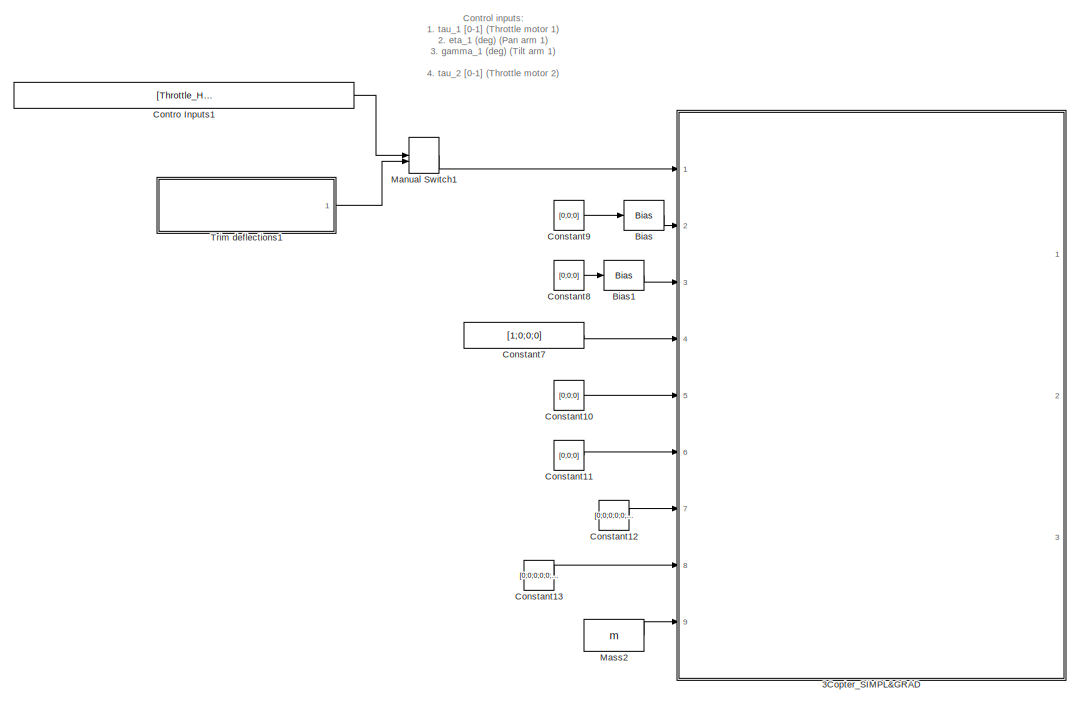
[diagram: root canvas - part 1/3, top left region]
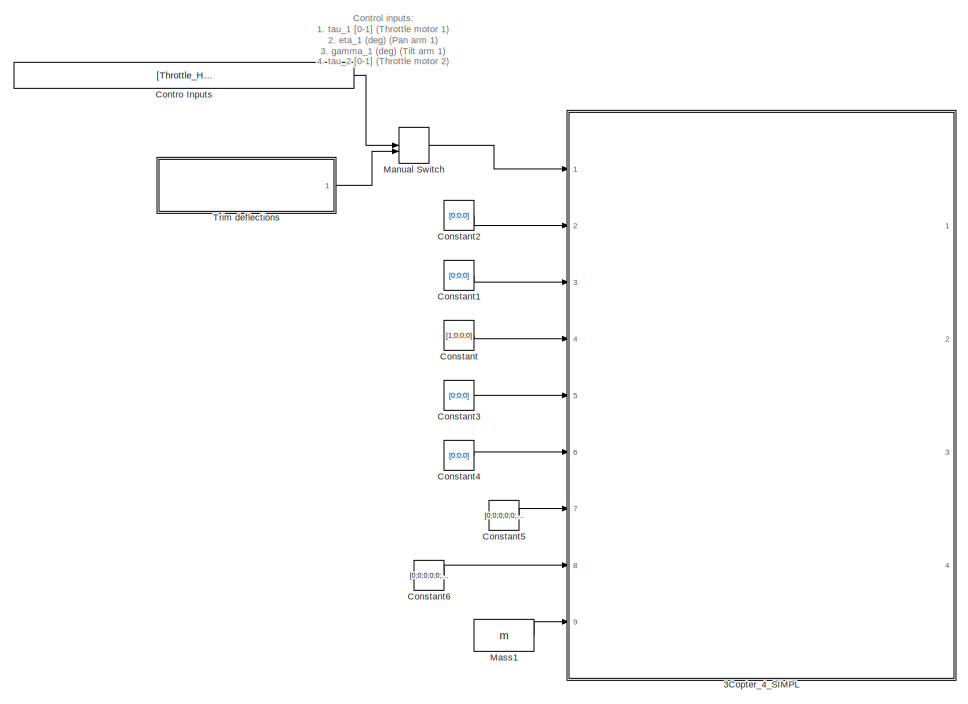
[diagram: root canvas - part 2/3, top right region]
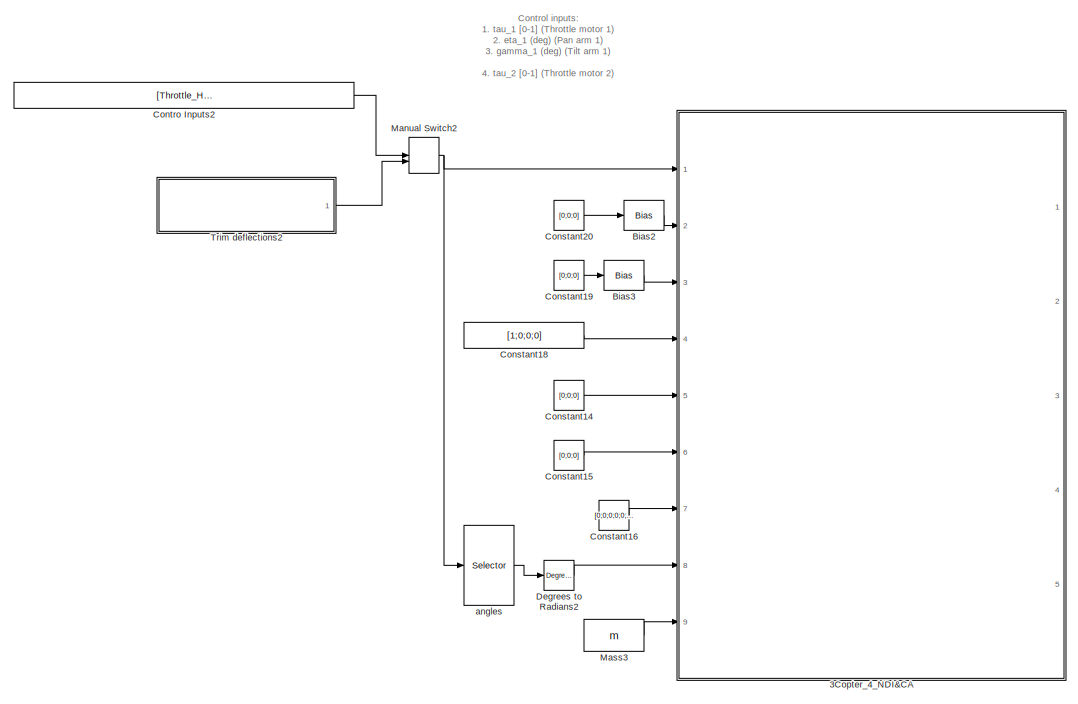
[diagram: root canvas - part 3/3, bottom right region]
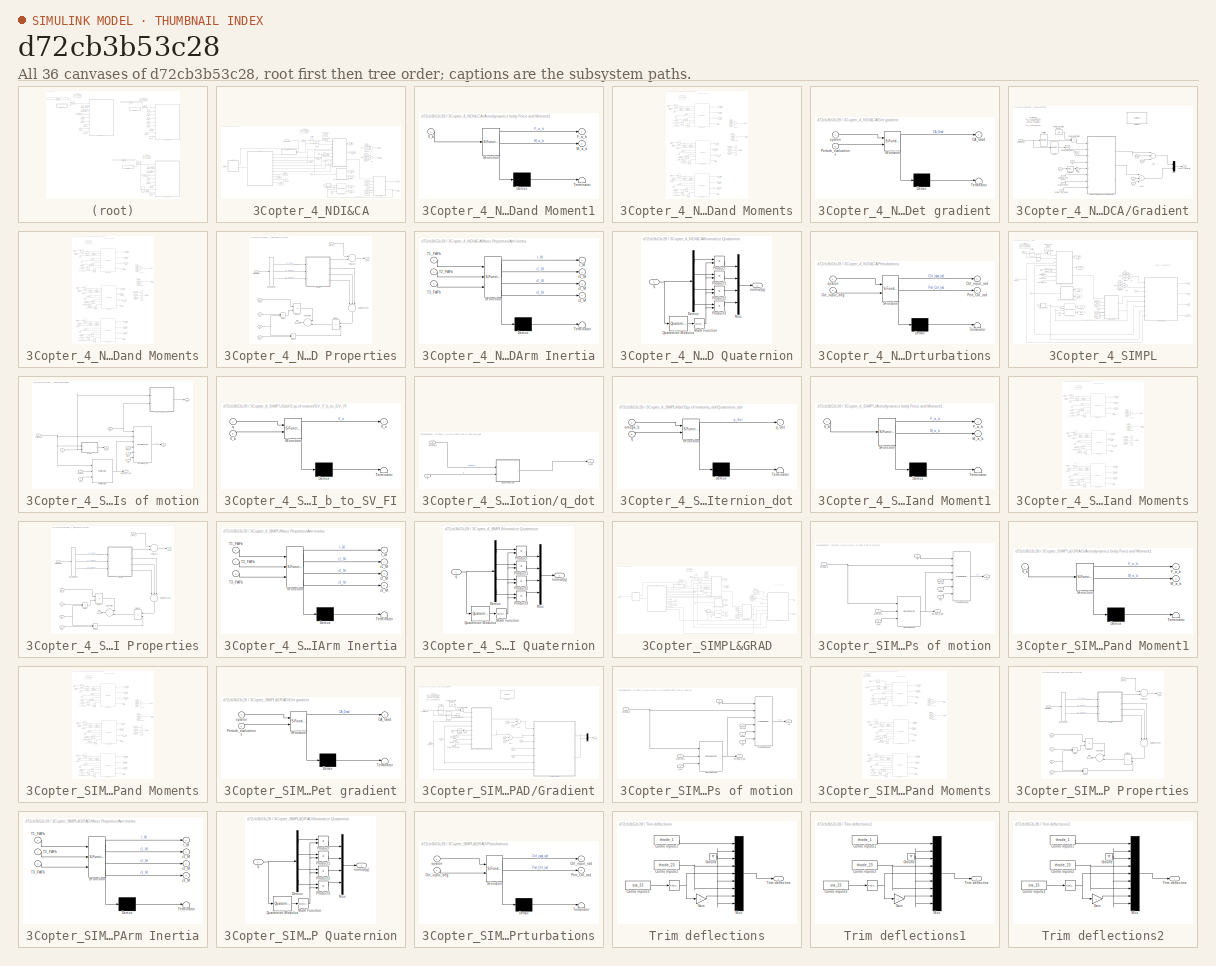
[diagram: thumbnail index - all 36 canvases of the model, root first then tree order]
MODEL slx_d72cb3b53c28
KIND model
BLOCK [SubSystem] 3Copter_4_NDI&CA
  FunctionWithSeparateData = off
  MaskHideContents = off
  MinAlgLoopOccurrences = off
  Opaque = off
  Ports = [9, 5]
  PropExecContextOutsideSubsystem = off
  RTWSystemCode = Auto
  RequestExecContextInheritance = off
  TreatAsAtomicUnit = on
BLOCK [Inport] 3Copter_4_NDI&CA/ m
  IconDisplay = Port number
  Port = 9
BLOCK [Sum] 3Copter_4_NDI&CA/Add
  InputSameDT = off
  Inputs = +++
  OutDataTypeStr = Inherit: Inherit via internal rule
  Ports = [3, 1]
  SaturateOnIntegerOverflow = off
BLOCK [Sum] 3Copter_4_NDI&CA/Add1
  InputSameDT = off
  Inputs = +++
  OutDataTypeStr = Inherit: Inherit via internal rule
  Ports = [3, 1]
  SaturateOnIntegerOverflow = off
BLOCK [SubSystem] 3Copter_4_NDI&CA/Aerodynamics body Force and Moment1
  ErrorFcn = Stateflow.Translate.translate
  FunctionWithSeparateData = off
  MaskHideContents = off
  MinAlgLoopOccurrences = off
  Opaque = off
  PermitHierarchicalResolution = ParametersOnly
  Ports = [1, 2]
  PropExecContextOutsideSubsystem = off
  RTWSystemCode = Auto
  RequestExecContextInheritance = off
  SFBlockType = MATLAB Function
  TreatAsAtomicUnit = on
BLOCK [Demux] 3Copter_4_NDI&CA/Aerodynamics body Force and Moment1/ Demux 
  Outputs = 1
  Ports = [1, 1]
BLOCK [S-Function] 3Copter_4_NDI&CA/Aerodynamics body Force and Moment1/ SFunction 
  EnableBusSupport = off
  FunctionName = sf_sfun
  Parameters = A_x,A_y,A_z,C_x,C_y,C_z,rho
  PortCounts = [1 3]
  Ports = [1, 3]
  Tag = Stateflow S-Function NDI_and_CA_Model 4
BLOCK [Terminator] 3Copter_4_NDI&CA/Aerodynamics body Force and Moment1/ Terminator 
BLOCK [Outport] 3Copter_4_NDI&CA/Aerodynamics body Force and Moment1/F_a_b
  IconDisplay = Port number
BLOCK [Outport] 3Copter_4_NDI&CA/Aerodynamics body Force and Moment1/M_a_b
  IconDisplay = Port number
  Port = 2
BLOCK [Inport] 3Copter_4_NDI&CA/Aerodynamics body Force and Moment1/V_b
  IconDisplay = Port number
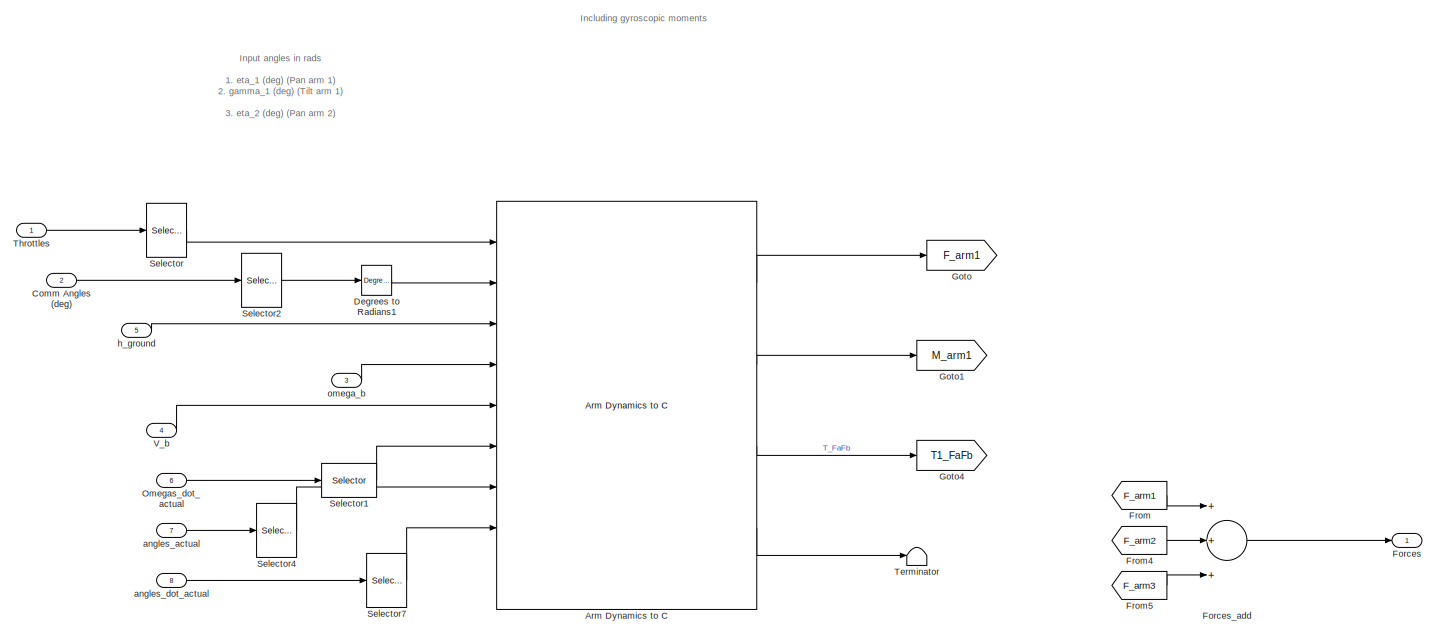
[diagram: 3Copter_4_NDI&CA/Arms Dynamics: Forces and Moments - part 1/3, full width, top band]
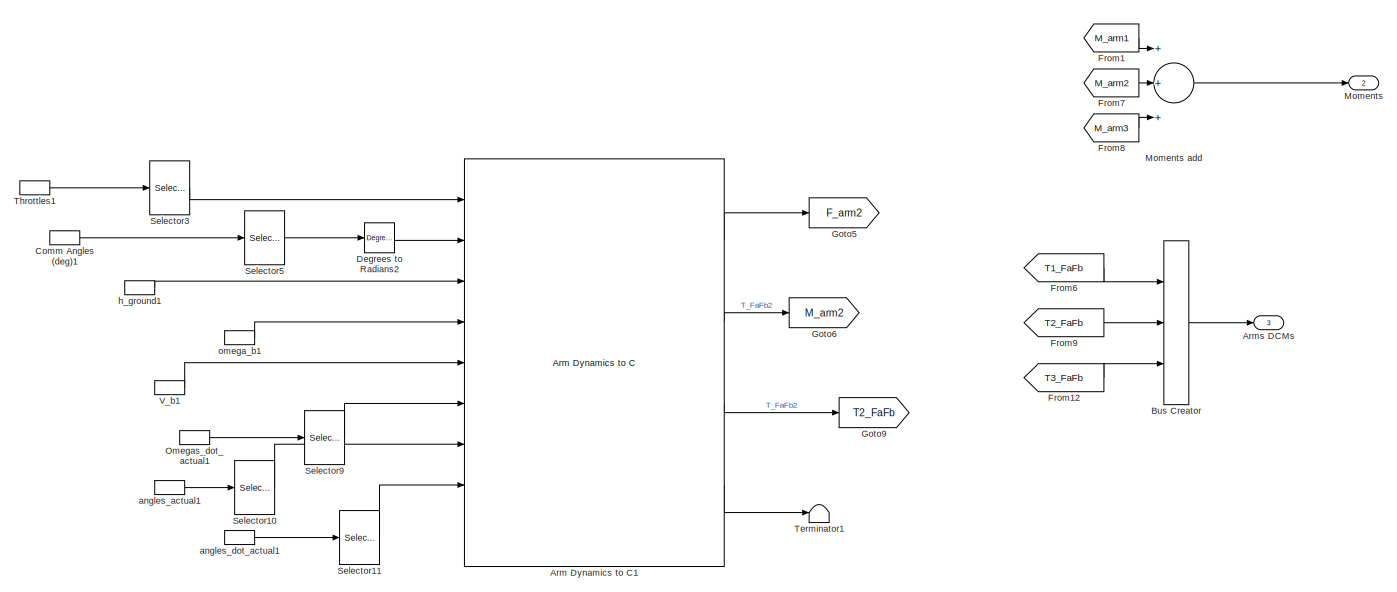
[diagram: 3Copter_4_NDI&CA/Arms Dynamics: Forces and Moments - part 2/3, full width, middle band]
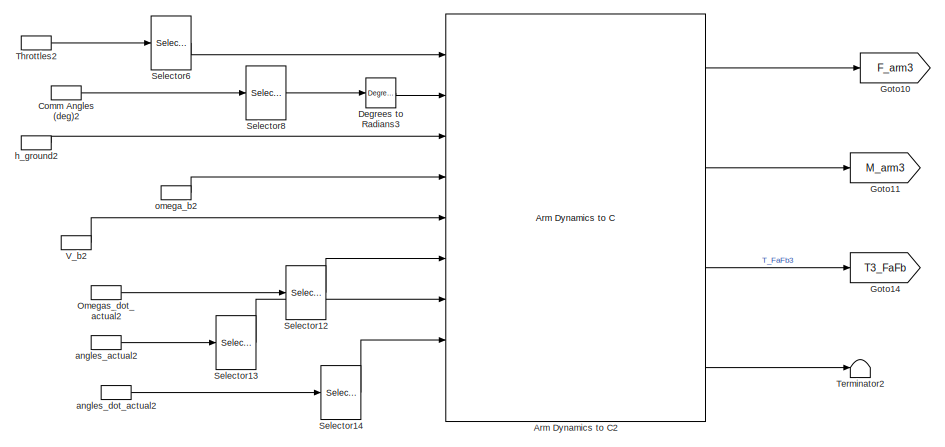
[diagram: 3Copter_4_NDI&CA/Arms Dynamics: Forces and Moments - part 3/3, bottom center region]
BLOCK [SubSystem] 3Copter_4_NDI&CA/Arms Dynamics: Forces and Moments
  FunctionWithSeparateData = off
  MaskHideContents = off
  MinAlgLoopOccurrences = off
  Opaque = off
  Ports = [8, 3]
  PropExecContextOutsideSubsystem = off
  RTWSystemCode = Auto
  RequestExecContextInheritance = off
  TreatAsAtomicUnit = on
BLOCK [Reference] 3Copter_4_NDI&CA/Arms Dynamics: Forces and Moments/Arm Dynamics  to C  REF=XXCopter_C/Arm Dynamics  to C
  Arm_axis = [l_arm;0;0]
  J_FA = J_FA
  J_T = J_T
  Ports = [9, 4]
  Rot_sign = Rotation_sign(1)
  SourceBlock = XXCopter_C/Arm Dynamics  to C
  SourceType = Arm dynamics, kinematics, forces and moments
  arm_hub_pos = l*[1;0;0]
  arm_num = 1
  eta_dir = [1;0;0]
  eta_inf_lim = deg2rad(-180)
  eta_sup_lim = deg2rad(180)
  gamma_dir = [0;1;0]
  gamma_inf_lim = deg2rad(-90)
  gamma_sup_lim = deg2rad(30)
  h = h
  omega_n = 35
  switch_val = direct_feedforward
  xi = 1.45
BLOCK [Reference] 3Copter_4_NDI&CA/Arms Dynamics: Forces and Moments/Arm Dynamics  to C1  REF=XXCopter_C/Arm Dynamics  to C
  Arm_axis = [0;l_arm;0]
  J_FA = J_FA
  J_T = J_T
  Ports = [9, 4]
  Rot_sign = Rotation_sign(2)
  SourceBlock = XXCopter_C/Arm Dynamics  to C
  SourceType = Arm dynamics, kinematics, forces and moments
  arm_hub_pos = l*[-1/2;sqrt(3)/2;0]
  arm_num = 2
  eta_dir = [0;1;0]
  eta_inf_lim = deg2rad(-180)
  eta_sup_lim = deg2rad(180)
  gamma_dir = [1;0;0]
  gamma_inf_lim = deg2rad(-30)
  gamma_sup_lim = deg2rad(90)
  h = h
  omega_n = 35
  switch_val = direct_feedforward
  xi = 1.45
BLOCK [Reference] 3Copter_4_NDI&CA/Arms Dynamics: Forces and Moments/Arm Dynamics  to C2  REF=XXCopter_C/Arm Dynamics  to C
  Arm_axis = [0;-l_arm;0]
  J_FA = J_FA
  J_T = J_T
  Ports = [9, 4]
  Rot_sign = Rotation_sign(3)
  SourceBlock = XXCopter_C/Arm Dynamics  to C
  SourceType = Arm dynamics, kinematics, forces and moments
  arm_hub_pos = l*[-1/2;-sqrt(3)/2;0]
  arm_num = 3
  eta_dir = [0;1;0]
  eta_inf_lim = deg2rad(-180)
  eta_sup_lim = deg2rad(180)
  gamma_dir = [1;0;0]
  gamma_inf_lim = deg2rad(-90)
  gamma_sup_lim = deg2rad(30)
  h = h
  omega_n = 35
  switch_val = direct_feedforward
  xi = 1.45
BLOCK [Outport] 3Copter_4_NDI&CA/Arms Dynamics: Forces and Moments/Arms DCMs
  IconDisplay = Port number
  Port = 3
BLOCK [BusCreator] 3Copter_4_NDI&CA/Arms Dynamics: Forces and Moments/Bus Creator
  DisplayOption = bar
  Inputs = 3
  Ports = [3, 1]
BLOCK [Inport] 3Copter_4_NDI&CA/Arms Dynamics: Forces and Moments/Comm Angles (deg)
  IconDisplay = Port number
  Port = 2
BLOCK [InportShadow] 3Copter_4_NDI&CA/Arms Dynamics: Forces and Moments/Comm Angles (deg)1
  IconDisplay = Port number
  Port = 2
BLOCK [InportShadow] 3Copter_4_NDI&CA/Arms Dynamics: Forces and Moments/Comm Angles (deg)2
  IconDisplay = Port number
  Port = 2
BLOCK [Reference] 3Copter_4_NDI&CA/Arms Dynamics: Forces and Moments/Degrees to Radians1  REF=simulink_extras/Transformations/Degrees to
Radians
  Ports = [1, 1]
  SourceBlock = simulink_extras/Transformations/Degrees to\nRadians
  SourceType = DegreesToRadians
BLOCK [Reference] 3Copter_4_NDI&CA/Arms Dynamics: Forces and Moments/Degrees to Radians2  REF=simulink_extras/Transformations/Degrees to
Radians
  Ports = [1, 1]
  SourceBlock = simulink_extras/Transformations/Degrees to\nRadians
  SourceType = DegreesToRadians
BLOCK [Reference] 3Copter_4_NDI&CA/Arms Dynamics: Forces and Moments/Degrees to Radians3  REF=simulink_extras/Transformations/Degrees to
Radians
  Ports = [1, 1]
  SourceBlock = simulink_extras/Transformations/Degrees to\nRadians
  SourceType = DegreesToRadians
BLOCK [Outport] 3Copter_4_NDI&CA/Arms Dynamics: Forces and Moments/Forces
  IconDisplay = Port number
BLOCK [Sum] 3Copter_4_NDI&CA/Arms Dynamics: Forces and Moments/Forces_add
  InputSameDT = off
  Inputs = +++
  OutDataTypeStr = Inherit: Inherit via internal rule
  Ports = [3, 1]
  SaturateOnIntegerOverflow = off
BLOCK [From] 3Copter_4_NDI&CA/Arms Dynamics: Forces and Moments/From
  GotoTag = F_arm1
BLOCK [From] 3Copter_4_NDI&CA/Arms Dynamics: Forces and Moments/From1
  GotoTag = M_arm1
BLOCK [From] 3Copter_4_NDI&CA/Arms Dynamics: Forces and Moments/From12
  GotoTag = T3_FaFb
BLOCK [From] 3Copter_4_NDI&CA/Arms Dynamics: Forces and Moments/From4
  GotoTag = F_arm2
BLOCK [From] 3Copter_4_NDI&CA/Arms Dynamics: Forces and Moments/From5
  GotoTag = F_arm3
BLOCK [From] 3Copter_4_NDI&CA/Arms Dynamics: Forces and Moments/From6
  GotoTag = T1_FaFb
BLOCK [From] 3Copter_4_NDI&CA/Arms Dynamics: Forces and Moments/From7
  GotoTag = M_arm2
BLOCK [From] 3Copter_4_NDI&CA/Arms Dynamics: Forces and Moments/From8
  GotoTag = M_arm3
BLOCK [From] 3Copter_4_NDI&CA/Arms Dynamics: Forces and Moments/From9
  GotoTag = T2_FaFb
BLOCK [Goto] 3Copter_4_NDI&CA/Arms Dynamics: Forces and Moments/Goto
  GotoTag = F_arm1
BLOCK [Goto] 3Copter_4_NDI&CA/Arms Dynamics: Forces and Moments/Goto1
  GotoTag = M_arm1
BLOCK [Goto] 3Copter_4_NDI&CA/Arms Dynamics: Forces and Moments/Goto10
  GotoTag = F_arm3
BLOCK [Goto] 3Copter_4_NDI&CA/Arms Dynamics: Forces and Moments/Goto11
  GotoTag = M_arm3
BLOCK [Goto] 3Copter_4_NDI&CA/Arms Dynamics: Forces and Moments/Goto14
  GotoTag = T3_FaFb
BLOCK [Goto] 3Copter_4_NDI&CA/Arms Dynamics: Forces and Moments/Goto4
  GotoTag = T1_FaFb
BLOCK [Goto] 3Copter_4_NDI&CA/Arms Dynamics: Forces and Moments/Goto5
  GotoTag = F_arm2
BLOCK [Goto] 3Copter_4_NDI&CA/Arms Dynamics: Forces and Moments/Goto6
  GotoTag = M_arm2
BLOCK [Goto] 3Copter_4_NDI&CA/Arms Dynamics: Forces and Moments/Goto9
  GotoTag = T2_FaFb
BLOCK [Outport] 3Copter_4_NDI&CA/Arms Dynamics: Forces and Moments/Moments
  IconDisplay = Port number
  Port = 2
BLOCK [Sum] 3Copter_4_NDI&CA/Arms Dynamics: Forces and Moments/Moments add
  InputSameDT = off
  Inputs = +++
  OutDataTypeStr = Inherit: Inherit via internal rule
  Ports = [3, 1]
  SaturateOnIntegerOverflow = off
BLOCK [Inport] 3Copter_4_NDI&CA/Arms Dynamics: Forces and Moments/Omegas_dot_actual
  IconDisplay = Port number
  Port = 6
BLOCK [InportShadow] 3Copter_4_NDI&CA/Arms Dynamics: Forces and Moments/Omegas_dot_actual1
  IconDisplay = Port number
  Port = 6
BLOCK [InportShadow] 3Copter_4_NDI&CA/Arms Dynamics: Forces and Moments/Omegas_dot_actual2
  IconDisplay = Port number
  Port = 6
BLOCK [Selector] 3Copter_4_NDI&CA/Arms Dynamics: Forces and Moments/Selector
  IndexMode = Zero-based
  Indices = 0
  InputPortWidth = 3
  Ports = [1, 1]
BLOCK [Selector] 3Copter_4_NDI&CA/Arms Dynamics: Forces and Moments/Selector1
  IndexMode = Zero-based
  Indices = 0
  InputPortWidth = 3
  Ports = [1, 1]
BLOCK [Selector] 3Copter_4_NDI&CA/Arms Dynamics: Forces and Moments/Selector10
  IndexMode = Zero-based
  Indices = [2,3]
  InputPortWidth = 6
  Ports = [1, 1]
BLOCK [Selector] 3Copter_4_NDI&CA/Arms Dynamics: Forces and Moments/Selector11
  IndexMode = Zero-based
  Indices = [2,3]
  InputPortWidth = 6
  Ports = [1, 1]
BLOCK [Selector] 3Copter_4_NDI&CA/Arms Dynamics: Forces and Moments/Selector12
  IndexMode = Zero-based
  Indices = 2
  InputPortWidth = 3
  Ports = [1, 1]
BLOCK [Selector] 3Copter_4_NDI&CA/Arms Dynamics: Forces and Moments/Selector13
  IndexMode = Zero-based
  Indices = [4,5]
  InputPortWidth = 6
  Ports = [1, 1]
BLOCK [Selector] 3Copter_4_NDI&CA/Arms Dynamics: Forces and Moments/Selector14
  IndexMode = Zero-based
  Indices = [4,5]
  InputPortWidth = 6
  Ports = [1, 1]
BLOCK [Selector] 3Copter_4_NDI&CA/Arms Dynamics: Forces and Moments/Selector2
  IndexMode = Zero-based
  Indices = [0,1]
  InputPortWidth = 6
  Ports = [1, 1]
BLOCK [Selector] 3Copter_4_NDI&CA/Arms Dynamics: Forces and Moments/Selector3
  IndexMode = Zero-based
  InputPortWidth = 3
  Ports = [1, 1]
BLOCK [Selector] 3Copter_4_NDI&CA/Arms Dynamics: Forces and Moments/Selector4
  IndexMode = Zero-based
  Indices = [0,1]
  InputPortWidth = 6
  Ports = [1, 1]
BLOCK [Selector] 3Copter_4_NDI&CA/Arms Dynamics: Forces and Moments/Selector5
  IndexMode = Zero-based
  Indices = [2,3]
  InputPortWidth = 6
  Ports = [1, 1]
BLOCK [Selector] 3Copter_4_NDI&CA/Arms Dynamics: Forces and Moments/Selector6
  IndexMode = Zero-based
  Indices = 2
  InputPortWidth = 3
  Ports = [1, 1]
BLOCK [Selector] 3Copter_4_NDI&CA/Arms Dynamics: Forces and Moments/Selector7
  IndexMode = Zero-based
  Indices = [0,1]
  InputPortWidth = 6
  Ports = [1, 1]
BLOCK [Selector] 3Copter_4_NDI&CA/Arms Dynamics: Forces and Moments/Selector8
  IndexMode = Zero-based
  Indices = [4,5]
  InputPortWidth = 6
  Ports = [1, 1]
BLOCK [Selector] 3Copter_4_NDI&CA/Arms Dynamics: Forces and Moments/Selector9
  IndexMode = Zero-based
  InputPortWidth = 3
  Ports = [1, 1]
BLOCK [Terminator] 3Copter_4_NDI&CA/Arms Dynamics: Forces and Moments/Terminator
BLOCK [Terminator] 3Copter_4_NDI&CA/Arms Dynamics: Forces and Moments/Terminator1
BLOCK [Terminator] 3Copter_4_NDI&CA/Arms Dynamics: Forces and Moments/Terminator2
BLOCK [Inport] 3Copter_4_NDI&CA/Arms Dynamics: Forces and Moments/Throttles
  IconDisplay = Port number
BLOCK [InportShadow] 3Copter_4_NDI&CA/Arms Dynamics: Forces and Moments/Throttles1
  IconDisplay = Port number
BLOCK [InportShadow] 3Copter_4_NDI&CA/Arms Dynamics: Forces and Moments/Throttles2
  IconDisplay = Port number
BLOCK [Inport] 3Copter_4_NDI&CA/Arms Dynamics: Forces and Moments/V_b
  IconDisplay = Port number
  Port = 4
BLOCK [InportShadow] 3Copter_4_NDI&CA/Arms Dynamics: Forces and Moments/V_b1
  IconDisplay = Port number
  Port = 4
BLOCK [InportShadow] 3Copter_4_NDI&CA/Arms Dynamics: Forces and Moments/V_b2
  IconDisplay = Port number
  Port = 4
BLOCK [Inport] 3Copter_4_NDI&CA/Arms Dynamics: Forces and Moments/angles_actual
  IconDisplay = Port number
  Port = 7
BLOCK [InportShadow] 3Copter_4_NDI&CA/Arms Dynamics: Forces and Moments/angles_actual1
  IconDisplay = Port number
  Port = 7
BLOCK [InportShadow] 3Copter_4_NDI&CA/Arms Dynamics: Forces and Moments/angles_actual2
  IconDisplay = Port number
  Port = 7
BLOCK [Inport] 3Copter_4_NDI&CA/Arms Dynamics: Forces and Moments/angles_dot_actual
  IconDisplay = Port number
  Port = 8
BLOCK [InportShadow] 3Copter_4_NDI&CA/Arms Dynamics: Forces and Moments/angles_dot_actual1
  IconDisplay = Port number
  Port = 8
BLOCK [InportShadow] 3Copter_4_NDI&CA/Arms Dynamics: Forces and Moments/angles_dot_actual2
  IconDisplay = Port number
  Port = 8
BLOCK [Inport] 3Copter_4_NDI&CA/Arms Dynamics: Forces and Moments/h_ground
  IconDisplay = Port number
  Port = 5
BLOCK [InportShadow] 3Copter_4_NDI&CA/Arms Dynamics: Forces and Moments/h_ground1
  IconDisplay = Port number
  Port = 5
BLOCK [InportShadow] 3Copter_4_NDI&CA/Arms Dynamics: Forces and Moments/h_ground2
  IconDisplay = Port number
  Port = 5
BLOCK [Inport] 3Copter_4_NDI&CA/Arms Dynamics: Forces and Moments/omega_b
  IconDisplay = Port number
  Port = 3
BLOCK [InportShadow] 3Copter_4_NDI&CA/Arms Dynamics: Forces and Moments/omega_b1
  IconDisplay = Port number
  Port = 3
BLOCK [InportShadow] 3Copter_4_NDI&CA/Arms Dynamics: Forces and Moments/omega_b2
  IconDisplay = Port number
  Port = 3
BLOCK [Outport] 3Copter_4_NDI&CA/CA_grad
  IconDisplay = Port number
  Port = 3
BLOCK [Constant] 3Copter_4_NDI&CA/CG
  Value = CG_0
BLOCK [Outport] 3Copter_4_NDI&CA/CG 
  IconDisplay = Port number
  Port = 5
BLOCK [Inport] 3Copter_4_NDI&CA/Control Inputs
  IconDisplay = Port number
BLOCK [Product] 3Copter_4_NDI&CA/Equivalent Throttle
  InputSameDT = off
  Inputs = **
  OutDataTypeStr = Inherit: Inherit via internal rule
  Ports = [2, 1]
  RndMeth = Floor
  SaturateOnIntegerOverflow = off
BLOCK [Outport] 3Copter_4_NDI&CA/Forces
  IconDisplay = Port number
BLOCK [From] 3Copter_4_NDI&CA/From11
  Commented = on
  GotoTag = M_air
BLOCK [From] 3Copter_4_NDI&CA/From12
  Commented = on
  GotoTag = M_g
BLOCK [From] 3Copter_4_NDI&CA/From2
  GotoTag = F_arm
BLOCK [From] 3Copter_4_NDI&CA/From3
  GotoTag = F_air
BLOCK [From] 3Copter_4_NDI&CA/From4
  GotoTag = F_g
BLOCK [From] 3Copter_4_NDI&CA/From5
  GotoTag = M_arm
BLOCK [From] 3Copter_4_NDI&CA/From6
  GotoTag = M_air
BLOCK [From] 3Copter_4_NDI&CA/From7
  GotoTag = M_g
BLOCK [From] 3Copter_4_NDI&CA/From8
  Commented = on
  GotoTag = F_air
BLOCK [From] 3Copter_4_NDI&CA/From9
  Commented = on
  GotoTag = F_g
BLOCK [Gain] 3Copter_4_NDI&CA/Gain
  Gain = -1
  OutDataTypeStr = Inherit: Inherit via internal rule
  ParamDataTypeStr = Inherit: Inherit via internal rule
  SaturateOnIntegerOverflow = off
BLOCK [SubSystem] 3Copter_4_NDI&CA/Get gradient
  Commented = on
  ErrorFcn = Stateflow.Translate.translate
  FunctionWithSeparateData = off
  MaskHideContents = off
  MinAlgLoopOccurrences = off
  Opaque = off
  PermitHierarchicalResolution = ParametersOnly
  Ports = [2, 1]
  PropExecContextOutsideSubsystem = off
  RTWSystemCode = Auto
  RequestExecContextInheritance = off
  SFBlockType = MATLAB Function
  TreatAsAtomicUnit = on
BLOCK [Demux] 3Copter_4_NDI&CA/Get gradient/ Demux 
  Outputs = 1
  Ports = [1, 1]
BLOCK [S-Function] 3Copter_4_NDI&CA/Get gradient/ SFunction 
  EnableBusSupport = off
  FunctionName = sf_sfun
  PortCounts = [2 2]
  Ports = [2, 2]
  Tag = Stateflow S-Function NDI_and_CA_Model 6
BLOCK [Terminator] 3Copter_4_NDI&CA/Get gradient/ Terminator 
BLOCK [Outport] 3Copter_4_NDI&CA/Get gradient/CA_Grad
  IconDisplay = Port number
BLOCK [Inport] 3Copter_4_NDI&CA/Get gradient/Perturb_evaluations
  IconDisplay = Port number
  Port = 2
BLOCK [Inport] 3Copter_4_NDI&CA/Get gradient/epsilon
  IconDisplay = Port number
BLOCK [Goto] 3Copter_4_NDI&CA/Goto2
  GotoTag = F_arm
BLOCK [Goto] 3Copter_4_NDI&CA/Goto3
  GotoTag = M_arm
BLOCK [Goto] 3Copter_4_NDI&CA/Goto4
  GotoTag = F_air
BLOCK [Goto] 3Copter_4_NDI&CA/Goto5
  GotoTag = M_air
BLOCK [Goto] 3Copter_4_NDI&CA/Goto6
  GotoTag = F_g
BLOCK [Goto] 3Copter_4_NDI&CA/Goto7
  GotoTag = M_g
BLOCK [SubSystem] 3Copter_4_NDI&CA/Gradient
  Commented = on
  FunctionWithSeparateData = off
  MaskHideContents = off
  MinAlgLoopOccurrences = off
  Opaque = off
  Ports = [11, 1]
  PropExecContextOutsideSubsystem = off
  RTWSystemCode = Auto
  RequestExecContextInheritance = off
  TreatAsAtomicUnit = on
BLOCK [Sum] 3Copter_4_NDI&CA/Gradient/Add
  InputSameDT = off
  Inputs = +++
  OutDataTypeStr = Inherit: Inherit via internal rule
  Ports = [3, 1]
  SaturateOnIntegerOverflow = off
BLOCK [Sum] 3Copter_4_NDI&CA/Gradient/Add1
  InputSameDT = off
  Inputs = +++
  OutDataTypeStr = Inherit: Inherit via internal rule
  Ports = [3, 1]
  SaturateOnIntegerOverflow = off
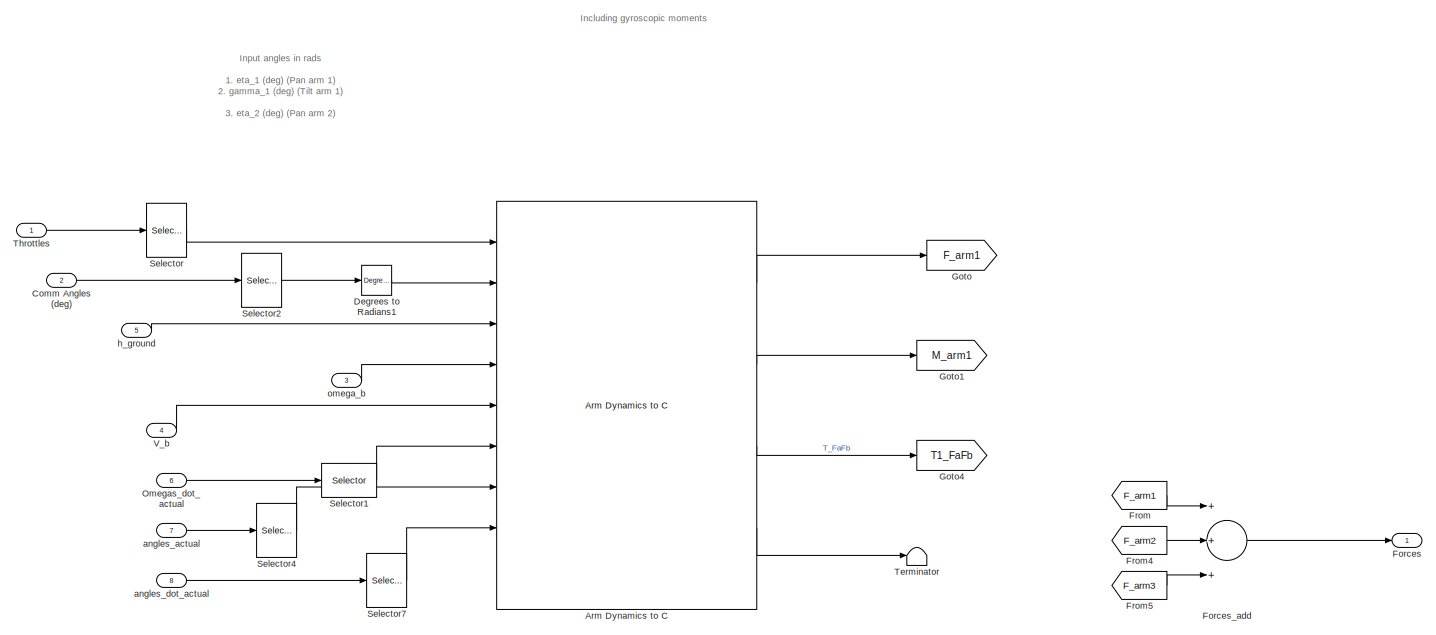
[diagram: 3Copter_4_NDI&CA/Gradient/Arms Dynamics: Forces and Moments - part 1/3, full width, top band]
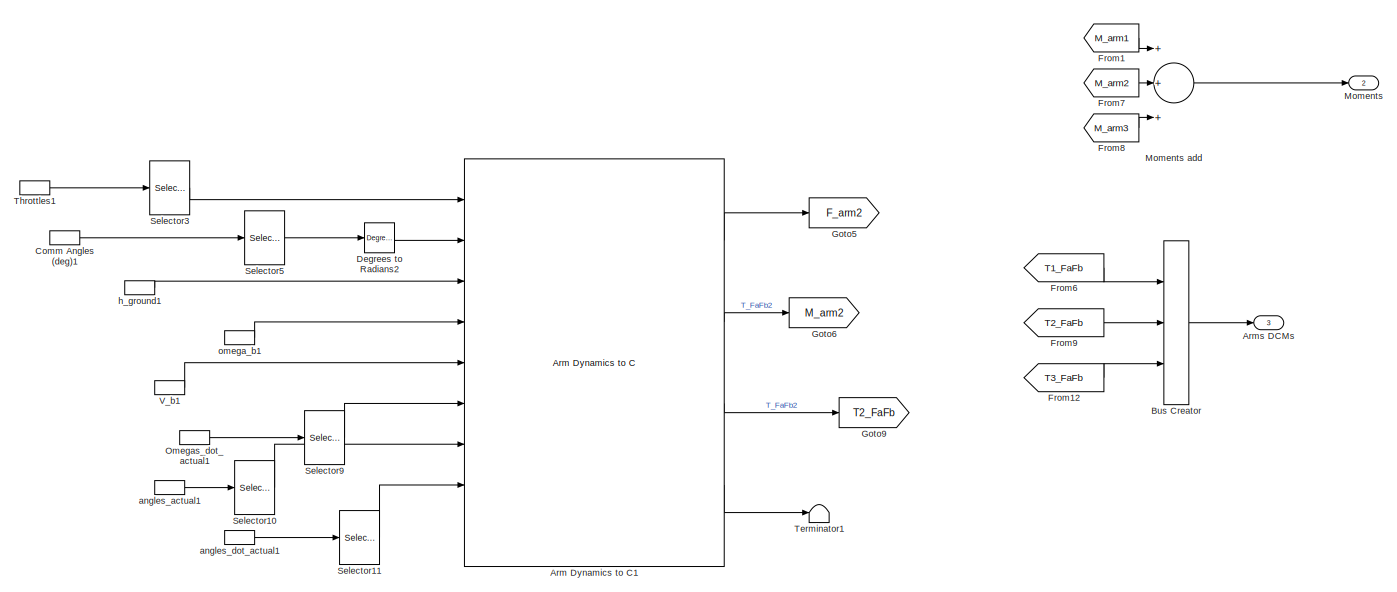
[diagram: 3Copter_4_NDI&CA/Gradient/Arms Dynamics: Forces and Moments - part 2/3, full width, middle band]
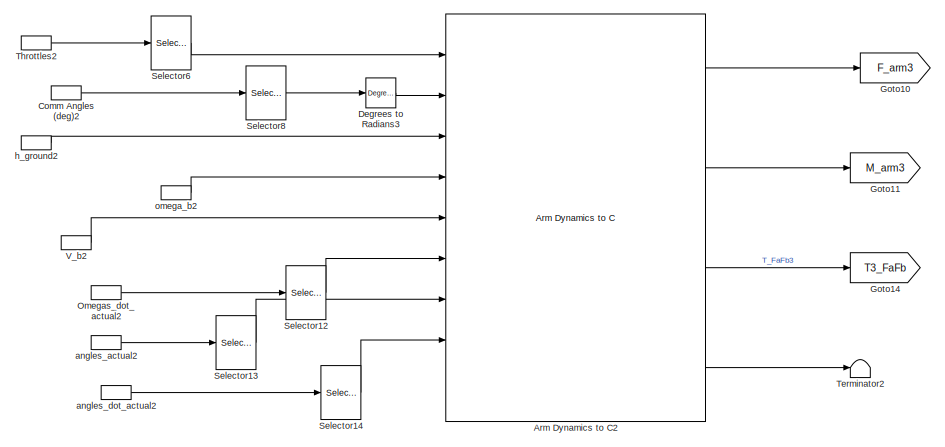
[diagram: 3Copter_4_NDI&CA/Gradient/Arms Dynamics: Forces and Moments - part 3/3, bottom center region]
BLOCK [SubSystem] 3Copter_4_NDI&CA/Gradient/Arms Dynamics: Forces and Moments
  FunctionWithSeparateData = off
  MaskHideContents = off
  MinAlgLoopOccurrences = off
  Opaque = off
  Ports = [8, 3]
  PropExecContextOutsideSubsystem = off
  RTWSystemCode = Auto
  RequestExecContextInheritance = off
  TreatAsAtomicUnit = on
BLOCK [Reference] 3Copter_4_NDI&CA/Gradient/Arms Dynamics: Forces and Moments/Arm Dynamics  to C  REF=XXCopter_C/Arm Dynamics  to C
  Arm_axis = [l_arm;0;0]
  J_FA = J_FA
  J_T = J_T
  Ports = [9, 4]
  Rot_sign = Rotation_sign(1)
  SourceBlock = XXCopter_C/Arm Dynamics  to C
  SourceType = Arm dynamics, kinematics, forces and moments
  arm_hub_pos = l*[1;0;0]
  arm_num = 1
  eta_dir = [1;0;0]
  eta_inf_lim = deg2rad(-180)
  eta_sup_lim = deg2rad(180)
  gamma_dir = [0;1;0]
  gamma_inf_lim = deg2rad(-90)
  gamma_sup_lim = deg2rad(30)
  h = h
  omega_n = 35
  switch_val = direct_feedforward
  xi = 1.45
BLOCK [Reference] 3Copter_4_NDI&CA/Gradient/Arms Dynamics: Forces and Moments/Arm Dynamics  to C1  REF=XXCopter_C/Arm Dynamics  to C
  Arm_axis = [0;l_arm;0]
  J_FA = J_FA
  J_T = J_T
  Ports = [9, 4]
  Rot_sign = Rotation_sign(2)
  SourceBlock = XXCopter_C/Arm Dynamics  to C
  SourceType = Arm dynamics, kinematics, forces and moments
  arm_hub_pos = l*[-1/2;sqrt(3)/2;0]
  arm_num = 2
  eta_dir = [0;1;0]
  eta_inf_lim = deg2rad(-180)
  eta_sup_lim = deg2rad(180)
  gamma_dir = [1;0;0]
  gamma_inf_lim = deg2rad(-30)
  gamma_sup_lim = deg2rad(90)
  h = h
  omega_n = 35
  switch_val = direct_feedforward
  xi = 1.45
BLOCK [Reference] 3Copter_4_NDI&CA/Gradient/Arms Dynamics: Forces and Moments/Arm Dynamics  to C2  REF=XXCopter_C/Arm Dynamics  to C
  Arm_axis = [0;-l_arm;0]
  J_FA = J_FA
  J_T = J_T
  Ports = [9, 4]
  Rot_sign = Rotation_sign(3)
  SourceBlock = XXCopter_C/Arm Dynamics  to C
  SourceType = Arm dynamics, kinematics, forces and moments
  arm_hub_pos = l*[-1/2;-sqrt(3)/2;0]
  arm_num = 3
  eta_dir = [0;1;0]
  eta_inf_lim = deg2rad(-180)
  eta_sup_lim = deg2rad(180)
  gamma_dir = [1;0;0]
  gamma_inf_lim = deg2rad(-90)
  gamma_sup_lim = deg2rad(30)
  h = h
  omega_n = 35
  switch_val = direct_feedforward
  xi = 1.45
BLOCK [Outport] 3Copter_4_NDI&CA/Gradient/Arms Dynamics: Forces and Moments/Arms DCMs
  IconDisplay = Port number
  Port = 3
BLOCK [BusCreator] 3Copter_4_NDI&CA/Gradient/Arms Dynamics: Forces and Moments/Bus Creator
  DisplayOption = bar
  Inputs = 3
  Ports = [3, 1]
BLOCK [Inport] 3Copter_4_NDI&CA/Gradient/Arms Dynamics: Forces and Moments/Comm Angles (deg)
  IconDisplay = Port number
  Port = 2
BLOCK [InportShadow] 3Copter_4_NDI&CA/Gradient/Arms Dynamics: Forces and Moments/Comm Angles (deg)1
  IconDisplay = Port number
  Port = 2
BLOCK [InportShadow] 3Copter_4_NDI&CA/Gradient/Arms Dynamics: Forces and Moments/Comm Angles (deg)2
  IconDisplay = Port number
  Port = 2
BLOCK [Reference] 3Copter_4_NDI&CA/Gradient/Arms Dynamics: Forces and Moments/Degrees to Radians1  REF=simulink_extras/Transformations/Degrees to
Radians
  Ports = [1, 1]
  SourceBlock = simulink_extras/Transformations/Degrees to\nRadians
  SourceType = DegreesToRadians
BLOCK [Reference] 3Copter_4_NDI&CA/Gradient/Arms Dynamics: Forces and Moments/Degrees to Radians2  REF=simulink_extras/Transformations/Degrees to
Radians
  Ports = [1, 1]
  SourceBlock = simulink_extras/Transformations/Degrees to\nRadians
  SourceType = DegreesToRadians
BLOCK [Reference] 3Copter_4_NDI&CA/Gradient/Arms Dynamics: Forces and Moments/Degrees to Radians3  REF=simulink_extras/Transformations/Degrees to
Radians
  Ports = [1, 1]
  SourceBlock = simulink_extras/Transformations/Degrees to\nRadians
  SourceType = DegreesToRadians
BLOCK [Outport] 3Copter_4_NDI&CA/Gradient/Arms Dynamics: Forces and Moments/Forces
  IconDisplay = Port number
BLOCK [Sum] 3Copter_4_NDI&CA/Gradient/Arms Dynamics: Forces and Moments/Forces_add
  InputSameDT = off
  Inputs = +++
  OutDataTypeStr = Inherit: Inherit via internal rule
  Ports = [3, 1]
  SaturateOnIntegerOverflow = off
BLOCK [From] 3Copter_4_NDI&CA/Gradient/Arms Dynamics: Forces and Moments/From
  GotoTag = F_arm1
BLOCK [From] 3Copter_4_NDI&CA/Gradient/Arms Dynamics: Forces and Moments/From1
  GotoTag = M_arm1
BLOCK [From] 3Copter_4_NDI&CA/Gradient/Arms Dynamics: Forces and Moments/From12
  GotoTag = T3_FaFb
BLOCK [From] 3Copter_4_NDI&CA/Gradient/Arms Dynamics: Forces and Moments/From4
  GotoTag = F_arm2
BLOCK [From] 3Copter_4_NDI&CA/Gradient/Arms Dynamics: Forces and Moments/From5
  GotoTag = F_arm3
BLOCK [From] 3Copter_4_NDI&CA/Gradient/Arms Dynamics: Forces and Moments/From6
  GotoTag = T1_FaFb
BLOCK [From] 3Copter_4_NDI&CA/Gradient/Arms Dynamics: Forces and Moments/From7
  GotoTag = M_arm2
BLOCK [From] 3Copter_4_NDI&CA/Gradient/Arms Dynamics: Forces and Moments/From8
  GotoTag = M_arm3
BLOCK [From] 3Copter_4_NDI&CA/Gradient/Arms Dynamics: Forces and Moments/From9
  GotoTag = T2_FaFb
BLOCK [Goto] 3Copter_4_NDI&CA/Gradient/Arms Dynamics: Forces and Moments/Goto
  GotoTag = F_arm1
BLOCK [Goto] 3Copter_4_NDI&CA/Gradient/Arms Dynamics: Forces and Moments/Goto1
  GotoTag = M_arm1
BLOCK [Goto] 3Copter_4_NDI&CA/Gradient/Arms Dynamics: Forces and Moments/Goto10
  GotoTag = F_arm3
BLOCK [Goto] 3Copter_4_NDI&CA/Gradient/Arms Dynamics: Forces and Moments/Goto11
  GotoTag = M_arm3
BLOCK [Goto] 3Copter_4_NDI&CA/Gradient/Arms Dynamics: Forces and Moments/Goto14
  GotoTag = T3_FaFb
BLOCK [Goto] 3Copter_4_NDI&CA/Gradient/Arms Dynamics: Forces and Moments/Goto4
  GotoTag = T1_FaFb
BLOCK [Goto] 3Copter_4_NDI&CA/Gradient/Arms Dynamics: Forces and Moments/Goto5
  GotoTag = F_arm2
BLOCK [Goto] 3Copter_4_NDI&CA/Gradient/Arms Dynamics: Forces and Moments/Goto6
  GotoTag = M_arm2
BLOCK [Goto] 3Copter_4_NDI&CA/Gradient/Arms Dynamics: Forces and Moments/Goto9
  GotoTag = T2_FaFb
BLOCK [Outport] 3Copter_4_NDI&CA/Gradient/Arms Dynamics: Forces and Moments/Moments
  IconDisplay = Port number
  Port = 2
BLOCK [Sum] 3Copter_4_NDI&CA/Gradient/Arms Dynamics: Forces and Moments/Moments add
  InputSameDT = off
  Inputs = +++
  OutDataTypeStr = Inherit: Inherit via internal rule
  Ports = [3, 1]
  SaturateOnIntegerOverflow = off
BLOCK [Inport] 3Copter_4_NDI&CA/Gradient/Arms Dynamics: Forces and Moments/Omegas_dot_actual
  IconDisplay = Port number
  Port = 6
BLOCK [InportShadow] 3Copter_4_NDI&CA/Gradient/Arms Dynamics: Forces and Moments/Omegas_dot_actual1
  IconDisplay = Port number
  Port = 6
BLOCK [InportShadow] 3Copter_4_NDI&CA/Gradient/Arms Dynamics: Forces and Moments/Omegas_dot_actual2
  IconDisplay = Port number
  Port = 6
BLOCK [Selector] 3Copter_4_NDI&CA/Gradient/Arms Dynamics: Forces and Moments/Selector
  IndexMode = Zero-based
  Indices = 0
  InputPortWidth = 3
  Ports = [1, 1]
BLOCK [Selector] 3Copter_4_NDI&CA/Gradient/Arms Dynamics: Forces and Moments/Selector1
  IndexMode = Zero-based
  Indices = 0
  InputPortWidth = 3
  Ports = [1, 1]
BLOCK [Selector] 3Copter_4_NDI&CA/Gradient/Arms Dynamics: Forces and Moments/Selector10
  IndexMode = Zero-based
  Indices = [2,3]
  InputPortWidth = 6
  Ports = [1, 1]
BLOCK [Selector] 3Copter_4_NDI&CA/Gradient/Arms Dynamics: Forces and Moments/Selector11
  IndexMode = Zero-based
  Indices = [2,3]
  InputPortWidth = 6
  Ports = [1, 1]
BLOCK [Selector] 3Copter_4_NDI&CA/Gradient/Arms Dynamics: Forces and Moments/Selector12
  IndexMode = Zero-based
  Indices = 2
  InputPortWidth = 3
  Ports = [1, 1]
BLOCK [Selector] 3Copter_4_NDI&CA/Gradient/Arms Dynamics: Forces and Moments/Selector13
  IndexMode = Zero-based
  Indices = [4,5]
  InputPortWidth = 6
  Ports = [1, 1]
BLOCK [Selector] 3Copter_4_NDI&CA/Gradient/Arms Dynamics: Forces and Moments/Selector14
  IndexMode = Zero-based
  Indices = [4,5]
  InputPortWidth = 6
  Ports = [1, 1]
BLOCK [Selector] 3Copter_4_NDI&CA/Gradient/Arms Dynamics: Forces and Moments/Selector2
  IndexMode = Zero-based
  Indices = [0,1]
  InputPortWidth = 6
  Ports = [1, 1]
BLOCK [Selector] 3Copter_4_NDI&CA/Gradient/Arms Dynamics: Forces and Moments/Selector3
  IndexMode = Zero-based
  InputPortWidth = 3
  Ports = [1, 1]
BLOCK [Selector] 3Copter_4_NDI&CA/Gradient/Arms Dynamics: Forces and Moments/Selector4
  IndexMode = Zero-based
  Indices = [0,1]
  InputPortWidth = 6
  Ports = [1, 1]
BLOCK [Selector] 3Copter_4_NDI&CA/Gradient/Arms Dynamics: Forces and Moments/Selector5
  IndexMode = Zero-based
  Indices = [2,3]
  InputPortWidth = 6
  Ports = [1, 1]
BLOCK [Selector] 3Copter_4_NDI&CA/Gradient/Arms Dynamics: Forces and Moments/Selector6
  IndexMode = Zero-based
  Indices = 2
  InputPortWidth = 3
  Ports = [1, 1]
BLOCK [Selector] 3Copter_4_NDI&CA/Gradient/Arms Dynamics: Forces and Moments/Selector7
  IndexMode = Zero-based
  Indices = [0,1]
  InputPortWidth = 6
  Ports = [1, 1]
BLOCK [Selector] 3Copter_4_NDI&CA/Gradient/Arms Dynamics: Forces and Moments/Selector8
  IndexMode = Zero-based
  Indices = [4,5]
  InputPortWidth = 6
  Ports = [1, 1]
BLOCK [Selector] 3Copter_4_NDI&CA/Gradient/Arms Dynamics: Forces and Moments/Selector9
  IndexMode = Zero-based
  InputPortWidth = 3
  Ports = [1, 1]
BLOCK [Terminator] 3Copter_4_NDI&CA/Gradient/Arms Dynamics: Forces and Moments/Terminator
BLOCK [Terminator] 3Copter_4_NDI&CA/Gradient/Arms Dynamics: Forces and Moments/Terminator1
BLOCK [Terminator] 3Copter_4_NDI&CA/Gradient/Arms Dynamics: Forces and Moments/Terminator2
BLOCK [Inport] 3Copter_4_NDI&CA/Gradient/Arms Dynamics: Forces and Moments/Throttles
  IconDisplay = Port number
BLOCK [InportShadow] 3Copter_4_NDI&CA/Gradient/Arms Dynamics: Forces and Moments/Throttles1
  IconDisplay = Port number
BLOCK [InportShadow] 3Copter_4_NDI&CA/Gradient/Arms Dynamics: Forces and Moments/Throttles2
  IconDisplay = Port number
BLOCK [Inport] 3Copter_4_NDI&CA/Gradient/Arms Dynamics: Forces and Moments/V_b
  IconDisplay = Port number
  Port = 4
BLOCK [InportShadow] 3Copter_4_NDI&CA/Gradient/Arms Dynamics: Forces and Moments/V_b1
  IconDisplay = Port number
  Port = 4
BLOCK [InportShadow] 3Copter_4_NDI&CA/Gradient/Arms Dynamics: Forces and Moments/V_b2
  IconDisplay = Port number
  Port = 4
BLOCK [Inport] 3Copter_4_NDI&CA/Gradient/Arms Dynamics: Forces and Moments/angles_actual
  IconDisplay = Port number
  Port = 7
BLOCK [InportShadow] 3Copter_4_NDI&CA/Gradient/Arms Dynamics: Forces and Moments/angles_actual1
  IconDisplay = Port number
  Port = 7
BLOCK [InportShadow] 3Copter_4_NDI&CA/Gradient/Arms Dynamics: Forces and Moments/angles_actual2
  IconDisplay = Port number
  Port = 7
BLOCK [Inport] 3Copter_4_NDI&CA/Gradient/Arms Dynamics: Forces and Moments/angles_dot_actual
  IconDisplay = Port number
  Port = 8
BLOCK [InportShadow] 3Copter_4_NDI&CA/Gradient/Arms Dynamics: Forces and Moments/angles_dot_actual1
  IconDisplay = Port number
  Port = 8
BLOCK [InportShadow] 3Copter_4_NDI&CA/Gradient/Arms Dynamics: Forces and Moments/angles_dot_actual2
  IconDisplay = Port number
  Port = 8
BLOCK [Inport] 3Copter_4_NDI&CA/Gradient/Arms Dynamics: Forces and Moments/h_ground
  IconDisplay = Port number
  Port = 5
BLOCK [InportShadow] 3Copter_4_NDI&CA/Gradient/Arms Dynamics: Forces and Moments/h_ground1
  IconDisplay = Port number
  Port = 5
BLOCK [InportShadow] 3Copter_4_NDI&CA/Gradient/Arms Dynamics: Forces and Moments/h_ground2
  IconDisplay = Port number
  Port = 5
BLOCK [Inport] 3Copter_4_NDI&CA/Gradient/Arms Dynamics: Forces and Moments/omega_b
  IconDisplay = Port number
  Port = 3
BLOCK [InportShadow] 3Copter_4_NDI&CA/Gradient/Arms Dynamics: Forces and Moments/omega_b1
  IconDisplay = Port number
  Port = 3
BLOCK [InportShadow] 3Copter_4_NDI&CA/Gradient/Arms Dynamics: Forces and Moments/omega_b2
  IconDisplay = Port number
  Port = 3
BLOCK [Inport] 3Copter_4_NDI&CA/Gradient/Control Inputs 
  IconDisplay = Port number
  Partition = on
  PartitionDimension = 1
  PartitionWidth = 9
BLOCK [Product] 3Copter_4_NDI&CA/Gradient/Equivalent Throttle
  InputSameDT = off
  Inputs = **
  OutDataTypeStr = Inherit: Inherit via internal rule
  Ports = [2, 1]
  RndMeth = Floor
  SaturateOnIntegerOverflow = off
BLOCK [Inport] 3Copter_4_NDI&CA/Gradient/F_air
  IconDisplay = Port number
  Partition = off
  Port = 8
BLOCK [Inport] 3Copter_4_NDI&CA/Gradient/F_g
  IconDisplay = Port number
  Partition = off
  Port = 10
BLOCK [ForEach] 3Copter_4_NDI&CA/Gradient/For Each
  DisableCoverage = on
  IndexMode = One-based
  Ports = []
BLOCK [Outport] 3Copter_4_NDI&CA/Gradient/Forces_Moments
  ConcatenationDimension = 2
  IconDisplay = Port number
BLOCK [Gain] 3Copter_4_NDI&CA/Gradient/Gain
  Gain = -1
  OutDataTypeStr = Inherit: Inherit via internal rule
  ParamDataTypeStr = Inherit: Inherit via internal rule
  SaturateOnIntegerOverflow = off
BLOCK [Inport] 3Copter_4_NDI&CA/Gradient/M_air
  IconDisplay = Port number
  Partition = off
  Port = 9
BLOCK [Inport] 3Copter_4_NDI&CA/Gradient/M_g
  IconDisplay = Port number
  Partition = off
  Port = 11
BLOCK [Mux] 3Copter_4_NDI&CA/Gradient/Mux
  DisplayOption = bar
  Inputs = [3,3]
  Ports = [2, 1]
BLOCK [Inport] 3Copter_4_NDI&CA/Gradient/Omegas_dot_actual
  IconDisplay = Port number
  Partition = off
  Port = 5
BLOCK [Reference] 3Copter_4_NDI&CA/Gradient/Radians to Degrees  REF=simulink_extras/Transformations/Radians
to Degrees
  Ports = [1, 1]
  SourceBlock = simulink_extras/Transformations/Radians\nto Degrees
  SourceType = RadiansToDegrees
BLOCK [Constant] 3Copter_4_NDI&CA/Gradient/Reference batrery level (V)
  Value = 16
BLOCK [Selector] 3Copter_4_NDI&CA/Gradient/Selector
  IndexMode = Zero-based
  Indices = 2
  InputPortWidth = 3
  Ports = [1, 1]
BLOCK [Selector] 3Copter_4_NDI&CA/Gradient/Throttles
  IndexMode = Zero-based
  Indices = [0,3,6]
  InputPortWidth = 9
  Ports = [1, 1]
BLOCK [Inport] 3Copter_4_NDI&CA/Gradient/Vb
  IconDisplay = Port number
  Partition = off
  Port = 3
BLOCK [Inport] 3Copter_4_NDI&CA/Gradient/X_e
  IconDisplay = Port number
  Partition = off
  Port = 2
BLOCK [Selector] 3Copter_4_NDI&CA/Gradient/angles 
  IndexMode = Zero-based
  Indices = [1,2,4,5,7,8]
  InputPortWidth = 9
  Ports = [1, 1]
BLOCK [Inport] 3Copter_4_NDI&CA/Gradient/angles_actual
  IconDisplay = Port number
  Partition = off
  Port = 6
BLOCK [Inport] 3Copter_4_NDI&CA/Gradient/angles_dot_actual
  IconDisplay = Port number
  Partition = off
  Port = 7
BLOCK [Inport] 3Copter_4_NDI&CA/Gradient/omega_b
  IconDisplay = Port number
  Partition = off
  Port = 4
BLOCK [Reference] 3Copter_4_NDI&CA/Grav_force&Mom  REF=XXCopter_C/Grav_force&Mom
  Ports = [4, 2]
  SourceBlock = XXCopter_C/Grav_force&Mom
  SourceType = SubSystem
BLOCK [Outport] 3Copter_4_NDI&CA/I_BAC
  IconDisplay = Port number
  Port = 4
BLOCK [Constant] 3Copter_4_NDI&CA/I_BAC_0
  Value = I_BAC_0
BLOCK [SubSystem] 3Copter_4_NDI&CA/Mass Properties
  FunctionWithSeparateData = off
  MaskHideContents = off
  MinAlgLoopOccurrences = off
  Opaque = off
  Ports = [6, 2]
  PropExecContextOutsideSubsystem = off
  RTWSystemCode = Auto
  RequestExecContextInheritance = off
  TreatAsAtomicUnit = on
BLOCK [SubSystem] 3Copter_4_NDI&CA/Mass Properties/Arm Inertia
  ErrorFcn = Stateflow.Translate.translate
  FunctionWithSeparateData = off
  MaskHideContents = off
  MinAlgLoopOccurrences = off
  Opaque = off
  PermitHierarchicalResolution = ParametersOnly
  Ports = [3, 4]
  PropExecContextOutsideSubsystem = off
  RTWSystemCode = Auto
  RequestExecContextInheritance = off
  SFBlockType = MATLAB Function
  TreatAsAtomicUnit = on
BLOCK [Demux] 3Copter_4_NDI&CA/Mass Properties/Arm Inertia/ Demux 
  Outputs = 1
  Ports = [1, 1]
BLOCK [S-Function] 3Copter_4_NDI&CA/Mass Properties/Arm Inertia/ SFunction 
  EnableBusSupport = off
  FunctionName = sf_sfun
  Parameters = h_M,l,m_M
  PortCounts = [3 5]
  Ports = [3, 5]
  Tag = Stateflow S-Function NDI_and_CA_Model 7
BLOCK [Terminator] 3Copter_4_NDI&CA/Mass Properties/Arm Inertia/ Terminator 
BLOCK [Outport] 3Copter_4_NDI&CA/Mass Properties/Arm Inertia/I_M
  IconDisplay = Port number
BLOCK [Inport] 3Copter_4_NDI&CA/Mass Properties/Arm Inertia/T1_FAFb
  IconDisplay = Port number
BLOCK [Inport] 3Copter_4_NDI&CA/Mass Properties/Arm Inertia/T2_FAFb
  IconDisplay = Port number
  Port = 2
BLOCK [Inport] 3Copter_4_NDI&CA/Mass Properties/Arm Inertia/T3_FAFb
  IconDisplay = Port number
  Port = 3
BLOCK [Outport] 3Copter_4_NDI&CA/Mass Properties/Arm Inertia/r1_M
  IconDisplay = Port number
  Port = 2
BLOCK [Outport] 3Copter_4_NDI&CA/Mass Properties/Arm Inertia/r2_M
  IconDisplay = Port number
  Port = 3
BLOCK [Outport] 3Copter_4_NDI&CA/Mass Properties/Arm Inertia/r3_M
  IconDisplay = Port number
  Port = 4
BLOCK [Inport] 3Copter_4_NDI&CA/Mass Properties/Arms DCMs
  IconDisplay = Port number
BLOCK [BusSelector] 3Copter_4_NDI&CA/Mass Properties/Bus Selector
  OutputSignals = T_FaFb,T_FaFb2,T_FaFb3
  Ports = [1, 3]
BLOCK [Outport] 3Copter_4_NDI&CA/Mass Properties/CG
  IconDisplay = Port number
  Port = 2
BLOCK [Sum] 3Copter_4_NDI&CA/Mass Properties/CG position
  InputSameDT = off
  OutDataTypeStr = Inherit: Inherit via internal rule
  Ports = [2, 1]
  SaturateOnIntegerOverflow = off
BLOCK [Inport] 3Copter_4_NDI&CA/Mass Properties/CG_0
  IconDisplay = Port number
  Port = 2
BLOCK [Product] 3Copter_4_NDI&CA/Mass Properties/Divide
  InputSameDT = off
  Inputs = */
  OutDataTypeStr = Inherit: Inherit via internal rule
  Ports = [2, 1]
  RndMeth = Floor
  SaturateOnIntegerOverflow = off
BLOCK [Product] 3Copter_4_NDI&CA/Mass Properties/Divide1
  InputSameDT = off
  Inputs = **
  OutDataTypeStr = Inherit: Inherit via internal rule
  Ports = [2, 1]
  RndMeth = Floor
  SaturateOnIntegerOverflow = off
BLOCK [Product] 3Copter_4_NDI&CA/Mass Properties/Divide2
  InputSameDT = off
  Inputs = /*
  OutDataTypeStr = Inherit: Inherit via internal rule
  Ports = [2, 1]
  RndMeth = Floor
  SaturateOnIntegerOverflow = off
BLOCK [Product] 3Copter_4_NDI&CA/Mass Properties/Divide3
  InputSameDT = off
  Inputs = **
  OutDataTypeStr = Inherit: Inherit via internal rule
  Ports = [2, 1]
  RndMeth = Floor
  SaturateOnIntegerOverflow = off
BLOCK [Outport] 3Copter_4_NDI&CA/Mass Properties/I_BAC
  IconDisplay = Port number
BLOCK [Inport] 3Copter_4_NDI&CA/Mass Properties/I_BAC_0
  IconDisplay = Port number
  Port = 6
BLOCK [Sum] 3Copter_4_NDI&CA/Mass Properties/Motors Pos sum
  InputSameDT = off
  Inputs = +++
  OutDataTypeStr = Inherit: Inherit via internal rule
  Ports = [3, 1]
  SaturateOnIntegerOverflow = off
BLOCK [Sum] 3Copter_4_NDI&CA/Mass Properties/Total I_BAC
  InputSameDT = off
  OutDataTypeStr = Inherit: Inherit via internal rule
  Ports = [2, 1]
  SaturateOnIntegerOverflow = off
BLOCK [Inport] 3Copter_4_NDI&CA/Mass Properties/m
  IconDisplay = Port number
  Port = 4
BLOCK [Inport] 3Copter_4_NDI&CA/Mass Properties/m_0
  IconDisplay = Port number
  Port = 3
BLOCK [Inport] 3Copter_4_NDI&CA/Mass Properties/m_M
  IconDisplay = Port number
  Port = 5
BLOCK [Outport] 3Copter_4_NDI&CA/Moments
  IconDisplay = Port number
  Port = 2
BLOCK [Constant] 3Copter_4_NDI&CA/Motor Mass
  Value = m_M
BLOCK [SubSystem] 3Copter_4_NDI&CA/Normalize Quaternion
  FunctionWithSeparateData = off
  MaskHideContents = off
  MinAlgLoopOccurrences = off
  Opaque = off
  Ports = [1, 1]
  PropExecContextOutsideSubsystem = off
  RTWSystemCode = Auto
  RequestExecContextInheritance = off
  TreatAsAtomicUnit = on
BLOCK [Demux] 3Copter_4_NDI&CA/Normalize Quaternion/Demux
  DisplayOption = bar
  Ports = [1, 4]
BLOCK [Math] 3Copter_4_NDI&CA/Normalize Quaternion/Math Function
  Operator = reciprocal
  Ports = [1, 1]
BLOCK [Mux] 3Copter_4_NDI&CA/Normalize Quaternion/Mux
  DisplayOption = bar
  Ports = [4, 1]
BLOCK [Product] 3Copter_4_NDI&CA/Normalize Quaternion/Product
  InputSameDT = off
  Inputs = **
  OutDataTypeStr = Inherit: Inherit via internal rule
  Ports = [2, 1]
  RndMeth = Floor
  SaturateOnIntegerOverflow = off
BLOCK [Product] 3Copter_4_NDI&CA/Normalize Quaternion/Product1
  InputSameDT = off
  Inputs = **
  OutDataTypeStr = Inherit: Inherit via internal rule
  Ports = [2, 1]
  RndMeth = Floor
  SaturateOnIntegerOverflow = off
BLOCK [Product] 3Copter_4_NDI&CA/Normalize Quaternion/Product2
  InputSameDT = off
  Inputs = **
  OutDataTypeStr = Inherit: Inherit via internal rule
  Ports = [2, 1]
  RndMeth = Floor
  SaturateOnIntegerOverflow = off
BLOCK [Product] 3Copter_4_NDI&CA/Normalize Quaternion/Product3
  InputSameDT = off
  Inputs = **
  OutDataTypeStr = Inherit: Inherit via internal rule
  Ports = [2, 1]
  RndMeth = Floor
  SaturateOnIntegerOverflow = off
BLOCK [Reference] 3Copter_4_NDI&CA/Normalize Quaternion/Quaternion Modulus  REF=aerolibutil/Quaternion
Modulus
  Ports = [1, 1]
  SourceBlock = aerolibutil/Quaternion\nModulus
  SourceType = Quaternion Modulus
BLOCK [Outport] 3Copter_4_NDI&CA/Normalize Quaternion/normal(q)
  IconDisplay = Port number
BLOCK [Inport] 3Copter_4_NDI&CA/Normalize Quaternion/q
  IconDisplay = Port number
BLOCK [Inport] 3Copter_4_NDI&CA/Omegas_dot_actual
  IconDisplay = Port number
  Port = 6
BLOCK [SubSystem] 3Copter_4_NDI&CA/Perturbations
  Commented = on
  ErrorFcn = Stateflow.Translate.translate
  FunctionWithSeparateData = off
  MaskHideContents = off
  MinAlgLoopOccurrences = off
  Opaque = off
  PermitHierarchicalResolution = ParametersOnly
  Ports = [2, 2]
  PropExecContextOutsideSubsystem = off
  RTWSystemCode = Auto
  RequestExecContextInheritance = off
  SFBlockType = MATLAB Function
  TreatAsAtomicUnit = on
BLOCK [Demux] 3Copter_4_NDI&CA/Perturbations/ Demux 
  Outputs = 1
  Ports = [1, 1]
BLOCK [S-Function] 3Copter_4_NDI&CA/Perturbations/ SFunction 
  EnableBusSupport = off
  FunctionName = sf_sfun
  PortCounts = [2 3]
  Ports = [2, 3]
  Tag = Stateflow S-Function NDI_and_CA_Model 8
BLOCK [Terminator] 3Copter_4_NDI&CA/Perturbations/ Terminator 
BLOCK [Inport] 3Copter_4_NDI&CA/Perturbations/Ctrl_input_deg
  IconDisplay = Port number
  Port = 2
BLOCK [Outport] 3Copter_4_NDI&CA/Perturbations/Ctrl_input_rad
  IconDisplay = Port number
BLOCK [Outport] 3Copter_4_NDI&CA/Perturbations/Pert_Ctrl_rad
  IconDisplay = Port number
  Port = 2
BLOCK [Inport] 3Copter_4_NDI&CA/Perturbations/epsilon
  IconDisplay = Port number
BLOCK [Constant] 3Copter_4_NDI&CA/Reference batrery level (V)
  Value = 16
BLOCK [Selector] 3Copter_4_NDI&CA/Selector
  IndexMode = Zero-based
  Indices = 2
  InputPortWidth = 3
  Ports = [1, 1]
BLOCK [Selector] 3Copter_4_NDI&CA/Throttles
  IndexMode = Zero-based
  Indices = [0,3,6]
  InputPortWidth = 9
  Ports = [1, 1]
BLOCK [Inport] 3Copter_4_NDI&CA/Vb
  IconDisplay = Port number
  Port = 3
BLOCK [Inport] 3Copter_4_NDI&CA/X_e
  IconDisplay = Port number
  Port = 2
BLOCK [Selector] 3Copter_4_NDI&CA/angles 
  IndexMode = Zero-based
  Indices = [1,2,4,5,7,8]
  InputPortWidth = 9
  Ports = [1, 1]
BLOCK [Inport] 3Copter_4_NDI&CA/angles_actual
  IconDisplay = Port number
  Port = 7
BLOCK [Inport] 3Copter_4_NDI&CA/angles_dot_actual
  IconDisplay = Port number
  Port = 8
BLOCK [Constant] 3Copter_4_NDI&CA/epsilon (rad or unitary)
  Commented = on
  Value = 0.1
BLOCK [Constant] 3Copter_4_NDI&CA/g
  Value = g
BLOCK [InportShadow] 3Copter_4_NDI&CA/m2
  IconDisplay = Port number
  Port = 9
BLOCK [Constant] 3Copter_4_NDI&CA/m_0
  Value = m_0
BLOCK [Inport] 3Copter_4_NDI&CA/omega_b
  IconDisplay = Port number
  Port = 5
BLOCK [Inport] 3Copter_4_NDI&CA/q
  IconDisplay = Port number
  Port = 4
BLOCK [SubSystem] 3Copter_4_SIMPL
  Commented = on
  FunctionWithSeparateData = off
  MaskHideContents = off
  MinAlgLoopOccurrences = off
  Opaque = off
  Ports = [9, 4]
  PropExecContextOutsideSubsystem = off
  RTWSystemCode = Auto
  RequestExecContextInheritance = off
  TreatAsAtomicUnit = on
BLOCK [Inport] 3Copter_4_SIMPL/ m
  IconDisplay = Port number
  Port = 9
BLOCK [SubSystem] 3Copter_4_SIMPL/6dof Eqs of motion
  FunctionWithSeparateData = off
  MaskHideContents = off
  MinAlgLoopOccurrences = off
  Opaque = off
  Ports = [8, 4]
  PropExecContextOutsideSubsystem = off
  RTWSystemCode = Auto
  RequestExecContextInheritance = off
  TreatAsAtomicUnit = on
BLOCK [Outport] 3Copter_4_SIMPL/6dof Eqs of motion/Ab
  IconDisplay = Port number
  Port = 2
BLOCK [Inport] 3Copter_4_SIMPL/6dof Eqs of motion/CG
  IconDisplay = Port number
  Port = 5
BLOCK [Inport] 3Copter_4_SIMPL/6dof Eqs of motion/Forces
  IconDisplay = Port number
BLOCK [Inport] 3Copter_4_SIMPL/6dof Eqs of motion/I_BAC
  IconDisplay = Port number
  Port = 4
BLOCK [Inport] 3Copter_4_SIMPL/6dof Eqs of motion/Moments
  IconDisplay = Port number
  Port = 2
BLOCK [Reference] 3Copter_4_SIMPL/6dof Eqs of motion/Rotational Eq  REF=XXCopter_C/Rotational Eq
  Ports = [3, 1]
  SourceBlock = XXCopter_C/Rotational Eq
  SourceType = SubSystem
BLOCK [SubSystem] 3Copter_4_SIMPL/6dof Eqs of motion/SV_F_b_to_SV_FI
  ErrorFcn = Stateflow.Translate.translate
  FunctionWithSeparateData = off
  MaskHideContents = off
  MinAlgLoopOccurrences = off
  Opaque = off
  PermitHierarchicalResolution = ParametersOnly
  Ports = [2, 1]
  PropExecContextOutsideSubsystem = off
  RTWSystemCode = Auto
  RequestExecContextInheritance = off
  SFBlockType = MATLAB Function
  TreatAsAtomicUnit = on
BLOCK [Demux] 3Copter_4_SIMPL/6dof Eqs of motion/SV_F_b_to_SV_FI/ Demux 
  Outputs = 1
  Ports = [1, 1]
BLOCK [S-Function] 3Copter_4_SIMPL/6dof Eqs of motion/SV_F_b_to_SV_FI/ SFunction 
  EnableBusSupport = off
  FunctionName = sf_sfun
  PortCounts = [2 2]
  Ports = [2, 2]
  Tag = Stateflow S-Function NDI_and_CA_Model 12
BLOCK [Terminator] 3Copter_4_SIMPL/6dof Eqs of motion/SV_F_b_to_SV_FI/ Terminator 
BLOCK [Inport] 3Copter_4_SIMPL/6dof Eqs of motion/SV_F_b_to_SV_FI/V_b
  IconDisplay = Port number
  Port = 2
BLOCK [Outport] 3Copter_4_SIMPL/6dof Eqs of motion/SV_F_b_to_SV_FI/V_e
  IconDisplay = Port number
BLOCK [Inport] 3Copter_4_SIMPL/6dof Eqs of motion/SV_F_b_to_SV_FI/q
  IconDisplay = Port number
BLOCK [Reference] 3Copter_4_SIMPL/6dof Eqs of motion/Translational_Eq  REF=XXCopter_C/Translational_Eq
  Ports = [6, 1]
  SourceBlock = XXCopter_C/Translational_Eq
  SourceType = SubSystem
BLOCK [Inport] 3Copter_4_SIMPL/6dof Eqs of motion/Vb
  IconDisplay = Port number
  Port = 6
BLOCK [Outport] 3Copter_4_SIMPL/6dof Eqs of motion/Ve
  IconDisplay = Port number
BLOCK [Inport] 3Copter_4_SIMPL/6dof Eqs of motion/mass
  IconDisplay = Port number
  Port = 3
BLOCK [Inport] 3Copter_4_SIMPL/6dof Eqs of motion/omega_b
  IconDisplay = Port number
  Port = 8
BLOCK [Outport] 3Copter_4_SIMPL/6dof Eqs of motion/omega_b_dot
  IconDisplay = Port number
  Port = 4
BLOCK [Inport] 3Copter_4_SIMPL/6dof Eqs of motion/q
  IconDisplay = Port number
  Port = 7
BLOCK [SubSystem] 3Copter_4_SIMPL/6dof Eqs of motion/q_dot
  FunctionWithSeparateData = off
  MaskHideContents = off
  MinAlgLoopOccurrences = off
  Opaque = off
  Ports = [2, 1]
  PropExecContextOutsideSubsystem = off
  RTWSystemCode = Auto
  RequestExecContextInheritance = off
  TreatAsAtomicUnit = on
BLOCK [Outport] 3Copter_4_SIMPL/6dof Eqs of motion/q_dot 
  IconDisplay = Port number
  Port = 3
BLOCK [SubSystem] 3Copter_4_SIMPL/6dof Eqs of motion/q_dot/Quaternion_dot
  ErrorFcn = Stateflow.Translate.translate
  FunctionWithSeparateData = off
  MaskHideContents = off
  MinAlgLoopOccurrences = off
  Opaque = off
  PermitHierarchicalResolution = ParametersOnly
  Ports = [2, 1]
  PropExecContextOutsideSubsystem = off
  RTWSystemCode = Auto
  RequestExecContextInheritance = off
  SFBlockType = MATLAB Function
  TreatAsAtomicUnit = on
  VariantObject = Variant
BLOCK [Demux] 3Copter_4_SIMPL/6dof Eqs of motion/q_dot/Quaternion_dot/ Demux 
  Outputs = 1
  Ports = [1, 1]
BLOCK [S-Function] 3Copter_4_SIMPL/6dof Eqs of motion/q_dot/Quaternion_dot/ SFunction 
  EnableBusSupport = off
  FunctionName = sf_sfun
  PortCounts = [2 2]
  Ports = [2, 2]
  Tag = Stateflow S-Function NDI_and_CA_Model 3
BLOCK [Terminator] 3Copter_4_SIMPL/6dof Eqs of motion/q_dot/Quaternion_dot/ Terminator 
BLOCK [Inport] 3Copter_4_SIMPL/6dof Eqs of motion/q_dot/Quaternion_dot/omega_b
  IconDisplay = Port number
BLOCK [Inport] 3Copter_4_SIMPL/6dof Eqs of motion/q_dot/Quaternion_dot/q
  IconDisplay = Port number
  Port = 2
BLOCK [Outport] 3Copter_4_SIMPL/6dof Eqs of motion/q_dot/Quaternion_dot/q_dot
  IconDisplay = Port number
BLOCK [Inport] 3Copter_4_SIMPL/6dof Eqs of motion/q_dot/omega_b
  IconDisplay = Port number
BLOCK [Inport] 3Copter_4_SIMPL/6dof Eqs of motion/q_dot/q
  IconDisplay = Port number
  Port = 2
BLOCK [Outport] 3Copter_4_SIMPL/6dof Eqs of motion/q_dot/q_dot
  IconDisplay = Port number
BLOCK [Outport] 3Copter_4_SIMPL/Ab
  IconDisplay = Port number
  Port = 2
BLOCK [Sum] 3Copter_4_SIMPL/Add
  InputSameDT = off
  Inputs = +++
  OutDataTypeStr = Inherit: Inherit via internal rule
  Ports = [3, 1]
  SaturateOnIntegerOverflow = off
BLOCK [Sum] 3Copter_4_SIMPL/Add1
  InputSameDT = off
  Inputs = +++
  OutDataTypeStr = Inherit: Inherit via internal rule
  Ports = [3, 1]
  SaturateOnIntegerOverflow = off
BLOCK [SubSystem] 3Copter_4_SIMPL/Aerodynamics body Force and Moment1
  ErrorFcn = Stateflow.Translate.translate
  FunctionWithSeparateData = off
  MaskHideContents = off
  MinAlgLoopOccurrences = off
  Opaque = off
  PermitHierarchicalResolution = ParametersOnly
  Ports = [1, 2]
  PropExecContextOutsideSubsystem = off
  RTWSystemCode = Auto
  RequestExecContextInheritance = off
  SFBlockType = MATLAB Function
  TreatAsAtomicUnit = on
BLOCK [Demux] 3Copter_4_SIMPL/Aerodynamics body Force and Moment1/ Demux 
  Outputs = 1
  Ports = [1, 1]
BLOCK [S-Function] 3Copter_4_SIMPL/Aerodynamics body Force and Moment1/ SFunction 
  EnableBusSupport = off
  FunctionName = sf_sfun
  Parameters = A_x,A_y,A_z,C_x,C_y,C_z,rho
  PortCounts = [1 3]
  Ports = [1, 3]
  Tag = Stateflow S-Function NDI_and_CA_Model 5
BLOCK [Terminator] 3Copter_4_SIMPL/Aerodynamics body Force and Moment1/ Terminator 
BLOCK [Outport] 3Copter_4_SIMPL/Aerodynamics body Force and Moment1/F_a_b
  IconDisplay = Port number
BLOCK [Outport] 3Copter_4_SIMPL/Aerodynamics body Force and Moment1/M_a_b
  IconDisplay = Port number
  Port = 2
BLOCK [Inport] 3Copter_4_SIMPL/Aerodynamics body Force and Moment1/V_b
  IconDisplay = Port number
BLOCK [SubSystem] 3Copter_4_SIMPL/Arms Dynamics: Forces and Moments
  FunctionWithSeparateData = off
  MaskHideContents = off
  MinAlgLoopOccurrences = off
  Opaque = off
  Ports = [8, 3]
  PropExecContextOutsideSubsystem = off
  RTWSystemCode = Auto
  RequestExecContextInheritance = off
  TreatAsAtomicUnit = on
BLOCK [Reference] 3Copter_4_SIMPL/Arms Dynamics: Forces and Moments/Arm Dynamics  to C  REF=XXCopter_C/Arm Dynamics  to C
  Arm_axis = [l_arm;0;0]
  J_FA = J_FA
  J_T = J_T
  Ports = [9, 4]
  Rot_sign = Rotation_sign(1)
  SourceBlock = XXCopter_C/Arm Dynamics  to C
  SourceType = Arm dynamics, kinematics, forces and moments
  arm_hub_pos = l*[1;0;0]
  arm_num = 1
  eta_dir = [1;0;0]
  eta_inf_lim = deg2rad(-180)
  eta_sup_lim = deg2rad(180)
  gamma_dir = [0;1;0]
  gamma_inf_lim = deg2rad(-90)
  gamma_sup_lim = deg2rad(30)
  h = h
  omega_n = 35
  switch_val = direct_feedforward
  xi = 1.45
BLOCK [Reference] 3Copter_4_SIMPL/Arms Dynamics: Forces and Moments/Arm Dynamics  to C1  REF=XXCopter_C/Arm Dynamics  to C
  Arm_axis = [0;l_arm;0]
  J_FA = J_FA
  J_T = J_T
  Ports = [9, 4]
  Rot_sign = Rotation_sign(2)
  SourceBlock = XXCopter_C/Arm Dynamics  to C
  SourceType = Arm dynamics, kinematics, forces and moments
  arm_hub_pos = l*[-1/2;sqrt(3)/2;0]
  arm_num = 2
  eta_dir = [0;1;0]
  eta_inf_lim = deg2rad(-180)
  eta_sup_lim = deg2rad(180)
  gamma_dir = [1;0;0]
  gamma_inf_lim = deg2rad(-30)
  gamma_sup_lim = deg2rad(90)
  h = h
  omega_n = 35
  switch_val = direct_feedforward
  xi = 1.45
BLOCK [Reference] 3Copter_4_SIMPL/Arms Dynamics: Forces and Moments/Arm Dynamics  to C2  REF=XXCopter_C/Arm Dynamics  to C
  Arm_axis = [0;-l_arm;0]
  J_FA = J_FA
  J_T = J_T
  Ports = [9, 4]
  Rot_sign = Rotation_sign(3)
  SourceBlock = XXCopter_C/Arm Dynamics  to C
  SourceType = Arm dynamics, kinematics, forces and moments
  arm_hub_pos = l*[-1/2;-sqrt(3)/2;0]
  arm_num = 3
  eta_dir = [0;1;0]
  eta_inf_lim = deg2rad(-180)
  eta_sup_lim = deg2rad(180)
  gamma_dir = [1;0;0]
  gamma_inf_lim = deg2rad(-90)
  gamma_sup_lim = deg2rad(30)
  h = h
  omega_n = 35
  switch_val = direct_feedforward
  xi = 1.45
BLOCK [Outport] 3Copter_4_SIMPL/Arms Dynamics: Forces and Moments/Arms DCMs
  IconDisplay = Port number
  Port = 3
BLOCK [BusCreator] 3Copter_4_SIMPL/Arms Dynamics: Forces and Moments/Bus Creator
  DisplayOption = bar
  Inputs = 3
  Ports = [3, 1]
BLOCK [Inport] 3Copter_4_SIMPL/Arms Dynamics: Forces and Moments/Comm Angles (deg)
  IconDisplay = Port number
  Port = 2
BLOCK [InportShadow] 3Copter_4_SIMPL/Arms Dynamics: Forces and Moments/Comm Angles (deg)1
  IconDisplay = Port number
  Port = 2
BLOCK [InportShadow] 3Copter_4_SIMPL/Arms Dynamics: Forces and Moments/Comm Angles (deg)2
  IconDisplay = Port number
  Port = 2
BLOCK [Reference] 3Copter_4_SIMPL/Arms Dynamics: Forces and Moments/Degrees to Radians1  REF=simulink_extras/Transformations/Degrees to
Radians
  Ports = [1, 1]
  SourceBlock = simulink_extras/Transformations/Degrees to\nRadians
  SourceType = DegreesToRadians
BLOCK [Reference] 3Copter_4_SIMPL/Arms Dynamics: Forces and Moments/Degrees to Radians2  REF=simulink_extras/Transformations/Degrees to
Radians
  Ports = [1, 1]
  SourceBlock = simulink_extras/Transformations/Degrees to\nRadians
  SourceType = DegreesToRadians
BLOCK [Reference] 3Copter_4_SIMPL/Arms Dynamics: Forces and Moments/Degrees to Radians3  REF=simulink_extras/Transformations/Degrees to
Radians
  Ports = [1, 1]
  SourceBlock = simulink_extras/Transformations/Degrees to\nRadians
  SourceType = DegreesToRadians
BLOCK [Outport] 3Copter_4_SIMPL/Arms Dynamics: Forces and Moments/Forces
  IconDisplay = Port number
BLOCK [Sum] 3Copter_4_SIMPL/Arms Dynamics: Forces and Moments/Forces_add
  InputSameDT = off
  Inputs = +++
  OutDataTypeStr = Inherit: Inherit via internal rule
  Ports = [3, 1]
  SaturateOnIntegerOverflow = off
BLOCK [From] 3Copter_4_SIMPL/Arms Dynamics: Forces and Moments/From
  GotoTag = F_arm1
BLOCK [From] 3Copter_4_SIMPL/Arms Dynamics: Forces and Moments/From1
  GotoTag = M_arm1
BLOCK [From] 3Copter_4_SIMPL/Arms Dynamics: Forces and Moments/From12
  GotoTag = T3_FaFb
BLOCK [From] 3Copter_4_SIMPL/Arms Dynamics: Forces and Moments/From4
  GotoTag = F_arm2
BLOCK [From] 3Copter_4_SIMPL/Arms Dynamics: Forces and Moments/From5
  GotoTag = F_arm3
BLOCK [From] 3Copter_4_SIMPL/Arms Dynamics: Forces and Moments/From6
  GotoTag = T1_FaFb
BLOCK [From] 3Copter_4_SIMPL/Arms Dynamics: Forces and Moments/From7
  GotoTag = M_arm2
BLOCK [From] 3Copter_4_SIMPL/Arms Dynamics: Forces and Moments/From8
  GotoTag = M_arm3
BLOCK [From] 3Copter_4_SIMPL/Arms Dynamics: Forces and Moments/From9
  GotoTag = T2_FaFb
BLOCK [Goto] 3Copter_4_SIMPL/Arms Dynamics: Forces and Moments/Goto
  GotoTag = F_arm1
BLOCK [Goto] 3Copter_4_SIMPL/Arms Dynamics: Forces and Moments/Goto1
  GotoTag = M_arm1
BLOCK [Goto] 3Copter_4_SIMPL/Arms Dynamics: Forces and Moments/Goto10
  GotoTag = F_arm3
BLOCK [Goto] 3Copter_4_SIMPL/Arms Dynamics: Forces and Moments/Goto11
  GotoTag = M_arm3
BLOCK [Goto] 3Copter_4_SIMPL/Arms Dynamics: Forces and Moments/Goto14
  GotoTag = T3_FaFb
BLOCK [Goto] 3Copter_4_SIMPL/Arms Dynamics: Forces and Moments/Goto4
  GotoTag = T1_FaFb
BLOCK [Goto] 3Copter_4_SIMPL/Arms Dynamics: Forces and Moments/Goto5
  GotoTag = F_arm2
BLOCK [Goto] 3Copter_4_SIMPL/Arms Dynamics: Forces and Moments/Goto6
  GotoTag = M_arm2
BLOCK [Goto] 3Copter_4_SIMPL/Arms Dynamics: Forces and Moments/Goto9
  GotoTag = T2_FaFb
BLOCK [Outport] 3Copter_4_SIMPL/Arms Dynamics: Forces and Moments/Moments
  IconDisplay = Port number
  Port = 2
BLOCK [Sum] 3Copter_4_SIMPL/Arms Dynamics: Forces and Moments/Moments add
  InputSameDT = off
  Inputs = +++
  OutDataTypeStr = Inherit: Inherit via internal rule
  Ports = [3, 1]
  SaturateOnIntegerOverflow = off
BLOCK [Inport] 3Copter_4_SIMPL/Arms Dynamics: Forces and Moments/Omegas_dot_actual
  IconDisplay = Port number
  Port = 6
BLOCK [InportShadow] 3Copter_4_SIMPL/Arms Dynamics: Forces and Moments/Omegas_dot_actual1
  IconDisplay = Port number
  Port = 6
BLOCK [InportShadow] 3Copter_4_SIMPL/Arms Dynamics: Forces and Moments/Omegas_dot_actual2
  IconDisplay = Port number
  Port = 6
BLOCK [Selector] 3Copter_4_SIMPL/Arms Dynamics: Forces and Moments/Selector
  IndexMode = Zero-based
  Indices = 0
  InputPortWidth = 3
  Ports = [1, 1]
BLOCK [Selector] 3Copter_4_SIMPL/Arms Dynamics: Forces and Moments/Selector1
  IndexMode = Zero-based
  Indices = 0
  InputPortWidth = 3
  Ports = [1, 1]
BLOCK [Selector] 3Copter_4_SIMPL/Arms Dynamics: Forces and Moments/Selector10
  IndexMode = Zero-based
  Indices = [2,3]
  InputPortWidth = 6
  Ports = [1, 1]
BLOCK [Selector] 3Copter_4_SIMPL/Arms Dynamics: Forces and Moments/Selector11
  IndexMode = Zero-based
  Indices = [2,3]
  InputPortWidth = 6
  Ports = [1, 1]
BLOCK [Selector] 3Copter_4_SIMPL/Arms Dynamics: Forces and Moments/Selector12
  IndexMode = Zero-based
  Indices = 2
  InputPortWidth = 3
  Ports = [1, 1]
BLOCK [Selector] 3Copter_4_SIMPL/Arms Dynamics: Forces and Moments/Selector13
  IndexMode = Zero-based
  Indices = [4,5]
  InputPortWidth = 6
  Ports = [1, 1]
BLOCK [Selector] 3Copter_4_SIMPL/Arms Dynamics: Forces and Moments/Selector14
  IndexMode = Zero-based
  Indices = [4,5]
  InputPortWidth = 6
  Ports = [1, 1]
BLOCK [Selector] 3Copter_4_SIMPL/Arms Dynamics: Forces and Moments/Selector2
  IndexMode = Zero-based
  Indices = [0,1]
  InputPortWidth = 6
  Ports = [1, 1]
BLOCK [Selector] 3Copter_4_SIMPL/Arms Dynamics: Forces and Moments/Selector3
  IndexMode = Zero-based
  InputPortWidth = 3
  Ports = [1, 1]
BLOCK [Selector] 3Copter_4_SIMPL/Arms Dynamics: Forces and Moments/Selector4
  IndexMode = Zero-based
  Indices = [0,1]
  InputPortWidth = 6
  Ports = [1, 1]
BLOCK [Selector] 3Copter_4_SIMPL/Arms Dynamics: Forces and Moments/Selector5
  IndexMode = Zero-based
  Indices = [2,3]
  InputPortWidth = 6
  Ports = [1, 1]
BLOCK [Selector] 3Copter_4_SIMPL/Arms Dynamics: Forces and Moments/Selector6
  IndexMode = Zero-based
  Indices = 2
  InputPortWidth = 3
  Ports = [1, 1]
BLOCK [Selector] 3Copter_4_SIMPL/Arms Dynamics: Forces and Moments/Selector7
  IndexMode = Zero-based
  Indices = [0,1]
  InputPortWidth = 6
  Ports = [1, 1]
BLOCK [Selector] 3Copter_4_SIMPL/Arms Dynamics: Forces and Moments/Selector8
  IndexMode = Zero-based
  Indices = [4,5]
  InputPortWidth = 6
  Ports = [1, 1]
BLOCK [Selector] 3Copter_4_SIMPL/Arms Dynamics: Forces and Moments/Selector9
  IndexMode = Zero-based
  InputPortWidth = 3
  Ports = [1, 1]
BLOCK [Terminator] 3Copter_4_SIMPL/Arms Dynamics: Forces and Moments/Terminator
BLOCK [Terminator] 3Copter_4_SIMPL/Arms Dynamics: Forces and Moments/Terminator1
BLOCK [Terminator] 3Copter_4_SIMPL/Arms Dynamics: Forces and Moments/Terminator2
BLOCK [Inport] 3Copter_4_SIMPL/Arms Dynamics: Forces and Moments/Throttles
  IconDisplay = Port number
BLOCK [InportShadow] 3Copter_4_SIMPL/Arms Dynamics: Forces and Moments/Throttles1
  IconDisplay = Port number
BLOCK [InportShadow] 3Copter_4_SIMPL/Arms Dynamics: Forces and Moments/Throttles2
  IconDisplay = Port number
BLOCK [Inport] 3Copter_4_SIMPL/Arms Dynamics: Forces and Moments/V_b
  IconDisplay = Port number
  Port = 4
BLOCK [InportShadow] 3Copter_4_SIMPL/Arms Dynamics: Forces and Moments/V_b1
  IconDisplay = Port number
  Port = 4
BLOCK [InportShadow] 3Copter_4_SIMPL/Arms Dynamics: Forces and Moments/V_b2
  IconDisplay = Port number
  Port = 4
BLOCK [Inport] 3Copter_4_SIMPL/Arms Dynamics: Forces and Moments/angles_actual
  IconDisplay = Port number
  Port = 7
BLOCK [InportShadow] 3Copter_4_SIMPL/Arms Dynamics: Forces and Moments/angles_actual1
  IconDisplay = Port number
  Port = 7
BLOCK [InportShadow] 3Copter_4_SIMPL/Arms Dynamics: Forces and Moments/angles_actual2
  IconDisplay = Port number
  Port = 7
BLOCK [Inport] 3Copter_4_SIMPL/Arms Dynamics: Forces and Moments/angles_dot_actual
  IconDisplay = Port number
  Port = 8
BLOCK [InportShadow] 3Copter_4_SIMPL/Arms Dynamics: Forces and Moments/angles_dot_actual1
  IconDisplay = Port number
  Port = 8
BLOCK [InportShadow] 3Copter_4_SIMPL/Arms Dynamics: Forces and Moments/angles_dot_actual2
  IconDisplay = Port number
  Port = 8
BLOCK [Inport] 3Copter_4_SIMPL/Arms Dynamics: Forces and Moments/h_ground
  IconDisplay = Port number
  Port = 5
BLOCK [InportShadow] 3Copter_4_SIMPL/Arms Dynamics: Forces and Moments/h_ground1
  IconDisplay = Port number
  Port = 5
BLOCK [InportShadow] 3Copter_4_SIMPL/Arms Dynamics: Forces and Moments/h_ground2
  IconDisplay = Port number
  Port = 5
BLOCK [Inport] 3Copter_4_SIMPL/Arms Dynamics: Forces and Moments/omega_b
  IconDisplay = Port number
  Port = 3
BLOCK [InportShadow] 3Copter_4_SIMPL/Arms Dynamics: Forces and Moments/omega_b1
  IconDisplay = Port number
  Port = 3
BLOCK [InportShadow] 3Copter_4_SIMPL/Arms Dynamics: Forces and Moments/omega_b2
  IconDisplay = Port number
  Port = 3
BLOCK [Constant] 3Copter_4_SIMPL/CG
  Value = CG_0
BLOCK [Inport] 3Copter_4_SIMPL/Control Inputs
  IconDisplay = Port number
BLOCK [Product] 3Copter_4_SIMPL/Equivalent Throttle
  InputSameDT = off
  Inputs = **
  OutDataTypeStr = Inherit: Inherit via internal rule
  Ports = [2, 1]
  RndMeth = Floor
  SaturateOnIntegerOverflow = off
BLOCK [From] 3Copter_4_SIMPL/From2
  GotoTag = F_arm
BLOCK [From] 3Copter_4_SIMPL/From3
  GotoTag = F_air
BLOCK [From] 3Copter_4_SIMPL/From4
  GotoTag = F_g
BLOCK [From] 3Copter_4_SIMPL/From5
  GotoTag = M_arm
BLOCK [From] 3Copter_4_SIMPL/From6
  GotoTag = M_air
BLOCK [From] 3Copter_4_SIMPL/From7
  GotoTag = M_g
BLOCK [Gain] 3Copter_4_SIMPL/Gain
  Gain = -1
  OutDataTypeStr = Inherit: Inherit via internal rule
  ParamDataTypeStr = Inherit: Inherit via internal rule
  SaturateOnIntegerOverflow = off
BLOCK [Goto] 3Copter_4_SIMPL/Goto2
  GotoTag = F_arm
BLOCK [Goto] 3Copter_4_SIMPL/Goto3
  GotoTag = M_arm
BLOCK [Goto] 3Copter_4_SIMPL/Goto4
  GotoTag = F_air
BLOCK [Goto] 3Copter_4_SIMPL/Goto5
  GotoTag = M_air
BLOCK [Goto] 3Copter_4_SIMPL/Goto6
  GotoTag = F_g
BLOCK [Goto] 3Copter_4_SIMPL/Goto7
  GotoTag = M_g
BLOCK [Reference] 3Copter_4_SIMPL/Grav_force&Mom  REF=XXCopter_C/Grav_force&Mom
  Ports = [4, 2]
  SourceBlock = XXCopter_C/Grav_force&Mom
  SourceType = SubSystem
BLOCK [Constant] 3Copter_4_SIMPL/I_BAC_0
  Value = I_BAC_0
BLOCK [SubSystem] 3Copter_4_SIMPL/Mass Properties
  FunctionWithSeparateData = off
  MaskHideContents = off
  MinAlgLoopOccurrences = off
  Opaque = off
  Ports = [6, 2]
  PropExecContextOutsideSubsystem = off
  RTWSystemCode = Auto
  RequestExecContextInheritance = off
  TreatAsAtomicUnit = on
BLOCK [SubSystem] 3Copter_4_SIMPL/Mass Properties/Arm Inertia
  ErrorFcn = Stateflow.Translate.translate
  FunctionWithSeparateData = off
  MaskHideContents = off
  MinAlgLoopOccurrences = off
  Opaque = off
  PermitHierarchicalResolution = ParametersOnly
  Ports = [3, 4]
  PropExecContextOutsideSubsystem = off
  RTWSystemCode = Auto
  RequestExecContextInheritance = off
  SFBlockType = MATLAB Function
  TreatAsAtomicUnit = on
BLOCK [Demux] 3Copter_4_SIMPL/Mass Properties/Arm Inertia/ Demux 
  Outputs = 1
  Ports = [1, 1]
BLOCK [S-Function] 3Copter_4_SIMPL/Mass Properties/Arm Inertia/ SFunction 
  EnableBusSupport = off
  FunctionName = sf_sfun
  Parameters = h_M,l,m_M
  PortCounts = [3 5]
  Ports = [3, 5]
  Tag = Stateflow S-Function NDI_and_CA_Model 13
BLOCK [Terminator] 3Copter_4_SIMPL/Mass Properties/Arm Inertia/ Terminator 
BLOCK [Outport] 3Copter_4_SIMPL/Mass Properties/Arm Inertia/I_M
  IconDisplay = Port number
BLOCK [Inport] 3Copter_4_SIMPL/Mass Properties/Arm Inertia/T1_FAFb
  IconDisplay = Port number
BLOCK [Inport] 3Copter_4_SIMPL/Mass Properties/Arm Inertia/T2_FAFb
  IconDisplay = Port number
  Port = 2
BLOCK [Inport] 3Copter_4_SIMPL/Mass Properties/Arm Inertia/T3_FAFb
  IconDisplay = Port number
  Port = 3
BLOCK [Outport] 3Copter_4_SIMPL/Mass Properties/Arm Inertia/r1_M
  IconDisplay = Port number
  Port = 2
BLOCK [Outport] 3Copter_4_SIMPL/Mass Properties/Arm Inertia/r2_M
  IconDisplay = Port number
  Port = 3
BLOCK [Outport] 3Copter_4_SIMPL/Mass Properties/Arm Inertia/r3_M
  IconDisplay = Port number
  Port = 4
BLOCK [Inport] 3Copter_4_SIMPL/Mass Properties/Arms DCMs
  IconDisplay = Port number
BLOCK [BusSelector] 3Copter_4_SIMPL/Mass Properties/Bus Selector
  OutputSignals = T_FaFb,T_FaFb2,T_FaFb3
  Ports = [1, 3]
BLOCK [Outport] 3Copter_4_SIMPL/Mass Properties/CG
  IconDisplay = Port number
  Port = 2
BLOCK [Sum] 3Copter_4_SIMPL/Mass Properties/CG position
  InputSameDT = off
  OutDataTypeStr = Inherit: Inherit via internal rule
  Ports = [2, 1]
  SaturateOnIntegerOverflow = off
BLOCK [Inport] 3Copter_4_SIMPL/Mass Properties/CG_0
  IconDisplay = Port number
  Port = 2
BLOCK [Product] 3Copter_4_SIMPL/Mass Properties/Divide
  InputSameDT = off
  Inputs = */
  OutDataTypeStr = Inherit: Inherit via internal rule
  Ports = [2, 1]
  RndMeth = Floor
  SaturateOnIntegerOverflow = off
BLOCK [Product] 3Copter_4_SIMPL/Mass Properties/Divide1
  InputSameDT = off
  Inputs = **
  OutDataTypeStr = Inherit: Inherit via internal rule
  Ports = [2, 1]
  RndMeth = Floor
  SaturateOnIntegerOverflow = off
BLOCK [Product] 3Copter_4_SIMPL/Mass Properties/Divide2
  InputSameDT = off
  Inputs = /*
  OutDataTypeStr = Inherit: Inherit via internal rule
  Ports = [2, 1]
  RndMeth = Floor
  SaturateOnIntegerOverflow = off
BLOCK [Product] 3Copter_4_SIMPL/Mass Properties/Divide3
  InputSameDT = off
  Inputs = **
  OutDataTypeStr = Inherit: Inherit via internal rule
  Ports = [2, 1]
  RndMeth = Floor
  SaturateOnIntegerOverflow = off
BLOCK [Outport] 3Copter_4_SIMPL/Mass Properties/I_BAC
  IconDisplay = Port number
BLOCK [Inport] 3Copter_4_SIMPL/Mass Properties/I_BAC_0
  IconDisplay = Port number
  Port = 6
BLOCK [Sum] 3Copter_4_SIMPL/Mass Properties/Motors Pos sum
  InputSameDT = off
  Inputs = +++
  OutDataTypeStr = Inherit: Inherit via internal rule
  Ports = [3, 1]
  SaturateOnIntegerOverflow = off
BLOCK [Sum] 3Copter_4_SIMPL/Mass Properties/Total I_BAC
  InputSameDT = off
  OutDataTypeStr = Inherit: Inherit via internal rule
  Ports = [2, 1]
  SaturateOnIntegerOverflow = off
BLOCK [Inport] 3Copter_4_SIMPL/Mass Properties/m
  IconDisplay = Port number
  Port = 4
BLOCK [Inport] 3Copter_4_SIMPL/Mass Properties/m_0
  IconDisplay = Port number
  Port = 3
BLOCK [Inport] 3Copter_4_SIMPL/Mass Properties/m_M
  IconDisplay = Port number
  Port = 5
BLOCK [Constant] 3Copter_4_SIMPL/Motor Mass
  Value = m_M
BLOCK [SubSystem] 3Copter_4_SIMPL/Normalize Quaternion
  FunctionWithSeparateData = off
  MaskHideContents = off
  MinAlgLoopOccurrences = off
  Opaque = off
  Ports = [1, 1]
  PropExecContextOutsideSubsystem = off
  RTWSystemCode = Auto
  RequestExecContextInheritance = off
  TreatAsAtomicUnit = on
BLOCK [Demux] 3Copter_4_SIMPL/Normalize Quaternion/Demux
  DisplayOption = bar
  Ports = [1, 4]
BLOCK [Math] 3Copter_4_SIMPL/Normalize Quaternion/Math Function
  Operator = reciprocal
  Ports = [1, 1]
BLOCK [Mux] 3Copter_4_SIMPL/Normalize Quaternion/Mux
  DisplayOption = bar
  Ports = [4, 1]
BLOCK [Product] 3Copter_4_SIMPL/Normalize Quaternion/Product
  InputSameDT = off
  Inputs = **
  OutDataTypeStr = Inherit: Inherit via internal rule
  Ports = [2, 1]
  RndMeth = Floor
  SaturateOnIntegerOverflow = off
BLOCK [Product] 3Copter_4_SIMPL/Normalize Quaternion/Product1
  InputSameDT = off
  Inputs = **
  OutDataTypeStr = Inherit: Inherit via internal rule
  Ports = [2, 1]
  RndMeth = Floor
  SaturateOnIntegerOverflow = off
BLOCK [Product] 3Copter_4_SIMPL/Normalize Quaternion/Product2
  InputSameDT = off
  Inputs = **
  OutDataTypeStr = Inherit: Inherit via internal rule
  Ports = [2, 1]
  RndMeth = Floor
  SaturateOnIntegerOverflow = off
BLOCK [Product] 3Copter_4_SIMPL/Normalize Quaternion/Product3
  InputSameDT = off
  Inputs = **
  OutDataTypeStr = Inherit: Inherit via internal rule
  Ports = [2, 1]
  RndMeth = Floor
  SaturateOnIntegerOverflow = off
BLOCK [Reference] 3Copter_4_SIMPL/Normalize Quaternion/Quaternion Modulus  REF=aerolibutil/Quaternion
Modulus
  Ports = [1, 1]
  SourceBlock = aerolibutil/Quaternion\nModulus
  SourceType = Quaternion Modulus
BLOCK [Outport] 3Copter_4_SIMPL/Normalize Quaternion/normal(q)
  IconDisplay = Port number
BLOCK [Inport] 3Copter_4_SIMPL/Normalize Quaternion/q
  IconDisplay = Port number
BLOCK [Inport] 3Copter_4_SIMPL/Omegas_dot_actual
  IconDisplay = Port number
  Port = 6
BLOCK [Constant] 3Copter_4_SIMPL/Reference batrery level (V)
  Value = 16
BLOCK [Selector] 3Copter_4_SIMPL/Selector
  IndexMode = Zero-based
  Indices = 2
  InputPortWidth = 3
  Ports = [1, 1]
BLOCK [Selector] 3Copter_4_SIMPL/Throttles
  IndexMode = Zero-based
  Indices = [0,3,6]
  InputPortWidth = 9
  Ports = [1, 1]
BLOCK [Inport] 3Copter_4_SIMPL/Vb
  IconDisplay = Port number
  Port = 3
BLOCK [Outport] 3Copter_4_SIMPL/Ve
  IconDisplay = Port number
BLOCK [Inport] 3Copter_4_SIMPL/X_e
  IconDisplay = Port number
  Port = 2
BLOCK [Selector] 3Copter_4_SIMPL/angles 
  IndexMode = Zero-based
  Indices = [1,2,4,5,7,8]
  InputPortWidth = 9
  Ports = [1, 1]
BLOCK [Inport] 3Copter_4_SIMPL/angles_actual
  IconDisplay = Port number
  Port = 7
BLOCK [Inport] 3Copter_4_SIMPL/angles_dot_actual
  IconDisplay = Port number
  Port = 8
BLOCK [Constant] 3Copter_4_SIMPL/g
  Value = g
BLOCK [InportShadow] 3Copter_4_SIMPL/m1
  IconDisplay = Port number
  Port = 9
BLOCK [InportShadow] 3Copter_4_SIMPL/m2
  IconDisplay = Port number
  Port = 9
BLOCK [Constant] 3Copter_4_SIMPL/m_0
  Value = m_0
BLOCK [Inport] 3Copter_4_SIMPL/omega_b
  IconDisplay = Port number
  Port = 5
BLOCK [Outport] 3Copter_4_SIMPL/omega_b_dot
  IconDisplay = Port number
  Port = 4
BLOCK [Inport] 3Copter_4_SIMPL/q
  IconDisplay = Port number
  Port = 4
BLOCK [Outport] 3Copter_4_SIMPL/q_dot
  IconDisplay = Port number
  Port = 3
BLOCK [SubSystem] 3Copter_SIMPL&GRAD
  Commented = on
  FunctionWithSeparateData = off
  MaskHideContents = off
  MinAlgLoopOccurrences = off
  Opaque = off
  Ports = [9, 3]
  PropExecContextOutsideSubsystem = off
  RTWSystemCode = Auto
  RequestExecContextInheritance = off
  TreatAsAtomicUnit = on
BLOCK [Inport] 3Copter_SIMPL&GRAD/ m
  IconDisplay = Port number
  Port = 9
BLOCK [InportShadow] 3Copter_SIMPL&GRAD/ m1
  IconDisplay = Port number
  Port = 9
BLOCK [SubSystem] 3Copter_SIMPL&GRAD/6dof Eqs of motion
  FunctionWithSeparateData = off
  MaskHideContents = off
  MinAlgLoopOccurrences = off
  Opaque = off
  Ports = [7, 2]
  PropExecContextOutsideSubsystem = off
  RTWSystemCode = Auto
  RequestExecContextInheritance = off
  TreatAsAtomicUnit = on
BLOCK [Outport] 3Copter_SIMPL&GRAD/6dof Eqs of motion/Ab
  IconDisplay = Port number
BLOCK [Inport] 3Copter_SIMPL&GRAD/6dof Eqs of motion/CG
  IconDisplay = Port number
  Port = 5
BLOCK [Inport] 3Copter_SIMPL&GRAD/6dof Eqs of motion/Forces
  IconDisplay = Port number
BLOCK [Inport] 3Copter_SIMPL&GRAD/6dof Eqs of motion/I_BAC
  IconDisplay = Port number
  Port = 4
BLOCK [Inport] 3Copter_SIMPL&GRAD/6dof Eqs of motion/Moments
  IconDisplay = Port number
  Port = 2
BLOCK [Reference] 3Copter_SIMPL&GRAD/6dof Eqs of motion/Rotational Eq  REF=XXCopter_C/Rotational Eq
  Ports = [3, 1]
  SourceBlock = XXCopter_C/Rotational Eq
  SourceType = SubSystem
BLOCK [Reference] 3Copter_SIMPL&GRAD/6dof Eqs of motion/Translational_Eq  REF=XXCopter_C/Translational_Eq
  Ports = [6, 1]
  SourceBlock = XXCopter_C/Translational_Eq
  SourceType = SubSystem
BLOCK [Inport] 3Copter_SIMPL&GRAD/6dof Eqs of motion/Vb
  IconDisplay = Port number
  Port = 6
BLOCK [Inport] 3Copter_SIMPL&GRAD/6dof Eqs of motion/mass
  IconDisplay = Port number
  Port = 3
BLOCK [Inport] 3Copter_SIMPL&GRAD/6dof Eqs of motion/omega_b
  IconDisplay = Port number
  Port = 7
BLOCK [Outport] 3Copter_SIMPL&GRAD/6dof Eqs of motion/omega_b_dot
  IconDisplay = Port number
  Port = 2
BLOCK [Outport] 3Copter_SIMPL&GRAD/Ab
  IconDisplay = Port number
BLOCK [Sum] 3Copter_SIMPL&GRAD/Add
  InputSameDT = off
  Inputs = +++
  OutDataTypeStr = Inherit: Inherit via internal rule
  Ports = [3, 1]
  SaturateOnIntegerOverflow = off
BLOCK [Sum] 3Copter_SIMPL&GRAD/Add1
  InputSameDT = off
  Inputs = +++
  OutDataTypeStr = Inherit: Inherit via internal rule
  Ports = [3, 1]
  SaturateOnIntegerOverflow = off
BLOCK [SubSystem] 3Copter_SIMPL&GRAD/Aerodynamics body Force and Moment1
  ErrorFcn = Stateflow.Translate.translate
  FunctionWithSeparateData = off
  MaskHideContents = off
  MinAlgLoopOccurrences = off
  Opaque = off
  PermitHierarchicalResolution = ParametersOnly
  Ports = [1, 2]
  PropExecContextOutsideSubsystem = off
  RTWSystemCode = Auto
  RequestExecContextInheritance = off
  SFBlockType = MATLAB Function
  TreatAsAtomicUnit = on
BLOCK [Demux] 3Copter_SIMPL&GRAD/Aerodynamics body Force and Moment1/ Demux 
  Outputs = 1
  Ports = [1, 1]
BLOCK [S-Function] 3Copter_SIMPL&GRAD/Aerodynamics body Force and Moment1/ SFunction 
  EnableBusSupport = off
  FunctionName = sf_sfun
  Parameters = A_x,A_y,A_z,C_x,C_y,C_z,rho
  PortCounts = [1 3]
  Ports = [1, 3]
  Tag = Stateflow S-Function NDI_and_CA_Model 9
BLOCK [Terminator] 3Copter_SIMPL&GRAD/Aerodynamics body Force and Moment1/ Terminator 
BLOCK [Outport] 3Copter_SIMPL&GRAD/Aerodynamics body Force and Moment1/F_a_b
  IconDisplay = Port number
BLOCK [Outport] 3Copter_SIMPL&GRAD/Aerodynamics body Force and Moment1/M_a_b
  IconDisplay = Port number
  Port = 2
BLOCK [Inport] 3Copter_SIMPL&GRAD/Aerodynamics body Force and Moment1/V_b
  IconDisplay = Port number
BLOCK [SubSystem] 3Copter_SIMPL&GRAD/Arms Dynamics: Forces and Moments
  FunctionWithSeparateData = off
  MaskHideContents = off
  MinAlgLoopOccurrences = off
  Opaque = off
  Ports = [8, 3]
  PropExecContextOutsideSubsystem = off
  RTWSystemCode = Auto
  RequestExecContextInheritance = off
  TreatAsAtomicUnit = on
BLOCK [Reference] 3Copter_SIMPL&GRAD/Arms Dynamics: Forces and Moments/Arm Dynamics  to C  REF=XXCopter_C/Arm Dynamics  to C
  Arm_axis = [l_arm;0;0]
  J_FA = J_FA
  J_T = J_T
  Ports = [9, 4]
  Rot_sign = Rotation_sign(1)
  SourceBlock = XXCopter_C/Arm Dynamics  to C
  SourceType = Arm dynamics, kinematics, forces and moments
  arm_hub_pos = l*[1;0;0]
  arm_num = 1
  eta_dir = [1;0;0]
  eta_inf_lim = deg2rad(-180)
  eta_sup_lim = deg2rad(180)
  gamma_dir = [0;1;0]
  gamma_inf_lim = deg2rad(-90)
  gamma_sup_lim = deg2rad(30)
  h = h
  omega_n = 35
  switch_val = direct_feedforward
  xi = 1.45
BLOCK [Reference] 3Copter_SIMPL&GRAD/Arms Dynamics: Forces and Moments/Arm Dynamics  to C1  REF=XXCopter_C/Arm Dynamics  to C
  Arm_axis = [0;l_arm;0]
  J_FA = J_FA
  J_T = J_T
  Ports = [9, 4]
  Rot_sign = Rotation_sign(2)
  SourceBlock = XXCopter_C/Arm Dynamics  to C
  SourceType = Arm dynamics, kinematics, forces and moments
  arm_hub_pos = l*[-1/2;sqrt(3)/2;0]
  arm_num = 2
  eta_dir = [0;1;0]
  eta_inf_lim = deg2rad(-180)
  eta_sup_lim = deg2rad(180)
  gamma_dir = [1;0;0]
  gamma_inf_lim = deg2rad(-30)
  gamma_sup_lim = deg2rad(90)
  h = h
  omega_n = 35
  switch_val = direct_feedforward
  xi = 1.45
BLOCK [Reference] 3Copter_SIMPL&GRAD/Arms Dynamics: Forces and Moments/Arm Dynamics  to C2  REF=XXCopter_C/Arm Dynamics  to C
  Arm_axis = [0;-l_arm;0]
  J_FA = J_FA
  J_T = J_T
  Ports = [9, 4]
  Rot_sign = Rotation_sign(3)
  SourceBlock = XXCopter_C/Arm Dynamics  to C
  SourceType = Arm dynamics, kinematics, forces and moments
  arm_hub_pos = l*[-1/2;-sqrt(3)/2;0]
  arm_num = 3
  eta_dir = [0;1;0]
  eta_inf_lim = deg2rad(-180)
  eta_sup_lim = deg2rad(180)
  gamma_dir = [1;0;0]
  gamma_inf_lim = deg2rad(-90)
  gamma_sup_lim = deg2rad(30)
  h = h
  omega_n = 35
  switch_val = direct_feedforward
  xi = 1.45
BLOCK [Outport] 3Copter_SIMPL&GRAD/Arms Dynamics: Forces and Moments/Arms DCMs
  IconDisplay = Port number
  Port = 3
BLOCK [BusCreator] 3Copter_SIMPL&GRAD/Arms Dynamics: Forces and Moments/Bus Creator
  DisplayOption = bar
  Inputs = 3
  Ports = [3, 1]
BLOCK [Inport] 3Copter_SIMPL&GRAD/Arms Dynamics: Forces and Moments/Comm Angles (deg)
  IconDisplay = Port number
  Port = 2
BLOCK [InportShadow] 3Copter_SIMPL&GRAD/Arms Dynamics: Forces and Moments/Comm Angles (deg)1
  IconDisplay = Port number
  Port = 2
BLOCK [InportShadow] 3Copter_SIMPL&GRAD/Arms Dynamics: Forces and Moments/Comm Angles (deg)2
  IconDisplay = Port number
  Port = 2
BLOCK [Reference] 3Copter_SIMPL&GRAD/Arms Dynamics: Forces and Moments/Degrees to Radians1  REF=simulink_extras/Transformations/Degrees to
Radians
  Ports = [1, 1]
  SourceBlock = simulink_extras/Transformations/Degrees to\nRadians
  SourceType = DegreesToRadians
BLOCK [Reference] 3Copter_SIMPL&GRAD/Arms Dynamics: Forces and Moments/Degrees to Radians2  REF=simulink_extras/Transformations/Degrees to
Radians
  Ports = [1, 1]
  SourceBlock = simulink_extras/Transformations/Degrees to\nRadians
  SourceType = DegreesToRadians
BLOCK [Reference] 3Copter_SIMPL&GRAD/Arms Dynamics: Forces and Moments/Degrees to Radians3  REF=simulink_extras/Transformations/Degrees to
Radians
  Ports = [1, 1]
  SourceBlock = simulink_extras/Transformations/Degrees to\nRadians
  SourceType = DegreesToRadians
BLOCK [Outport] 3Copter_SIMPL&GRAD/Arms Dynamics: Forces and Moments/Forces
  IconDisplay = Port number
BLOCK [Sum] 3Copter_SIMPL&GRAD/Arms Dynamics: Forces and Moments/Forces_add
  InputSameDT = off
  Inputs = +++
  OutDataTypeStr = Inherit: Inherit via internal rule
  Ports = [3, 1]
  SaturateOnIntegerOverflow = off
BLOCK [From] 3Copter_SIMPL&GRAD/Arms Dynamics: Forces and Moments/From
  GotoTag = F_arm1
BLOCK [From] 3Copter_SIMPL&GRAD/Arms Dynamics: Forces and Moments/From1
  GotoTag = M_arm1
BLOCK [From] 3Copter_SIMPL&GRAD/Arms Dynamics: Forces and Moments/From12
  GotoTag = T3_FaFb
BLOCK [From] 3Copter_SIMPL&GRAD/Arms Dynamics: Forces and Moments/From4
  GotoTag = F_arm2
BLOCK [From] 3Copter_SIMPL&GRAD/Arms Dynamics: Forces and Moments/From5
  GotoTag = F_arm3
BLOCK [From] 3Copter_SIMPL&GRAD/Arms Dynamics: Forces and Moments/From6
  GotoTag = T1_FaFb
BLOCK [From] 3Copter_SIMPL&GRAD/Arms Dynamics: Forces and Moments/From7
  GotoTag = M_arm2
BLOCK [From] 3Copter_SIMPL&GRAD/Arms Dynamics: Forces and Moments/From8
  GotoTag = M_arm3
BLOCK [From] 3Copter_SIMPL&GRAD/Arms Dynamics: Forces and Moments/From9
  GotoTag = T2_FaFb
BLOCK [Goto] 3Copter_SIMPL&GRAD/Arms Dynamics: Forces and Moments/Goto
  GotoTag = F_arm1
BLOCK [Goto] 3Copter_SIMPL&GRAD/Arms Dynamics: Forces and Moments/Goto1
  GotoTag = M_arm1
BLOCK [Goto] 3Copter_SIMPL&GRAD/Arms Dynamics: Forces and Moments/Goto10
  GotoTag = F_arm3
BLOCK [Goto] 3Copter_SIMPL&GRAD/Arms Dynamics: Forces and Moments/Goto11
  GotoTag = M_arm3
BLOCK [Goto] 3Copter_SIMPL&GRAD/Arms Dynamics: Forces and Moments/Goto14
  GotoTag = T3_FaFb
BLOCK [Goto] 3Copter_SIMPL&GRAD/Arms Dynamics: Forces and Moments/Goto4
  GotoTag = T1_FaFb
BLOCK [Goto] 3Copter_SIMPL&GRAD/Arms Dynamics: Forces and Moments/Goto5
  GotoTag = F_arm2
BLOCK [Goto] 3Copter_SIMPL&GRAD/Arms Dynamics: Forces and Moments/Goto6
  GotoTag = M_arm2
BLOCK [Goto] 3Copter_SIMPL&GRAD/Arms Dynamics: Forces and Moments/Goto9
  GotoTag = T2_FaFb
BLOCK [Outport] 3Copter_SIMPL&GRAD/Arms Dynamics: Forces and Moments/Moments
  IconDisplay = Port number
  Port = 2
BLOCK [Sum] 3Copter_SIMPL&GRAD/Arms Dynamics: Forces and Moments/Moments add
  InputSameDT = off
  Inputs = +++
  OutDataTypeStr = Inherit: Inherit via internal rule
  Ports = [3, 1]
  SaturateOnIntegerOverflow = off
BLOCK [Inport] 3Copter_SIMPL&GRAD/Arms Dynamics: Forces and Moments/Omegas_dot_actual
  IconDisplay = Port number
  Port = 6
BLOCK [InportShadow] 3Copter_SIMPL&GRAD/Arms Dynamics: Forces and Moments/Omegas_dot_actual1
  IconDisplay = Port number
  Port = 6
BLOCK [InportShadow] 3Copter_SIMPL&GRAD/Arms Dynamics: Forces and Moments/Omegas_dot_actual2
  IconDisplay = Port number
  Port = 6
BLOCK [Selector] 3Copter_SIMPL&GRAD/Arms Dynamics: Forces and Moments/Selector
  IndexMode = Zero-based
  Indices = 0
  InputPortWidth = 3
  Ports = [1, 1]
BLOCK [Selector] 3Copter_SIMPL&GRAD/Arms Dynamics: Forces and Moments/Selector1
  IndexMode = Zero-based
  Indices = 0
  InputPortWidth = 3
  Ports = [1, 1]
BLOCK [Selector] 3Copter_SIMPL&GRAD/Arms Dynamics: Forces and Moments/Selector10
  IndexMode = Zero-based
  Indices = [2,3]
  InputPortWidth = 6
  Ports = [1, 1]
BLOCK [Selector] 3Copter_SIMPL&GRAD/Arms Dynamics: Forces and Moments/Selector11
  IndexMode = Zero-based
  Indices = [2,3]
  InputPortWidth = 6
  Ports = [1, 1]
BLOCK [Selector] 3Copter_SIMPL&GRAD/Arms Dynamics: Forces and Moments/Selector12
  IndexMode = Zero-based
  Indices = 2
  InputPortWidth = 3
  Ports = [1, 1]
BLOCK [Selector] 3Copter_SIMPL&GRAD/Arms Dynamics: Forces and Moments/Selector13
  IndexMode = Zero-based
  Indices = [4,5]
  InputPortWidth = 6
  Ports = [1, 1]
BLOCK [Selector] 3Copter_SIMPL&GRAD/Arms Dynamics: Forces and Moments/Selector14
  IndexMode = Zero-based
  Indices = [4,5]
  InputPortWidth = 6
  Ports = [1, 1]
BLOCK [Selector] 3Copter_SIMPL&GRAD/Arms Dynamics: Forces and Moments/Selector2
  IndexMode = Zero-based
  Indices = [0,1]
  InputPortWidth = 6
  Ports = [1, 1]
BLOCK [Selector] 3Copter_SIMPL&GRAD/Arms Dynamics: Forces and Moments/Selector3
  IndexMode = Zero-based
  InputPortWidth = 3
  Ports = [1, 1]
BLOCK [Selector] 3Copter_SIMPL&GRAD/Arms Dynamics: Forces and Moments/Selector4
  IndexMode = Zero-based
  Indices = [0,1]
  InputPortWidth = 6
  Ports = [1, 1]
BLOCK [Selector] 3Copter_SIMPL&GRAD/Arms Dynamics: Forces and Moments/Selector5
  IndexMode = Zero-based
  Indices = [2,3]
  InputPortWidth = 6
  Ports = [1, 1]
BLOCK [Selector] 3Copter_SIMPL&GRAD/Arms Dynamics: Forces and Moments/Selector6
  IndexMode = Zero-based
  Indices = 2
  InputPortWidth = 3
  Ports = [1, 1]
BLOCK [Selector] 3Copter_SIMPL&GRAD/Arms Dynamics: Forces and Moments/Selector7
  IndexMode = Zero-based
  Indices = [0,1]
  InputPortWidth = 6
  Ports = [1, 1]
BLOCK [Selector] 3Copter_SIMPL&GRAD/Arms Dynamics: Forces and Moments/Selector8
  IndexMode = Zero-based
  Indices = [4,5]
  InputPortWidth = 6
  Ports = [1, 1]
BLOCK [Selector] 3Copter_SIMPL&GRAD/Arms Dynamics: Forces and Moments/Selector9
  IndexMode = Zero-based
  InputPortWidth = 3
  Ports = [1, 1]
BLOCK [Terminator] 3Copter_SIMPL&GRAD/Arms Dynamics: Forces and Moments/Terminator
BLOCK [Terminator] 3Copter_SIMPL&GRAD/Arms Dynamics: Forces and Moments/Terminator1
BLOCK [Terminator] 3Copter_SIMPL&GRAD/Arms Dynamics: Forces and Moments/Terminator2
BLOCK [Inport] 3Copter_SIMPL&GRAD/Arms Dynamics: Forces and Moments/Throttles
  IconDisplay = Port number
BLOCK [InportShadow] 3Copter_SIMPL&GRAD/Arms Dynamics: Forces and Moments/Throttles1
  IconDisplay = Port number
BLOCK [InportShadow] 3Copter_SIMPL&GRAD/Arms Dynamics: Forces and Moments/Throttles2
  IconDisplay = Port number
BLOCK [Inport] 3Copter_SIMPL&GRAD/Arms Dynamics: Forces and Moments/V_b
  IconDisplay = Port number
  Port = 4
BLOCK [InportShadow] 3Copter_SIMPL&GRAD/Arms Dynamics: Forces and Moments/V_b1
  IconDisplay = Port number
  Port = 4
BLOCK [InportShadow] 3Copter_SIMPL&GRAD/Arms Dynamics: Forces and Moments/V_b2
  IconDisplay = Port number
  Port = 4
BLOCK [Inport] 3Copter_SIMPL&GRAD/Arms Dynamics: Forces and Moments/angles_actual
  IconDisplay = Port number
  Port = 7
BLOCK [InportShadow] 3Copter_SIMPL&GRAD/Arms Dynamics: Forces and Moments/angles_actual1
  IconDisplay = Port number
  Port = 7
BLOCK [InportShadow] 3Copter_SIMPL&GRAD/Arms Dynamics: Forces and Moments/angles_actual2
  IconDisplay = Port number
  Port = 7
BLOCK [Inport] 3Copter_SIMPL&GRAD/Arms Dynamics: Forces and Moments/angles_dot_actual
  IconDisplay = Port number
  Port = 8
BLOCK [InportShadow] 3Copter_SIMPL&GRAD/Arms Dynamics: Forces and Moments/angles_dot_actual1
  IconDisplay = Port number
  Port = 8
BLOCK [InportShadow] 3Copter_SIMPL&GRAD/Arms Dynamics: Forces and Moments/angles_dot_actual2
  IconDisplay = Port number
  Port = 8
BLOCK [Inport] 3Copter_SIMPL&GRAD/Arms Dynamics: Forces and Moments/h_ground
  IconDisplay = Port number
  Port = 5
BLOCK [InportShadow] 3Copter_SIMPL&GRAD/Arms Dynamics: Forces and Moments/h_ground1
  IconDisplay = Port number
  Port = 5
BLOCK [InportShadow] 3Copter_SIMPL&GRAD/Arms Dynamics: Forces and Moments/h_ground2
  IconDisplay = Port number
  Port = 5
BLOCK [Inport] 3Copter_SIMPL&GRAD/Arms Dynamics: Forces and Moments/omega_b
  IconDisplay = Port number
  Port = 3
BLOCK [InportShadow] 3Copter_SIMPL&GRAD/Arms Dynamics: Forces and Moments/omega_b1
  IconDisplay = Port number
  Port = 3
BLOCK [InportShadow] 3Copter_SIMPL&GRAD/Arms Dynamics: Forces and Moments/omega_b2
  IconDisplay = Port number
  Port = 3
BLOCK [Outport] 3Copter_SIMPL&GRAD/CA_grad
  IconDisplay = Port number
  Port = 3
BLOCK [Constant] 3Copter_SIMPL&GRAD/CG
  Value = CG_0
BLOCK [Inport] 3Copter_SIMPL&GRAD/Control Inputs
  IconDisplay = Port number
BLOCK [Product] 3Copter_SIMPL&GRAD/Equivalent Throttle
  InputSameDT = off
  Inputs = **
  OutDataTypeStr = Inherit: Inherit via internal rule
  Ports = [2, 1]
  RndMeth = Floor
  SaturateOnIntegerOverflow = off
BLOCK [From] 3Copter_SIMPL&GRAD/From11
  GotoTag = M_air
BLOCK [From] 3Copter_SIMPL&GRAD/From12
  GotoTag = M_g
BLOCK [From] 3Copter_SIMPL&GRAD/From2
  GotoTag = F_arm
BLOCK [From] 3Copter_SIMPL&GRAD/From3
  GotoTag = F_air
BLOCK [From] 3Copter_SIMPL&GRAD/From4
  GotoTag = F_g
BLOCK [From] 3Copter_SIMPL&GRAD/From5
  GotoTag = M_arm
BLOCK [From] 3Copter_SIMPL&GRAD/From6
  GotoTag = M_air
BLOCK [From] 3Copter_SIMPL&GRAD/From7
  GotoTag = M_g
BLOCK [From] 3Copter_SIMPL&GRAD/From8
  GotoTag = F_air
BLOCK [From] 3Copter_SIMPL&GRAD/From9
  GotoTag = F_g
BLOCK [Gain] 3Copter_SIMPL&GRAD/Gain
  Gain = -1
  OutDataTypeStr = Inherit: Inherit via internal rule
  ParamDataTypeStr = Inherit: Inherit via internal rule
  SaturateOnIntegerOverflow = off
BLOCK [SubSystem] 3Copter_SIMPL&GRAD/Get gradient
  ErrorFcn = Stateflow.Translate.translate
  FunctionWithSeparateData = off
  MaskHideContents = off
  MinAlgLoopOccurrences = off
  Opaque = off
  PermitHierarchicalResolution = ParametersOnly
  Ports = [2, 1]
  PropExecContextOutsideSubsystem = off
  RTWSystemCode = Auto
  RequestExecContextInheritance = off
  SFBlockType = MATLAB Function
  TreatAsAtomicUnit = on
BLOCK [Demux] 3Copter_SIMPL&GRAD/Get gradient/ Demux 
  Outputs = 1
  Ports = [1, 1]
BLOCK [S-Function] 3Copter_SIMPL&GRAD/Get gradient/ SFunction 
  EnableBusSupport = off
  FunctionName = sf_sfun
  PortCounts = [2 2]
  Ports = [2, 2]
  Tag = Stateflow S-Function NDI_and_CA_Model 1
BLOCK [Terminator] 3Copter_SIMPL&GRAD/Get gradient/ Terminator 
BLOCK [Outport] 3Copter_SIMPL&GRAD/Get gradient/CA_Grad
  IconDisplay = Port number
BLOCK [Inport] 3Copter_SIMPL&GRAD/Get gradient/Perturb_evaluations
  IconDisplay = Port number
  Port = 2
BLOCK [Inport] 3Copter_SIMPL&GRAD/Get gradient/epsilon
  IconDisplay = Port number
BLOCK [Goto] 3Copter_SIMPL&GRAD/Goto2
  GotoTag = F_arm
BLOCK [Goto] 3Copter_SIMPL&GRAD/Goto3
  GotoTag = M_arm
BLOCK [Goto] 3Copter_SIMPL&GRAD/Goto4
  GotoTag = F_air
BLOCK [Goto] 3Copter_SIMPL&GRAD/Goto5
  GotoTag = M_air
BLOCK [Goto] 3Copter_SIMPL&GRAD/Goto6
  GotoTag = F_g
BLOCK [Goto] 3Copter_SIMPL&GRAD/Goto7
  GotoTag = M_g
BLOCK [SubSystem] 3Copter_SIMPL&GRAD/Gradient
  FunctionWithSeparateData = off
  MaskHideContents = off
  MinAlgLoopOccurrences = off
  Opaque = off
  Ports = [14, 1]
  PropExecContextOutsideSubsystem = off
  RTWSystemCode = Auto
  RequestExecContextInheritance = off
  TreatAsAtomicUnit = on
BLOCK [Inport] 3Copter_SIMPL&GRAD/Gradient/ m
  IconDisplay = Port number
  Partition = off
  Port = 8
BLOCK [SubSystem] 3Copter_SIMPL&GRAD/Gradient/6dof Eqs of motion
  FunctionWithSeparateData = off
  MaskHideContents = off
  MinAlgLoopOccurrences = off
  Opaque = off
  Ports = [7, 2]
  PropExecContextOutsideSubsystem = off
  RTWSystemCode = Auto
  RequestExecContextInheritance = off
  TreatAsAtomicUnit = on
BLOCK [Outport] 3Copter_SIMPL&GRAD/Gradient/6dof Eqs of motion/Ab
  IconDisplay = Port number
  PortDimensions = [3,1]
BLOCK [Inport] 3Copter_SIMPL&GRAD/Gradient/6dof Eqs of motion/CG
  IconDisplay = Port number
  Port = 5
BLOCK [Inport] 3Copter_SIMPL&GRAD/Gradient/6dof Eqs of motion/Forces
  IconDisplay = Port number
BLOCK [Inport] 3Copter_SIMPL&GRAD/Gradient/6dof Eqs of motion/I_BAC
  IconDisplay = Port number
  Port = 4
BLOCK [Inport] 3Copter_SIMPL&GRAD/Gradient/6dof Eqs of motion/Moments
  IconDisplay = Port number
  Port = 2
BLOCK [Reference] 3Copter_SIMPL&GRAD/Gradient/6dof Eqs of motion/Rotational Eq  REF=XXCopter_C/Rotational Eq
  Ports = [3, 1]
  SourceBlock = XXCopter_C/Rotational Eq
  SourceType = SubSystem
BLOCK [Reference] 3Copter_SIMPL&GRAD/Gradient/6dof Eqs of motion/Translational_Eq  REF=XXCopter_C/Translational_Eq
  Ports = [6, 1]
  SourceBlock = XXCopter_C/Translational_Eq
  SourceType = SubSystem
BLOCK [Inport] 3Copter_SIMPL&GRAD/Gradient/6dof Eqs of motion/Vb
  IconDisplay = Port number
  Port = 6
BLOCK [Inport] 3Copter_SIMPL&GRAD/Gradient/6dof Eqs of motion/mass
  IconDisplay = Port number
  Port = 3
BLOCK [Inport] 3Copter_SIMPL&GRAD/Gradient/6dof Eqs of motion/omega_b
  IconDisplay = Port number
  Port = 7
BLOCK [Outport] 3Copter_SIMPL&GRAD/Gradient/6dof Eqs of motion/omega_b_dot
  IconDisplay = Port number
  Port = 2
BLOCK [Outport] 3Copter_SIMPL&GRAD/Gradient/Accels
  ConcatenationDimension = 2
  IconDisplay = Port number
BLOCK [Sum] 3Copter_SIMPL&GRAD/Gradient/Add
  InputSameDT = off
  Inputs = +++
  OutDataTypeStr = Inherit: Inherit via internal rule
  Ports = [3, 1]
  SaturateOnIntegerOverflow = off
BLOCK [Sum] 3Copter_SIMPL&GRAD/Gradient/Add1
  InputSameDT = off
  Inputs = +++
  OutDataTypeStr = Inherit: Inherit via internal rule
  Ports = [3, 1]
  SaturateOnIntegerOverflow = off
BLOCK [SubSystem] 3Copter_SIMPL&GRAD/Gradient/Arms Dynamics: Forces and Moments
  FunctionWithSeparateData = off
  MaskHideContents = off
  MinAlgLoopOccurrences = off
  Opaque = off
  Ports = [8, 2]
  PropExecContextOutsideSubsystem = off
  RTWSystemCode = Auto
  RequestExecContextInheritance = off
  TreatAsAtomicUnit = on
BLOCK [Reference] 3Copter_SIMPL&GRAD/Gradient/Arms Dynamics: Forces and Moments/Arm Dynamics  to C  REF=XXCopter_C/Arm Dynamics  to C
  Arm_axis = [l_arm;0;0]
  J_FA = J_FA
  J_T = J_T
  Ports = [9, 4]
  Rot_sign = Rotation_sign(1)
  SourceBlock = XXCopter_C/Arm Dynamics  to C
  SourceType = Arm dynamics, kinematics, forces and moments
  arm_hub_pos = l*[1;0;0]
  arm_num = 1
  eta_dir = [1;0;0]
  eta_inf_lim = deg2rad(-180)
  eta_sup_lim = deg2rad(180)
  gamma_dir = [0;1;0]
  gamma_inf_lim = deg2rad(-90)
  gamma_sup_lim = deg2rad(30)
  h = h
  omega_n = 35
  switch_val = direct_feedforward
  xi = 1.45
BLOCK [Reference] 3Copter_SIMPL&GRAD/Gradient/Arms Dynamics: Forces and Moments/Arm Dynamics  to C1  REF=XXCopter_C/Arm Dynamics  to C
  Arm_axis = [l_arm;0;0]
  J_FA = J_FA
  J_T = J_T
  Ports = [9, 4]
  Rot_sign = Rotation_sign(2)
  SourceBlock = XXCopter_C/Arm Dynamics  to C
  SourceType = Arm dynamics, kinematics, forces and moments
  arm_hub_pos = l*[-1/2;sqrt(3)/2;0]
  arm_num = 2
  eta_dir = [0;1;0]
  eta_inf_lim = deg2rad(-180)
  eta_sup_lim = deg2rad(180)
  gamma_dir = [1;0;0]
  gamma_inf_lim = deg2rad(-30)
  gamma_sup_lim = deg2rad(90)
  h = h
  omega_n = 35
  switch_val = direct_feedforward
  xi = 1.45
BLOCK [Reference] 3Copter_SIMPL&GRAD/Gradient/Arms Dynamics: Forces and Moments/Arm Dynamics  to C2  REF=XXCopter_C/Arm Dynamics  to C
  Arm_axis = [l_arm;0;0]
  J_FA = J_FA
  J_T = J_T
  Ports = [9, 4]
  Rot_sign = Rotation_sign(3)
  SourceBlock = XXCopter_C/Arm Dynamics  to C
  SourceType = Arm dynamics, kinematics, forces and moments
  arm_hub_pos = l*[-1/2;-sqrt(3)/2;0]
  arm_num = 3
  eta_dir = [0;1;0]
  eta_inf_lim = deg2rad(-180)
  eta_sup_lim = deg2rad(180)
  gamma_dir = [1;0;0]
  gamma_inf_lim = deg2rad(-90)
  gamma_sup_lim = deg2rad(30)
  h = h
  omega_n = 35
  switch_val = direct_feedforward
  xi = 1.45
BLOCK [Inport] 3Copter_SIMPL&GRAD/Gradient/Arms Dynamics: Forces and Moments/Comm Angles (deg)
  IconDisplay = Port number
  Port = 2
BLOCK [InportShadow] 3Copter_SIMPL&GRAD/Gradient/Arms Dynamics: Forces and Moments/Comm Angles (deg)1
  IconDisplay = Port number
  Port = 2
BLOCK [InportShadow] 3Copter_SIMPL&GRAD/Gradient/Arms Dynamics: Forces and Moments/Comm Angles (deg)2
  IconDisplay = Port number
  Port = 2
BLOCK [Reference] 3Copter_SIMPL&GRAD/Gradient/Arms Dynamics: Forces and Moments/Degrees to Radians1  REF=simulink_extras/Transformations/Degrees to
Radians
  Ports = [1, 1]
  SourceBlock = simulink_extras/Transformations/Degrees to\nRadians
  SourceType = DegreesToRadians
BLOCK [Reference] 3Copter_SIMPL&GRAD/Gradient/Arms Dynamics: Forces and Moments/Degrees to Radians2  REF=simulink_extras/Transformations/Degrees to
Radians
  Ports = [1, 1]
  SourceBlock = simulink_extras/Transformations/Degrees to\nRadians
  SourceType = DegreesToRadians
BLOCK [Reference] 3Copter_SIMPL&GRAD/Gradient/Arms Dynamics: Forces and Moments/Degrees to Radians3  REF=simulink_extras/Transformations/Degrees to
Radians
  Ports = [1, 1]
  SourceBlock = simulink_extras/Transformations/Degrees to\nRadians
  SourceType = DegreesToRadians
BLOCK [Outport] 3Copter_SIMPL&GRAD/Gradient/Arms Dynamics: Forces and Moments/Forces
  IconDisplay = Port number
BLOCK [Sum] 3Copter_SIMPL&GRAD/Gradient/Arms Dynamics: Forces and Moments/Forces_add
  InputSameDT = off
  Inputs = +++
  OutDataTypeStr = Inherit: Inherit via internal rule
  Ports = [3, 1]
  SaturateOnIntegerOverflow = off
BLOCK [From] 3Copter_SIMPL&GRAD/Gradient/Arms Dynamics: Forces and Moments/From
  GotoTag = F_arm1
BLOCK [From] 3Copter_SIMPL&GRAD/Gradient/Arms Dynamics: Forces and Moments/From1
  GotoTag = M_arm1
BLOCK [From] 3Copter_SIMPL&GRAD/Gradient/Arms Dynamics: Forces and Moments/From4
  GotoTag = F_arm2
BLOCK [From] 3Copter_SIMPL&GRAD/Gradient/Arms Dynamics: Forces and Moments/From5
  GotoTag = F_arm3
BLOCK [From] 3Copter_SIMPL&GRAD/Gradient/Arms Dynamics: Forces and Moments/From7
  GotoTag = M_arm2
BLOCK [From] 3Copter_SIMPL&GRAD/Gradient/Arms Dynamics: Forces and Moments/From8
  GotoTag = M_arm3
BLOCK [Goto] 3Copter_SIMPL&GRAD/Gradient/Arms Dynamics: Forces and Moments/Goto
  GotoTag = F_arm1
BLOCK [Goto] 3Copter_SIMPL&GRAD/Gradient/Arms Dynamics: Forces and Moments/Goto1
  GotoTag = M_arm1
BLOCK [Goto] 3Copter_SIMPL&GRAD/Gradient/Arms Dynamics: Forces and Moments/Goto10
  GotoTag = F_arm3
BLOCK [Goto] 3Copter_SIMPL&GRAD/Gradient/Arms Dynamics: Forces and Moments/Goto11
  GotoTag = M_arm3
BLOCK [Goto] 3Copter_SIMPL&GRAD/Gradient/Arms Dynamics: Forces and Moments/Goto5
  GotoTag = F_arm2
BLOCK [Goto] 3Copter_SIMPL&GRAD/Gradient/Arms Dynamics: Forces and Moments/Goto6
  GotoTag = M_arm2
BLOCK [Outport] 3Copter_SIMPL&GRAD/Gradient/Arms Dynamics: Forces and Moments/Moments
  IconDisplay = Port number
  Port = 2
BLOCK [Sum] 3Copter_SIMPL&GRAD/Gradient/Arms Dynamics: Forces and Moments/Moments add
  InputSameDT = off
  Inputs = +++
  OutDataTypeStr = Inherit: Inherit via internal rule
  Ports = [3, 1]
  SaturateOnIntegerOverflow = off
BLOCK [Inport] 3Copter_SIMPL&GRAD/Gradient/Arms Dynamics: Forces and Moments/Omegas_dot_actual
  IconDisplay = Port number
  Port = 6
BLOCK [InportShadow] 3Copter_SIMPL&GRAD/Gradient/Arms Dynamics: Forces and Moments/Omegas_dot_actual1
  IconDisplay = Port number
  Port = 6
BLOCK [InportShadow] 3Copter_SIMPL&GRAD/Gradient/Arms Dynamics: Forces and Moments/Omegas_dot_actual2
  IconDisplay = Port number
  Port = 6
BLOCK [Selector] 3Copter_SIMPL&GRAD/Gradient/Arms Dynamics: Forces and Moments/Selector
  IndexMode = Zero-based
  Indices = 0
  InputPortWidth = 3
  Ports = [1, 1]
BLOCK [Selector] 3Copter_SIMPL&GRAD/Gradient/Arms Dynamics: Forces and Moments/Selector1
  IndexMode = Zero-based
  Indices = 0
  InputPortWidth = 3
  Ports = [1, 1]
BLOCK [Selector] 3Copter_SIMPL&GRAD/Gradient/Arms Dynamics: Forces and Moments/Selector10
  IndexMode = Zero-based
  Indices = [2,3]
  InputPortWidth = 6
  Ports = [1, 1]
BLOCK [Selector] 3Copter_SIMPL&GRAD/Gradient/Arms Dynamics: Forces and Moments/Selector11
  IndexMode = Zero-based
  Indices = [2,3]
  InputPortWidth = 6
  Ports = [1, 1]
BLOCK [Selector] 3Copter_SIMPL&GRAD/Gradient/Arms Dynamics: Forces and Moments/Selector12
  IndexMode = Zero-based
  Indices = 2
  InputPortWidth = 3
  Ports = [1, 1]
BLOCK [Selector] 3Copter_SIMPL&GRAD/Gradient/Arms Dynamics: Forces and Moments/Selector13
  IndexMode = Zero-based
  Indices = [4,5]
  InputPortWidth = 6
  Ports = [1, 1]
BLOCK [Selector] 3Copter_SIMPL&GRAD/Gradient/Arms Dynamics: Forces and Moments/Selector14
  IndexMode = Zero-based
  Indices = [4,5]
  InputPortWidth = 6
  Ports = [1, 1]
BLOCK [Selector] 3Copter_SIMPL&GRAD/Gradient/Arms Dynamics: Forces and Moments/Selector2
  IndexMode = Zero-based
  Indices = [0,1]
  InputPortWidth = 6
  Ports = [1, 1]
BLOCK [Selector] 3Copter_SIMPL&GRAD/Gradient/Arms Dynamics: Forces and Moments/Selector3
  IndexMode = Zero-based
  InputPortWidth = 3
  Ports = [1, 1]
BLOCK [Selector] 3Copter_SIMPL&GRAD/Gradient/Arms Dynamics: Forces and Moments/Selector4
  IndexMode = Zero-based
  Indices = [0,1]
  InputPortWidth = 6
  Ports = [1, 1]
BLOCK [Selector] 3Copter_SIMPL&GRAD/Gradient/Arms Dynamics: Forces and Moments/Selector5
  IndexMode = Zero-based
  Indices = [2,3]
  InputPortWidth = 6
  Ports = [1, 1]
BLOCK [Selector] 3Copter_SIMPL&GRAD/Gradient/Arms Dynamics: Forces and Moments/Selector6
  IndexMode = Zero-based
  Indices = 2
  InputPortWidth = 3
  Ports = [1, 1]
BLOCK [Selector] 3Copter_SIMPL&GRAD/Gradient/Arms Dynamics: Forces and Moments/Selector7
  IndexMode = Zero-based
  Indices = [0,1]
  InputPortWidth = 6
  Ports = [1, 1]
BLOCK [Selector] 3Copter_SIMPL&GRAD/Gradient/Arms Dynamics: Forces and Moments/Selector8
  IndexMode = Zero-based
  Indices = [4,5]
  InputPortWidth = 6
  Ports = [1, 1]
BLOCK [Selector] 3Copter_SIMPL&GRAD/Gradient/Arms Dynamics: Forces and Moments/Selector9
  IndexMode = Zero-based
  InputPortWidth = 3
  Ports = [1, 1]
BLOCK [Terminator] 3Copter_SIMPL&GRAD/Gradient/Arms Dynamics: Forces and Moments/Terminator
BLOCK [Terminator] 3Copter_SIMPL&GRAD/Gradient/Arms Dynamics: Forces and Moments/Terminator1
BLOCK [Terminator] 3Copter_SIMPL&GRAD/Gradient/Arms Dynamics: Forces and Moments/Terminator2
BLOCK [Terminator] 3Copter_SIMPL&GRAD/Gradient/Arms Dynamics: Forces and Moments/Terminator3
BLOCK [Terminator] 3Copter_SIMPL&GRAD/Gradient/Arms Dynamics: Forces and Moments/Terminator4
BLOCK [Terminator] 3Copter_SIMPL&GRAD/Gradient/Arms Dynamics: Forces and Moments/Terminator5
BLOCK [Inport] 3Copter_SIMPL&GRAD/Gradient/Arms Dynamics: Forces and Moments/Throttles
  IconDisplay = Port number
BLOCK [InportShadow] 3Copter_SIMPL&GRAD/Gradient/Arms Dynamics: Forces and Moments/Throttles1
  IconDisplay = Port number
BLOCK [InportShadow] 3Copter_SIMPL&GRAD/Gradient/Arms Dynamics: Forces and Moments/Throttles2
  IconDisplay = Port number
BLOCK [Inport] 3Copter_SIMPL&GRAD/Gradient/Arms Dynamics: Forces and Moments/V_b
  IconDisplay = Port number
  Port = 4
BLOCK [InportShadow] 3Copter_SIMPL&GRAD/Gradient/Arms Dynamics: Forces and Moments/V_b1
  IconDisplay = Port number
  Port = 4
BLOCK [InportShadow] 3Copter_SIMPL&GRAD/Gradient/Arms Dynamics: Forces and Moments/V_b2
  IconDisplay = Port number
  Port = 4
BLOCK [Inport] 3Copter_SIMPL&GRAD/Gradient/Arms Dynamics: Forces and Moments/angles_actual
  IconDisplay = Port number
  Port = 7
BLOCK [InportShadow] 3Copter_SIMPL&GRAD/Gradient/Arms Dynamics: Forces and Moments/angles_actual1
  IconDisplay = Port number
  Port = 7
BLOCK [InportShadow] 3Copter_SIMPL&GRAD/Gradient/Arms Dynamics: Forces and Moments/angles_actual2
  IconDisplay = Port number
  Port = 7
BLOCK [Inport] 3Copter_SIMPL&GRAD/Gradient/Arms Dynamics: Forces and Moments/angles_dot_actual
  IconDisplay = Port number
  Port = 8
BLOCK [InportShadow] 3Copter_SIMPL&GRAD/Gradient/Arms Dynamics: Forces and Moments/angles_dot_actual1
  IconDisplay = Port number
  Port = 8
BLOCK [InportShadow] 3Copter_SIMPL&GRAD/Gradient/Arms Dynamics: Forces and Moments/angles_dot_actual2
  IconDisplay = Port number
  Port = 8
BLOCK [Inport] 3Copter_SIMPL&GRAD/Gradient/Arms Dynamics: Forces and Moments/h_ground
  IconDisplay = Port number
  Port = 5
BLOCK [InportShadow] 3Copter_SIMPL&GRAD/Gradient/Arms Dynamics: Forces and Moments/h_ground1
  IconDisplay = Port number
  Port = 5
BLOCK [InportShadow] 3Copter_SIMPL&GRAD/Gradient/Arms Dynamics: Forces and Moments/h_ground2
  IconDisplay = Port number
  Port = 5
BLOCK [Inport] 3Copter_SIMPL&GRAD/Gradient/Arms Dynamics: Forces and Moments/omega_b
  IconDisplay = Port number
  Port = 3
BLOCK [InportShadow] 3Copter_SIMPL&GRAD/Gradient/Arms Dynamics: Forces and Moments/omega_b1
  IconDisplay = Port number
  Port = 3
BLOCK [InportShadow] 3Copter_SIMPL&GRAD/Gradient/Arms Dynamics: Forces and Moments/omega_b2
  IconDisplay = Port number
  Port = 3
BLOCK [Inport] 3Copter_SIMPL&GRAD/Gradient/CG
  IconDisplay = Port number
  Partition = off
  Port = 14
BLOCK [Inport] 3Copter_SIMPL&GRAD/Gradient/Control Inputs 
  IconDisplay = Port number
  Partition = on
  PartitionDimension = 1
  PartitionWidth = 9
BLOCK [Product] 3Copter_SIMPL&GRAD/Gradient/Equivalent Throttle
  InputSameDT = off
  Inputs = **
  OutDataTypeStr = Inherit: Inherit via internal rule
  Ports = [2, 1]
  RndMeth = Floor
  SaturateOnIntegerOverflow = off
BLOCK [Inport] 3Copter_SIMPL&GRAD/Gradient/F_air
  IconDisplay = Port number
  Partition = off
  Port = 9
BLOCK [Inport] 3Copter_SIMPL&GRAD/Gradient/F_g
  IconDisplay = Port number
  Partition = off
  Port = 11
BLOCK [ForEach] 3Copter_SIMPL&GRAD/Gradient/For Each
  DisableCoverage = on
  IndexMode = One-based
  Ports = []
BLOCK [Gain] 3Copter_SIMPL&GRAD/Gradient/Gain
  Gain = -1
  OutDataTypeStr = Inherit: Inherit via internal rule
  ParamDataTypeStr = Inherit: Inherit via internal rule
  SaturateOnIntegerOverflow = off
BLOCK [Inport] 3Copter_SIMPL&GRAD/Gradient/I_BAC
  IconDisplay = Port number
  Partition = off
  Port = 13
BLOCK [Inport] 3Copter_SIMPL&GRAD/Gradient/M_air
  IconDisplay = Port number
  Partition = off
  Port = 10
BLOCK [Inport] 3Copter_SIMPL&GRAD/Gradient/M_g
  IconDisplay = Port number
  Partition = off
  Port = 12
BLOCK [Mux] 3Copter_SIMPL&GRAD/Gradient/Mux
  DisplayOption = bar
  Inputs = [3,3]
  Ports = [2, 1]
BLOCK [Inport] 3Copter_SIMPL&GRAD/Gradient/Omegas_dot_actual
  IconDisplay = Port number
  Partition = off
  Port = 5
BLOCK [Reference] 3Copter_SIMPL&GRAD/Gradient/Radians to Degrees  REF=simulink_extras/Transformations/Radians
to Degrees
  Ports = [1, 1]
  SourceBlock = simulink_extras/Transformations/Radians\nto Degrees
  SourceType = RadiansToDegrees
BLOCK [Constant] 3Copter_SIMPL&GRAD/Gradient/Reference batrery level (V)
  Value = 16
BLOCK [Selector] 3Copter_SIMPL&GRAD/Gradient/Selector
  IndexMode = Zero-based
  Indices = 2
  InputPortWidth = 3
  Ports = [1, 1]
BLOCK [Selector] 3Copter_SIMPL&GRAD/Gradient/Throttles
  IndexMode = Zero-based
  Indices = [0,3,6]
  InputPortWidth = 9
  Ports = [1, 1]
BLOCK [Inport] 3Copter_SIMPL&GRAD/Gradient/Vb
  IconDisplay = Port number
  Partition = off
  Port = 3
BLOCK [Inport] 3Copter_SIMPL&GRAD/Gradient/X_e
  IconDisplay = Port number
  Partition = off
  Port = 2
BLOCK [Selector] 3Copter_SIMPL&GRAD/Gradient/angles 
  IndexMode = Zero-based
  Indices = [1,2,4,5,7,8]
  InputPortWidth = 9
  Ports = [1, 1]
BLOCK [Inport] 3Copter_SIMPL&GRAD/Gradient/angles_actual
  IconDisplay = Port number
  Partition = off
  Port = 6
BLOCK [Inport] 3Copter_SIMPL&GRAD/Gradient/angles_dot_actual
  IconDisplay = Port number
  Partition = off
  Port = 7
BLOCK [Inport] 3Copter_SIMPL&GRAD/Gradient/omega_b
  IconDisplay = Port number
  Partition = off
  Port = 4
BLOCK [Reference] 3Copter_SIMPL&GRAD/Grav_force&Mom  REF=XXCopter_C/Grav_force&Mom
  Ports = [4, 2]
  SourceBlock = XXCopter_C/Grav_force&Mom
  SourceType = SubSystem
BLOCK [Constant] 3Copter_SIMPL&GRAD/I_BAC_0
  Value = I_BAC_0
BLOCK [SubSystem] 3Copter_SIMPL&GRAD/Mass Properties
  FunctionWithSeparateData = off
  MaskHideContents = off
  MinAlgLoopOccurrences = off
  Opaque = off
  Ports = [6, 2]
  PropExecContextOutsideSubsystem = off
  RTWSystemCode = Auto
  RequestExecContextInheritance = off
  TreatAsAtomicUnit = on
BLOCK [SubSystem] 3Copter_SIMPL&GRAD/Mass Properties/Arm Inertia
  ErrorFcn = Stateflow.Translate.translate
  FunctionWithSeparateData = off
  MaskHideContents = off
  MinAlgLoopOccurrences = off
  Opaque = off
  PermitHierarchicalResolution = ParametersOnly
  Ports = [3, 4]
  PropExecContextOutsideSubsystem = off
  RTWSystemCode = Auto
  RequestExecContextInheritance = off
  SFBlockType = MATLAB Function
  TreatAsAtomicUnit = on
BLOCK [Demux] 3Copter_SIMPL&GRAD/Mass Properties/Arm Inertia/ Demux 
  Outputs = 1
  Ports = [1, 1]
BLOCK [S-Function] 3Copter_SIMPL&GRAD/Mass Properties/Arm Inertia/ SFunction 
  EnableBusSupport = off
  FunctionName = sf_sfun
  Parameters = h_M,l,m_M
  PortCounts = [3 5]
  Ports = [3, 5]
  Tag = Stateflow S-Function NDI_and_CA_Model 10
BLOCK [Terminator] 3Copter_SIMPL&GRAD/Mass Properties/Arm Inertia/ Terminator 
BLOCK [Outport] 3Copter_SIMPL&GRAD/Mass Properties/Arm Inertia/I_M
  IconDisplay = Port number
BLOCK [Inport] 3Copter_SIMPL&GRAD/Mass Properties/Arm Inertia/T1_FAFb
  IconDisplay = Port number
BLOCK [Inport] 3Copter_SIMPL&GRAD/Mass Properties/Arm Inertia/T2_FAFb
  IconDisplay = Port number
  Port = 2
BLOCK [Inport] 3Copter_SIMPL&GRAD/Mass Properties/Arm Inertia/T3_FAFb
  IconDisplay = Port number
  Port = 3
BLOCK [Outport] 3Copter_SIMPL&GRAD/Mass Properties/Arm Inertia/r1_M
  IconDisplay = Port number
  Port = 2
BLOCK [Outport] 3Copter_SIMPL&GRAD/Mass Properties/Arm Inertia/r2_M
  IconDisplay = Port number
  Port = 3
BLOCK [Outport] 3Copter_SIMPL&GRAD/Mass Properties/Arm Inertia/r3_M
  IconDisplay = Port number
  Port = 4
BLOCK [Inport] 3Copter_SIMPL&GRAD/Mass Properties/Arms DCMs
  IconDisplay = Port number
BLOCK [BusSelector] 3Copter_SIMPL&GRAD/Mass Properties/Bus Selector
  OutputSignals = T_FaFb,T_FaFb2,T_FaFb3
  Ports = [1, 3]
BLOCK [Outport] 3Copter_SIMPL&GRAD/Mass Properties/CG
  IconDisplay = Port number
  Port = 2
BLOCK [Sum] 3Copter_SIMPL&GRAD/Mass Properties/CG position
  InputSameDT = off
  OutDataTypeStr = Inherit: Inherit via internal rule
  Ports = [2, 1]
  SaturateOnIntegerOverflow = off
BLOCK [Inport] 3Copter_SIMPL&GRAD/Mass Properties/CG_0
  IconDisplay = Port number
  Port = 2
BLOCK [Product] 3Copter_SIMPL&GRAD/Mass Properties/Divide
  InputSameDT = off
  Inputs = */
  OutDataTypeStr = Inherit: Inherit via internal rule
  Ports = [2, 1]
  RndMeth = Floor
  SaturateOnIntegerOverflow = off
BLOCK [Product] 3Copter_SIMPL&GRAD/Mass Properties/Divide1
  InputSameDT = off
  Inputs = **
  OutDataTypeStr = Inherit: Inherit via internal rule
  Ports = [2, 1]
  RndMeth = Floor
  SaturateOnIntegerOverflow = off
BLOCK [Product] 3Copter_SIMPL&GRAD/Mass Properties/Divide2
  InputSameDT = off
  Inputs = /*
  OutDataTypeStr = Inherit: Inherit via internal rule
  Ports = [2, 1]
  RndMeth = Floor
  SaturateOnIntegerOverflow = off
BLOCK [Product] 3Copter_SIMPL&GRAD/Mass Properties/Divide3
  InputSameDT = off
  Inputs = **
  OutDataTypeStr = Inherit: Inherit via internal rule
  Ports = [2, 1]
  RndMeth = Floor
  SaturateOnIntegerOverflow = off
BLOCK [Outport] 3Copter_SIMPL&GRAD/Mass Properties/I_BAC
  IconDisplay = Port number
BLOCK [Inport] 3Copter_SIMPL&GRAD/Mass Properties/I_BAC_0
  IconDisplay = Port number
  Port = 6
BLOCK [Sum] 3Copter_SIMPL&GRAD/Mass Properties/Motors Pos sum
  InputSameDT = off
  Inputs = +++
  OutDataTypeStr = Inherit: Inherit via internal rule
  Ports = [3, 1]
  SaturateOnIntegerOverflow = off
BLOCK [Sum] 3Copter_SIMPL&GRAD/Mass Properties/Total I_BAC
  InputSameDT = off
  OutDataTypeStr = Inherit: Inherit via internal rule
  Ports = [2, 1]
  SaturateOnIntegerOverflow = off
BLOCK [Inport] 3Copter_SIMPL&GRAD/Mass Properties/m
  IconDisplay = Port number
  Port = 4
BLOCK [Inport] 3Copter_SIMPL&GRAD/Mass Properties/m_0
  IconDisplay = Port number
  Port = 3
BLOCK [Inport] 3Copter_SIMPL&GRAD/Mass Properties/m_M
  IconDisplay = Port number
  Port = 5
BLOCK [Constant] 3Copter_SIMPL&GRAD/Motor Mass
  Value = m_M
BLOCK [SubSystem] 3Copter_SIMPL&GRAD/Normalize Quaternion
  FunctionWithSeparateData = off
  MaskHideContents = off
  MinAlgLoopOccurrences = off
  Opaque = off
  Ports = [1, 1]
  PropExecContextOutsideSubsystem = off
  RTWSystemCode = Auto
  RequestExecContextInheritance = off
  TreatAsAtomicUnit = on
BLOCK [Demux] 3Copter_SIMPL&GRAD/Normalize Quaternion/Demux
  DisplayOption = bar
  Ports = [1, 4]
BLOCK [Math] 3Copter_SIMPL&GRAD/Normalize Quaternion/Math Function
  Operator = reciprocal
  Ports = [1, 1]
BLOCK [Mux] 3Copter_SIMPL&GRAD/Normalize Quaternion/Mux
  DisplayOption = bar
  Ports = [4, 1]
BLOCK [Product] 3Copter_SIMPL&GRAD/Normalize Quaternion/Product
  InputSameDT = off
  Inputs = **
  OutDataTypeStr = Inherit: Inherit via internal rule
  Ports = [2, 1]
  RndMeth = Floor
  SaturateOnIntegerOverflow = off
BLOCK [Product] 3Copter_SIMPL&GRAD/Normalize Quaternion/Product1
  InputSameDT = off
  Inputs = **
  OutDataTypeStr = Inherit: Inherit via internal rule
  Ports = [2, 1]
  RndMeth = Floor
  SaturateOnIntegerOverflow = off
BLOCK [Product] 3Copter_SIMPL&GRAD/Normalize Quaternion/Product2
  InputSameDT = off
  Inputs = **
  OutDataTypeStr = Inherit: Inherit via internal rule
  Ports = [2, 1]
  RndMeth = Floor
  SaturateOnIntegerOverflow = off
BLOCK [Product] 3Copter_SIMPL&GRAD/Normalize Quaternion/Product3
  InputSameDT = off
  Inputs = **
  OutDataTypeStr = Inherit: Inherit via internal rule
  Ports = [2, 1]
  RndMeth = Floor
  SaturateOnIntegerOverflow = off
BLOCK [Reference] 3Copter_SIMPL&GRAD/Normalize Quaternion/Quaternion Modulus  REF=aerolibutil/Quaternion
Modulus
  Ports = [1, 1]
  SourceBlock = aerolibutil/Quaternion\nModulus
  SourceType = Quaternion Modulus
BLOCK [Outport] 3Copter_SIMPL&GRAD/Normalize Quaternion/normal(q)
  IconDisplay = Port number
BLOCK [Inport] 3Copter_SIMPL&GRAD/Normalize Quaternion/q
  IconDisplay = Port number
BLOCK [Inport] 3Copter_SIMPL&GRAD/Omegas_dot_actual
  IconDisplay = Port number
  Port = 6
BLOCK [SubSystem] 3Copter_SIMPL&GRAD/Perturbations
  ErrorFcn = Stateflow.Translate.translate
  FunctionWithSeparateData = off
  MaskHideContents = off
  MinAlgLoopOccurrences = off
  Opaque = off
  PermitHierarchicalResolution = ParametersOnly
  Ports = [2, 2]
  PropExecContextOutsideSubsystem = off
  RTWSystemCode = Auto
  RequestExecContextInheritance = off
  SFBlockType = MATLAB Function
  TreatAsAtomicUnit = on
BLOCK [Demux] 3Copter_SIMPL&GRAD/Perturbations/ Demux 
  Outputs = 1
  Ports = [1, 1]
BLOCK [S-Function] 3Copter_SIMPL&GRAD/Perturbations/ SFunction 
  EnableBusSupport = off
  FunctionName = sf_sfun
  PortCounts = [2 3]
  Ports = [2, 3]
  Tag = Stateflow S-Function NDI_and_CA_Model 2
BLOCK [Terminator] 3Copter_SIMPL&GRAD/Perturbations/ Terminator 
BLOCK [Inport] 3Copter_SIMPL&GRAD/Perturbations/Ctrl_input_deg
  IconDisplay = Port number
  Port = 2
BLOCK [Outport] 3Copter_SIMPL&GRAD/Perturbations/Ctrl_input_rad
  IconDisplay = Port number
BLOCK [Outport] 3Copter_SIMPL&GRAD/Perturbations/Pert_Ctrl_rad
  IconDisplay = Port number
  Port = 2
BLOCK [Inport] 3Copter_SIMPL&GRAD/Perturbations/epsilon
  IconDisplay = Port number
BLOCK [Constant] 3Copter_SIMPL&GRAD/Reference batrery level (V)
  Value = 16
BLOCK [Selector] 3Copter_SIMPL&GRAD/Selector
  IndexMode = Zero-based
  Indices = 2
  InputPortWidth = 3
  Ports = [1, 1]
BLOCK [Selector] 3Copter_SIMPL&GRAD/Throttles
  IndexMode = Zero-based
  Indices = [0,3,6]
  InputPortWidth = 9
  Ports = [1, 1]
BLOCK [Inport] 3Copter_SIMPL&GRAD/Vb
  IconDisplay = Port number
  Port = 3
BLOCK [Inport] 3Copter_SIMPL&GRAD/X_e
  IconDisplay = Port number
  Port = 2
BLOCK [Selector] 3Copter_SIMPL&GRAD/angles 
  IndexMode = Zero-based
  Indices = [1,2,4,5,7,8]
  InputPortWidth = 9
  Ports = [1, 1]
BLOCK [Inport] 3Copter_SIMPL&GRAD/angles_actual
  IconDisplay = Port number
  Port = 7
BLOCK [Inport] 3Copter_SIMPL&GRAD/angles_dot_actual
  IconDisplay = Port number
  Port = 8
BLOCK [Constant] 3Copter_SIMPL&GRAD/epsilon (rad or unitary)
  Value = 0.1
BLOCK [Constant] 3Copter_SIMPL&GRAD/g
  Value = g
BLOCK [InportShadow] 3Copter_SIMPL&GRAD/m1
  IconDisplay = Port number
  Port = 9
BLOCK [InportShadow] 3Copter_SIMPL&GRAD/m2
  IconDisplay = Port number
  Port = 9
BLOCK [Constant] 3Copter_SIMPL&GRAD/m_0
  Value = m_0
BLOCK [Inport] 3Copter_SIMPL&GRAD/omega_b
  IconDisplay = Port number
  Port = 5
BLOCK [Outport] 3Copter_SIMPL&GRAD/omega_b_dot
  IconDisplay = Port number
  Port = 2
BLOCK [Inport] 3Copter_SIMPL&GRAD/q
  IconDisplay = Port number
  Port = 4
BLOCK [Bias] Bias
  Bias = eps
  Commented = on
  SaturateOnIntegerOverflow = off
BLOCK [Bias] Bias1
  Bias = eps
  Commented = on
  SaturateOnIntegerOverflow = off
BLOCK [Bias] Bias2
  Bias = eps
  SaturateOnIntegerOverflow = off
BLOCK [Bias] Bias3
  Bias = eps
  SaturateOnIntegerOverflow = off
BLOCK [Constant] Constant
  Commented = on
  Value = [1;0;0;0]
BLOCK [Constant] Constant1
  Commented = on
  Value = [0;0;0]
BLOCK [Constant] Constant10
  Commented = on
  Value = [0;0;0]
BLOCK [Constant] Constant11
  Commented = on
  Value = [0;0;0]
BLOCK [Constant] Constant12
  Commented = on
  Value = [0;0;0;0;0;0]
BLOCK [Constant] Constant13
  Commented = on
  Value = [0;0;0;0;0;0]
BLOCK [Constant] Constant14
  Value = [0;0;0]
BLOCK [Constant] Constant15
  Value = [0;0;0]
BLOCK [Constant] Constant16
  Value = [0;0;0;0;0;0]
BLOCK [Constant] Constant18
  Value = [1;0;0;0]
BLOCK [Constant] Constant19
  Value = [0;0;0]
BLOCK [Constant] Constant2
  Commented = on
  Value = [0;0;0]
BLOCK [Constant] Constant20
  Value = [0;0;0]
BLOCK [Constant] Constant3
  Commented = on
  Value = [0;0;0]
BLOCK [Constant] Constant4
  Commented = on
  Value = [0;0;0]
BLOCK [Constant] Constant5
  Commented = on
  Value = [0;0;0;0;0;0]
BLOCK [Constant] Constant6
  Commented = on
  Value = [0;0;0;0;0;0]
BLOCK [Constant] Constant7
  Commented = on
  Value = [1;0;0;0]
BLOCK [Constant] Constant8
  Commented = on
  Value = [0;0;0]
BLOCK [Constant] Constant9
  Commented = on
  Value = [0;0;0]
BLOCK [Constant] Contro Inputs
  Commented = on
  Value = [Throttle_Hover, 90,0,Throttle_Hover,90,0,Throttle_Hover,90,0]
BLOCK [Constant] Contro Inputs1
  Commented = on
  Value = [Throttle_Hover, 90,0,Throttle_Hover,90,0,Throttle_Hover,90,0]
BLOCK [Constant] Contro Inputs2
  Value = [Throttle_Hover, 90,0,Throttle_Hover,90,0,Throttle_Hover,90,0]
BLOCK [Reference] Degrees to Radians2  REF=simulink_extras/Transformations/Degrees to
Radians
  Ports = [1, 1]
  SourceBlock = simulink_extras/Transformations/Degrees to\nRadians
  SourceType = DegreesToRadians
BLOCK [ManualSwitch] Manual Switch
  Commented = on
  CurrentSetting = 0
BLOCK [ManualSwitch] Manual Switch1
  Commented = on
  CurrentSetting = 0
BLOCK [ManualSwitch] Manual Switch2
  CurrentSetting = 0
BLOCK [Constant] Mass1
  Commented = on
  Value = m
BLOCK [Constant] Mass2
  Commented = on
  Value = m
BLOCK [Constant] Mass3
  Value = m
BLOCK [SubSystem] Trim deflections
  Commented = on
  FunctionWithSeparateData = off
  MaskHideContents = off
  MinAlgLoopOccurrences = off
  Opaque = off
  Ports = [0, 1]
  PropExecContextOutsideSubsystem = off
  RTWSystemCode = Auto
  RequestExecContextInheritance = off
  TreatAsAtomicUnit = on
BLOCK [Reference] Trim deflections/   REF=simulink_extras/Transformations/Radians
to Degrees
  Ports = [1, 1]
  SourceBlock = simulink_extras/Transformations/Radians\nto Degrees
  SourceType = RadiansToDegrees
BLOCK [Constant] Trim deflections/Contro Inputs1
  Value = throtle_1
BLOCK [Constant] Trim deflections/Contro Inputs2
  Value = throtle_23
BLOCK [Constant] Trim deflections/Contro Inputs3
  Value = eta_23
BLOCK [Gain] Trim deflections/Gain
  Gain = -1
  OutDataTypeStr = Inherit: Inherit via internal rule
  ParamDataTypeStr = Inherit: Inherit via internal rule
  SaturateOnIntegerOverflow = off
BLOCK [Ground] Trim deflections/Ground
BLOCK [Mux] Trim deflections/Mux
  DisplayOption = bar
  Inputs = 9
  Ports = [9, 1]
BLOCK [Outport] Trim deflections/Trim deflectins
  IconDisplay = Port number
BLOCK [SubSystem] Trim deflections1
  Commented = on
  FunctionWithSeparateData = off
  MaskHideContents = off
  MinAlgLoopOccurrences = off
  Opaque = off
  Ports = [0, 1]
  PropExecContextOutsideSubsystem = off
  RTWSystemCode = Auto
  RequestExecContextInheritance = off
  TreatAsAtomicUnit = on
BLOCK [Reference] Trim deflections1/   REF=simulink_extras/Transformations/Radians
to Degrees
  Ports = [1, 1]
  SourceBlock = simulink_extras/Transformations/Radians\nto Degrees
  SourceType = RadiansToDegrees
BLOCK [Constant] Trim deflections1/Contro Inputs1
  Value = throtle_1
BLOCK [Constant] Trim deflections1/Contro Inputs2
  Value = throtle_23
BLOCK [Constant] Trim deflections1/Contro Inputs3
  Value = eta_23
BLOCK [Gain] Trim deflections1/Gain
  Gain = -1
  OutDataTypeStr = Inherit: Inherit via internal rule
  ParamDataTypeStr = Inherit: Inherit via internal rule
  SaturateOnIntegerOverflow = off
BLOCK [Ground] Trim deflections1/Ground
BLOCK [Mux] Trim deflections1/Mux
  DisplayOption = bar
  Inputs = 9
  Ports = [9, 1]
BLOCK [Outport] Trim deflections1/Trim deflectins
  IconDisplay = Port number
BLOCK [SubSystem] Trim deflections2
  FunctionWithSeparateData = off
  MaskHideContents = off
  MinAlgLoopOccurrences = off
  Opaque = off
  Ports = [0, 1]
  PropExecContextOutsideSubsystem = off
  RTWSystemCode = Auto
  RequestExecContextInheritance = off
  TreatAsAtomicUnit = on
BLOCK [Reference] Trim deflections2/   REF=simulink_extras/Transformations/Radians
to Degrees
  Ports = [1, 1]
  SourceBlock = simulink_extras/Transformations/Radians\nto Degrees
  SourceType = RadiansToDegrees
BLOCK [Constant] Trim deflections2/Contro Inputs1
  Value = throtle_1
BLOCK [Constant] Trim deflections2/Contro Inputs2
  Value = throtle_23
BLOCK [Constant] Trim deflections2/Contro Inputs3
  Value = eta_23
BLOCK [Gain] Trim deflections2/Gain
  Gain = -1
  OutDataTypeStr = Inherit: Inherit via internal rule
  ParamDataTypeStr = Inherit: Inherit via internal rule
  SaturateOnIntegerOverflow = off
BLOCK [Ground] Trim deflections2/Ground
BLOCK [Mux] Trim deflections2/Mux
  DisplayOption = bar
  Inputs = 9
  Ports = [9, 1]
BLOCK [Outport] Trim deflections2/Trim deflectins
  IconDisplay = Port number
BLOCK [Selector] angles 
  IndexMode = Zero-based
  Indices = [1,2,4,5,7,8]
  InputPortWidth = 9
  Ports = [1, 1]
ANNOTATION (root): Control inputs: 1. tau_1 [0-1] (Throttle motor 1) 2. eta_1 (deg) (Pan arm 1) 3. gamma_1 (deg) (Tilt arm 1) 4. tau_2 [0-1] (Throttle motor 2) 5. eta_2 (deg) (Pan arm 2) 6. gamma_2 (deg) (Tilt arm 2) 7. tau_3 [0-1] (Throttle motor 3) 8. eta_3 (deg) (Pan arm 3) 9. gamma_3 (deg) (Tilt arm 3)
ANNOTATION 3Copter_4_NDI&CA: COUPLING TO SOLVE!!!
ANNOTATION 3Copter_4_NDI&CA: Control inputs: 1. tau_1 [0-1] (Thr ottle motor 1) 2. eta_1 (deg) (Pan arm 1) 3. gamma_1 (deg) (Tilt arm 1) 4. tau_2 [0-1] (Throttle motor 2) 5. eta_2 (deg) (Pan arm 2) 6. gamma_2 (deg) (Tilt arm 2) 7. tau_3 [0-1] (Throttle motor 3) 8. eta_3 (deg) (Pan arm 3) 9. gamma_3 (deg) (Tilt arm 3)
ANNOTATION 3Copter_4_NDI&CA/Arms Dynamics: Forces and Moments: Including gyroscopic moments
ANNOTATION 3Copter_4_NDI&CA/Arms Dynamics: Forces and Moments: Input angles in rads 1. eta_1 (deg) (Pan arm 1) 2. gamma_1 (deg) (Tilt arm 1) 3. eta_2 (deg) (Pan arm 2) 4. gamma_2 (deg) (Tilt arm 2) 5. eta_3 (deg) (Pan arm 3) 6. gamma_3 (deg) (Tilt arm 3)
ANNOTATION 3Copter_4_NDI&CA/Gradient: Control inputs: 1. tau_1 [0-1] (Thr ottle motor 1) 2. eta_1 (rad) (Pan arm 1) 3. gamma_1 (rad) (Tilt arm 1) 4. tau_2 [0-1] (Throttle motor 2) 5. eta_2 (rad) (Pan arm 2) 6. gamma_2 (rad) (Tilt arm 2) 7. tau_3 [0-1] (Throttle motor 3) 8. eta_3 (rad) (Pan arm 3) 9. gamma_3 (rad) (Tilt arm 3)
ANNOTATION 3Copter_4_NDI&CA/Gradient/Arms Dynamics: Forces and Moments: Including gyroscopic moments
ANNOTATION 3Copter_4_NDI&CA/Gradient/Arms Dynamics: Forces and Moments: Input angles in rads 1. eta_1 (deg) (Pan arm 1) 2. gamma_1 (deg) (Tilt arm 1) 3. eta_2 (deg) (Pan arm 2) 4. gamma_2 (deg) (Tilt arm 2) 5. eta_3 (deg) (Pan arm 3) 6. gamma_3 (deg) (Tilt arm 3)
ANNOTATION 3Copter_4_SIMPL: COUPLING TO SOLVE!!!
ANNOTATION 3Copter_4_SIMPL: Control inputs: 1. tau_1 [0-1] (Thr ottle motor 1) 2. eta_1 (deg) (Pan arm 1) 3. gamma_1 (deg) (Tilt arm 1) 4. tau_2 [0-1] (Throttle motor 2) 5. eta_2 (deg) (Pan arm 2) 6. gamma_2 (deg) (Tilt arm 2) 7. tau_3 [0-1] (Throttle motor 3) 8. eta_3 (deg) (Pan arm 3) 9. gamma_3 (deg) (Tilt arm 3)
ANNOTATION 3Copter_4_SIMPL: Omegas=Angular rate of proppellers
ANNOTATION 3Copter_4_SIMPL/Arms Dynamics: Forces and Moments: Including gyroscopic moments
ANNOTATION 3Copter_4_SIMPL/Arms Dynamics: Forces and Moments: Input angles in rads 1. eta_1 (deg) (Pan arm 1) 2. gamma_1 (deg) (Tilt arm 1) 3. eta_2 (deg) (Pan arm 2) 4. gamma_2 (deg) (Tilt arm 2) 5. eta_3 (deg) (Pan arm 3) 6. gamma_3 (deg) (Tilt arm 3)
ANNOTATION 3Copter_SIMPL&GRAD: COUPLING TO SOLVE!!!
ANNOTATION 3Copter_SIMPL&GRAD: Control inputs: 1. tau_1 [0-1] (Thr ottle motor 1) 2. eta_1 (deg) (Pan arm 1) 3. gamma_1 (deg) (Tilt arm 1) 4. tau_2 [0-1] (Throttle motor 2) 5. eta_2 (deg) (Pan arm 2) 6. gamma_2 (deg) (Tilt arm 2) 7. tau_3 [0-1] (Throttle motor 3) 8. eta_3 (deg) (Pan arm 3) 9. gamma_3 (deg) (Tilt arm 3)
ANNOTATION 3Copter_SIMPL&GRAD: Omegas=Angular rate of proppellers
ANNOTATION 3Copter_SIMPL&GRAD/Arms Dynamics: Forces and Moments: Including gyroscopic moments
ANNOTATION 3Copter_SIMPL&GRAD/Arms Dynamics: Forces and Moments: Input angles in rads 1. eta_1 (deg) (Pan arm 1) 2. gamma_1 (deg) (Tilt arm 1) 3. eta_2 (deg) (Pan arm 2) 4. gamma_2 (deg) (Tilt arm 2) 5. eta_3 (deg) (Pan arm 3) 6. gamma_3 (deg) (Tilt arm 3)
ANNOTATION 3Copter_SIMPL&GRAD/Gradient: Control inputs: 1. tau_1 [0-1] (Thr ottle motor 1) 2. eta_1 (rad) (Pan arm 1) 3. gamma_1 (rad) (Tilt arm 1) 4. tau_2 [0-1] (Throttle motor 2) 5. eta_2 (rad) (Pan arm 2) 6. gamma_2 (rad) (Tilt arm 2) 7. tau_3 [0-1] (Throttle motor 3) 8. eta_3 (rad) (Pan arm 3) 9. gamma_3 (rad) (Tilt arm 3)
ANNOTATION 3Copter_SIMPL&GRAD/Gradient/Arms Dynamics: Forces and Moments: Including gyroscopic moments
ANNOTATION 3Copter_SIMPL&GRAD/Gradient/Arms Dynamics: Forces and Moments: Input angles in rads 1. eta_1 (deg) (Pan arm 1) 2. gamma_1 (deg) (Tilt arm 1) 3. eta_2 (deg) (Pan arm 2) 4. gamma_2 (deg) (Tilt arm 2) 5. eta_3 (deg) (Pan arm 3) 6. gamma_3 (deg) (Tilt arm 3)
LINE 3Copter_4_NDI&CA/ m:1 -> 3Copter_4_NDI&CA/Grav_force&Mom:2
LINE 3Copter_4_NDI&CA/Add1:1 -> 3Copter_4_NDI&CA/Moments:1
LINE 3Copter_4_NDI&CA/Add:1 -> 3Copter_4_NDI&CA/Forces:1
LINE 3Copter_4_NDI&CA/Aerodynamics body Force and Moment1:1 -> 3Copter_4_NDI&CA/Goto4:1
LINE 3Copter_4_NDI&CA/Aerodynamics body Force and Moment1:2 -> 3Copter_4_NDI&CA/Goto5:1
LINE 3Copter_4_NDI&CA/Arms Dynamics: Forces and Moments/Arm Dynamics  to C1:1 -> 3Copter_4_NDI&CA/Arms Dynamics: Forces and Moments/Goto5:1
LINE 3Copter_4_NDI&CA/Arms Dynamics: Forces and Moments/Arm Dynamics  to C1:2 -> 3Copter_4_NDI&CA/Arms Dynamics: Forces and Moments/Goto6:1
LINE 3Copter_4_NDI&CA/Arms Dynamics: Forces and Moments/Arm Dynamics  to C1:3 -> 3Copter_4_NDI&CA/Arms Dynamics: Forces and Moments/Goto9:1
LINE 3Copter_4_NDI&CA/Arms Dynamics: Forces and Moments/Arm Dynamics  to C1:4 -> 3Copter_4_NDI&CA/Arms Dynamics: Forces and Moments/Terminator1:1
LINE 3Copter_4_NDI&CA/Arms Dynamics: Forces and Moments/Arm Dynamics  to C2:1 -> 3Copter_4_NDI&CA/Arms Dynamics: Forces and Moments/Goto10:1
LINE 3Copter_4_NDI&CA/Arms Dynamics: Forces and Moments/Arm Dynamics  to C2:2 -> 3Copter_4_NDI&CA/Arms Dynamics: Forces and Moments/Goto11:1
LINE 3Copter_4_NDI&CA/Arms Dynamics: Forces and Moments/Arm Dynamics  to C2:3 -> 3Copter_4_NDI&CA/Arms Dynamics: Forces and Moments/Goto14:1
LINE 3Copter_4_NDI&CA/Arms Dynamics: Forces and Moments/Arm Dynamics  to C2:4 -> 3Copter_4_NDI&CA/Arms Dynamics: Forces and Moments/Terminator2:1
LINE 3Copter_4_NDI&CA/Arms Dynamics: Forces and Moments/Arm Dynamics  to C:1 -> 3Copter_4_NDI&CA/Arms Dynamics: Forces and Moments/Goto:1
LINE 3Copter_4_NDI&CA/Arms Dynamics: Forces and Moments/Arm Dynamics  to C:2 -> 3Copter_4_NDI&CA/Arms Dynamics: Forces and Moments/Goto1:1
LINE 3Copter_4_NDI&CA/Arms Dynamics: Forces and Moments/Arm Dynamics  to C:3 -> 3Copter_4_NDI&CA/Arms Dynamics: Forces and Moments/Goto4:1
LINE 3Copter_4_NDI&CA/Arms Dynamics: Forces and Moments/Arm Dynamics  to C:4 -> 3Copter_4_NDI&CA/Arms Dynamics: Forces and Moments/Terminator:1
LINE 3Copter_4_NDI&CA/Arms Dynamics: Forces and Moments/Bus Creator:1 -> 3Copter_4_NDI&CA/Arms Dynamics: Forces and Moments/Arms DCMs:1
LINE 3Copter_4_NDI&CA/Arms Dynamics: Forces and Moments/Comm Angles (deg)1:1 -> 3Copter_4_NDI&CA/Arms Dynamics: Forces and Moments/Selector5:1
LINE 3Copter_4_NDI&CA/Arms Dynamics: Forces and Moments/Comm Angles (deg)2:1 -> 3Copter_4_NDI&CA/Arms Dynamics: Forces and Moments/Selector8:1
LINE 3Copter_4_NDI&CA/Arms Dynamics: Forces and Moments/Comm Angles (deg):1 -> 3Copter_4_NDI&CA/Arms Dynamics: Forces and Moments/Selector2:1
LINE 3Copter_4_NDI&CA/Arms Dynamics: Forces and Moments/Degrees to Radians1:1 -> 3Copter_4_NDI&CA/Arms Dynamics: Forces and Moments/Arm Dynamics  to C:2
LINE 3Copter_4_NDI&CA/Arms Dynamics: Forces and Moments/Degrees to Radians2:1 -> 3Copter_4_NDI&CA/Arms Dynamics: Forces and Moments/Arm Dynamics  to C1:2
LINE 3Copter_4_NDI&CA/Arms Dynamics: Forces and Moments/Degrees to Radians3:1 -> 3Copter_4_NDI&CA/Arms Dynamics: Forces and Moments/Arm Dynamics  to C2:2
LINE 3Copter_4_NDI&CA/Arms Dynamics: Forces and Moments/Forces_add:1 -> 3Copter_4_NDI&CA/Arms Dynamics: Forces and Moments/Forces:1
LINE 3Copter_4_NDI&CA/Arms Dynamics: Forces and Moments/From12:1 -> 3Copter_4_NDI&CA/Arms Dynamics: Forces and Moments/Bus Creator:3
LINE 3Copter_4_NDI&CA/Arms Dynamics: Forces and Moments/From1:1 -> 3Copter_4_NDI&CA/Arms Dynamics: Forces and Moments/Moments add:1
LINE 3Copter_4_NDI&CA/Arms Dynamics: Forces and Moments/From4:1 -> 3Copter_4_NDI&CA/Arms Dynamics: Forces and Moments/Forces_add:2
LINE 3Copter_4_NDI&CA/Arms Dynamics: Forces and Moments/From5:1 -> 3Copter_4_NDI&CA/Arms Dynamics: Forces and Moments/Forces_add:3
LINE 3Copter_4_NDI&CA/Arms Dynamics: Forces and Moments/From6:1 -> 3Copter_4_NDI&CA/Arms Dynamics: Forces and Moments/Bus Creator:1
LINE 3Copter_4_NDI&CA/Arms Dynamics: Forces and Moments/From7:1 -> 3Copter_4_NDI&CA/Arms Dynamics: Forces and Moments/Moments add:2
LINE 3Copter_4_NDI&CA/Arms Dynamics: Forces and Moments/From8:1 -> 3Copter_4_NDI&CA/Arms Dynamics: Forces and Moments/Moments add:3
LINE 3Copter_4_NDI&CA/Arms Dynamics: Forces and Moments/From9:1 -> 3Copter_4_NDI&CA/Arms Dynamics: Forces and Moments/Bus Creator:2
LINE 3Copter_4_NDI&CA/Arms Dynamics: Forces and Moments/From:1 -> 3Copter_4_NDI&CA/Arms Dynamics: Forces and Moments/Forces_add:1
LINE 3Copter_4_NDI&CA/Arms Dynamics: Forces and Moments/Moments add:1 -> 3Copter_4_NDI&CA/Arms Dynamics: Forces and Moments/Moments:1
LINE 3Copter_4_NDI&CA/Arms Dynamics: Forces and Moments/Omegas_dot_actual1:1 -> 3Copter_4_NDI&CA/Arms Dynamics: Forces and Moments/Selector9:1
LINE 3Copter_4_NDI&CA/Arms Dynamics: Forces and Moments/Omegas_dot_actual2:1 -> 3Copter_4_NDI&CA/Arms Dynamics: Forces and Moments/Selector12:1
LINE 3Copter_4_NDI&CA/Arms Dynamics: Forces and Moments/Omegas_dot_actual:1 -> 3Copter_4_NDI&CA/Arms Dynamics: Forces and Moments/Selector1:1
LINE 3Copter_4_NDI&CA/Arms Dynamics: Forces and Moments/Selector10:1 -> 3Copter_4_NDI&CA/Arms Dynamics: Forces and Moments/Arm Dynamics  to C1:7
LINE 3Copter_4_NDI&CA/Arms Dynamics: Forces and Moments/Selector11:1 -> 3Copter_4_NDI&CA/Arms Dynamics: Forces and Moments/Arm Dynamics  to C1:8
LINE 3Copter_4_NDI&CA/Arms Dynamics: Forces and Moments/Selector12:1 -> 3Copter_4_NDI&CA/Arms Dynamics: Forces and Moments/Arm Dynamics  to C2:6
LINE 3Copter_4_NDI&CA/Arms Dynamics: Forces and Moments/Selector13:1 -> 3Copter_4_NDI&CA/Arms Dynamics: Forces and Moments/Arm Dynamics  to C2:7
LINE 3Copter_4_NDI&CA/Arms Dynamics: Forces and Moments/Selector14:1 -> 3Copter_4_NDI&CA/Arms Dynamics: Forces and Moments/Arm Dynamics  to C2:8
LINE 3Copter_4_NDI&CA/Arms Dynamics: Forces and Moments/Selector1:1 -> 3Copter_4_NDI&CA/Arms Dynamics: Forces and Moments/Arm Dynamics  to C:6
LINE 3Copter_4_NDI&CA/Arms Dynamics: Forces and Moments/Selector2:1 -> 3Copter_4_NDI&CA/Arms Dynamics: Forces and Moments/Degrees to Radians1:1
LINE 3Copter_4_NDI&CA/Arms Dynamics: Forces and Moments/Selector3:1 -> 3Copter_4_NDI&CA/Arms Dynamics: Forces and Moments/Arm Dynamics  to C1:1
LINE 3Copter_4_NDI&CA/Arms Dynamics: Forces and Moments/Selector4:1 -> 3Copter_4_NDI&CA/Arms Dynamics: Forces and Moments/Arm Dynamics  to C:7
LINE 3Copter_4_NDI&CA/Arms Dynamics: Forces and Moments/Selector5:1 -> 3Copter_4_NDI&CA/Arms Dynamics: Forces and Moments/Degrees to Radians2:1
LINE 3Copter_4_NDI&CA/Arms Dynamics: Forces and Moments/Selector6:1 -> 3Copter_4_NDI&CA/Arms Dynamics: Forces and Moments/Arm Dynamics  to C2:1
LINE 3Copter_4_NDI&CA/Arms Dynamics: Forces and Moments/Selector7:1 -> 3Copter_4_NDI&CA/Arms Dynamics: Forces and Moments/Arm Dynamics  to C:8
LINE 3Copter_4_NDI&CA/Arms Dynamics: Forces and Moments/Selector8:1 -> 3Copter_4_NDI&CA/Arms Dynamics: Forces and Moments/Degrees to Radians3:1
LINE 3Copter_4_NDI&CA/Arms Dynamics: Forces and Moments/Selector9:1 -> 3Copter_4_NDI&CA/Arms Dynamics: Forces and Moments/Arm Dynamics  to C1:6
LINE 3Copter_4_NDI&CA/Arms Dynamics: Forces and Moments/Selector:1 -> 3Copter_4_NDI&CA/Arms Dynamics: Forces and Moments/Arm Dynamics  to C:1
LINE 3Copter_4_NDI&CA/Arms Dynamics: Forces and Moments/Throttles1:1 -> 3Copter_4_NDI&CA/Arms Dynamics: Forces and Moments/Selector3:1
LINE 3Copter_4_NDI&CA/Arms Dynamics: Forces and Moments/Throttles2:1 -> 3Copter_4_NDI&CA/Arms Dynamics: Forces and Moments/Selector6:1
LINE 3Copter_4_NDI&CA/Arms Dynamics: Forces and Moments/Throttles:1 -> 3Copter_4_NDI&CA/Arms Dynamics: Forces and Moments/Selector:1
LINE 3Copter_4_NDI&CA/Arms Dynamics: Forces and Moments/V_b1:1 -> 3Copter_4_NDI&CA/Arms Dynamics: Forces and Moments/Arm Dynamics  to C1:5
LINE 3Copter_4_NDI&CA/Arms Dynamics: Forces and Moments/V_b2:1 -> 3Copter_4_NDI&CA/Arms Dynamics: Forces and Moments/Arm Dynamics  to C2:5
LINE 3Copter_4_NDI&CA/Arms Dynamics: Forces and Moments/V_b:1 -> 3Copter_4_NDI&CA/Arms Dynamics: Forces and Moments/Arm Dynamics  to C:5
LINE 3Copter_4_NDI&CA/Arms Dynamics: Forces and Moments/angles_actual1:1 -> 3Copter_4_NDI&CA/Arms Dynamics: Forces and Moments/Selector10:1
LINE 3Copter_4_NDI&CA/Arms Dynamics: Forces and Moments/angles_actual2:1 -> 3Copter_4_NDI&CA/Arms Dynamics: Forces and Moments/Selector13:1
LINE 3Copter_4_NDI&CA/Arms Dynamics: Forces and Moments/angles_actual:1 -> 3Copter_4_NDI&CA/Arms Dynamics: Forces and Moments/Selector4:1
LINE 3Copter_4_NDI&CA/Arms Dynamics: Forces and Moments/angles_dot_actual1:1 -> 3Copter_4_NDI&CA/Arms Dynamics: Forces and Moments/Selector11:1
LINE 3Copter_4_NDI&CA/Arms Dynamics: Forces and Moments/angles_dot_actual2:1 -> 3Copter_4_NDI&CA/Arms Dynamics: Forces and Moments/Selector14:1
LINE 3Copter_4_NDI&CA/Arms Dynamics: Forces and Moments/angles_dot_actual:1 -> 3Copter_4_NDI&CA/Arms Dynamics: Forces and Moments/Selector7:1
LINE 3Copter_4_NDI&CA/Arms Dynamics: Forces and Moments/h_ground1:1 -> 3Copter_4_NDI&CA/Arms Dynamics: Forces and Moments/Arm Dynamics  to C1:3
LINE 3Copter_4_NDI&CA/Arms Dynamics: Forces and Moments/h_ground2:1 -> 3Copter_4_NDI&CA/Arms Dynamics: Forces and Moments/Arm Dynamics  to C2:3
LINE 3Copter_4_NDI&CA/Arms Dynamics: Forces and Moments/h_ground:1 -> 3Copter_4_NDI&CA/Arms Dynamics: Forces and Moments/Arm Dynamics  to C:3
LINE 3Copter_4_NDI&CA/Arms Dynamics: Forces and Moments/omega_b1:1 -> 3Copter_4_NDI&CA/Arms Dynamics: Forces and Moments/Arm Dynamics  to C1:4
LINE 3Copter_4_NDI&CA/Arms Dynamics: Forces and Moments/omega_b2:1 -> 3Copter_4_NDI&CA/Arms Dynamics: Forces and Moments/Arm Dynamics  to C2:4
LINE 3Copter_4_NDI&CA/Arms Dynamics: Forces and Moments/omega_b:1 -> 3Copter_4_NDI&CA/Arms Dynamics: Forces and Moments/Arm Dynamics  to C:4
LINE 3Copter_4_NDI&CA/Arms Dynamics: Forces and Moments:1 -> 3Copter_4_NDI&CA/Goto2:1
LINE 3Copter_4_NDI&CA/Arms Dynamics: Forces and Moments:2 -> 3Copter_4_NDI&CA/Goto3:1
LINE 3Copter_4_NDI&CA/Arms Dynamics: Forces and Moments:3 -> 3Copter_4_NDI&CA/Mass Properties:1
LINE 3Copter_4_NDI&CA/CG:1 -> 3Copter_4_NDI&CA/Mass Properties:2
NET 3Copter_4_NDI&CA/Control Inputs:1 -> 3Copter_4_NDI&CA/Perturbations:2, 3Copter_4_NDI&CA/Throttles:1, 3Copter_4_NDI&CA/angles :1
LINE 3Copter_4_NDI&CA/Equivalent Throttle:1 -> 3Copter_4_NDI&CA/Arms Dynamics: Forces and Moments:1
LINE 3Copter_4_NDI&CA/From11:1 -> 3Copter_4_NDI&CA/Gradient:9
LINE 3Copter_4_NDI&CA/From12:1 -> 3Copter_4_NDI&CA/Gradient:11
LINE 3Copter_4_NDI&CA/From2:1 -> 3Copter_4_NDI&CA/Add:1
LINE 3Copter_4_NDI&CA/From3:1 -> 3Copter_4_NDI&CA/Add:2
LINE 3Copter_4_NDI&CA/From4:1 -> 3Copter_4_NDI&CA/Add:3
LINE 3Copter_4_NDI&CA/From5:1 -> 3Copter_4_NDI&CA/Add1:1
LINE 3Copter_4_NDI&CA/From6:1 -> 3Copter_4_NDI&CA/Add1:2
LINE 3Copter_4_NDI&CA/From7:1 -> 3Copter_4_NDI&CA/Add1:3
LINE 3Copter_4_NDI&CA/From8:1 -> 3Copter_4_NDI&CA/Gradient:8
LINE 3Copter_4_NDI&CA/From9:1 -> 3Copter_4_NDI&CA/Gradient:10
LINE 3Copter_4_NDI&CA/Gain:1 -> 3Copter_4_NDI&CA/Arms Dynamics: Forces and Moments:5
LINE 3Copter_4_NDI&CA/Get gradient:1 -> 3Copter_4_NDI&CA/CA_grad:1
LINE 3Copter_4_NDI&CA/Gradient/Add1:1 -> 3Copter_4_NDI&CA/Gradient/Mux:2
LINE 3Copter_4_NDI&CA/Gradient/Add:1 -> 3Copter_4_NDI&CA/Gradient/Mux:1
LINE 3Copter_4_NDI&CA/Gradient/Arms Dynamics: Forces and Moments/Arm Dynamics  to C1:1 -> 3Copter_4_NDI&CA/Gradient/Arms Dynamics: Forces and Moments/Goto5:1
LINE 3Copter_4_NDI&CA/Gradient/Arms Dynamics: Forces and Moments/Arm Dynamics  to C1:2 -> 3Copter_4_NDI&CA/Gradient/Arms Dynamics: Forces and Moments/Goto6:1
LINE 3Copter_4_NDI&CA/Gradient/Arms Dynamics: Forces and Moments/Arm Dynamics  to C1:3 -> 3Copter_4_NDI&CA/Gradient/Arms Dynamics: Forces and Moments/Goto9:1
LINE 3Copter_4_NDI&CA/Gradient/Arms Dynamics: Forces and Moments/Arm Dynamics  to C1:4 -> 3Copter_4_NDI&CA/Gradient/Arms Dynamics: Forces and Moments/Terminator1:1
LINE 3Copter_4_NDI&CA/Gradient/Arms Dynamics: Forces and Moments/Arm Dynamics  to C2:1 -> 3Copter_4_NDI&CA/Gradient/Arms Dynamics: Forces and Moments/Goto10:1
LINE 3Copter_4_NDI&CA/Gradient/Arms Dynamics: Forces and Moments/Arm Dynamics  to C2:2 -> 3Copter_4_NDI&CA/Gradient/Arms Dynamics: Forces and Moments/Goto11:1
LINE 3Copter_4_NDI&CA/Gradient/Arms Dynamics: Forces and Moments/Arm Dynamics  to C2:3 -> 3Copter_4_NDI&CA/Gradient/Arms Dynamics: Forces and Moments/Goto14:1
LINE 3Copter_4_NDI&CA/Gradient/Arms Dynamics: Forces and Moments/Arm Dynamics  to C2:4 -> 3Copter_4_NDI&CA/Gradient/Arms Dynamics: Forces and Moments/Terminator2:1
LINE 3Copter_4_NDI&CA/Gradient/Arms Dynamics: Forces and Moments/Arm Dynamics  to C:1 -> 3Copter_4_NDI&CA/Gradient/Arms Dynamics: Forces and Moments/Goto:1
LINE 3Copter_4_NDI&CA/Gradient/Arms Dynamics: Forces and Moments/Arm Dynamics  to C:2 -> 3Copter_4_NDI&CA/Gradient/Arms Dynamics: Forces and Moments/Goto1:1
LINE 3Copter_4_NDI&CA/Gradient/Arms Dynamics: Forces and Moments/Arm Dynamics  to C:3 -> 3Copter_4_NDI&CA/Gradient/Arms Dynamics: Forces and Moments/Goto4:1
LINE 3Copter_4_NDI&CA/Gradient/Arms Dynamics: Forces and Moments/Arm Dynamics  to C:4 -> 3Copter_4_NDI&CA/Gradient/Arms Dynamics: Forces and Moments/Terminator:1
LINE 3Copter_4_NDI&CA/Gradient/Arms Dynamics: Forces and Moments/Bus Creator:1 -> 3Copter_4_NDI&CA/Gradient/Arms Dynamics: Forces and Moments/Arms DCMs:1
LINE 3Copter_4_NDI&CA/Gradient/Arms Dynamics: Forces and Moments/Comm Angles (deg)1:1 -> 3Copter_4_NDI&CA/Gradient/Arms Dynamics: Forces and Moments/Selector5:1
LINE 3Copter_4_NDI&CA/Gradient/Arms Dynamics: Forces and Moments/Comm Angles (deg)2:1 -> 3Copter_4_NDI&CA/Gradient/Arms Dynamics: Forces and Moments/Selector8:1
LINE 3Copter_4_NDI&CA/Gradient/Arms Dynamics: Forces and Moments/Comm Angles (deg):1 -> 3Copter_4_NDI&CA/Gradient/Arms Dynamics: Forces and Moments/Selector2:1
LINE 3Copter_4_NDI&CA/Gradient/Arms Dynamics: Forces and Moments/Degrees to Radians1:1 -> 3Copter_4_NDI&CA/Gradient/Arms Dynamics: Forces and Moments/Arm Dynamics  to C:2
LINE 3Copter_4_NDI&CA/Gradient/Arms Dynamics: Forces and Moments/Degrees to Radians2:1 -> 3Copter_4_NDI&CA/Gradient/Arms Dynamics: Forces and Moments/Arm Dynamics  to C1:2
LINE 3Copter_4_NDI&CA/Gradient/Arms Dynamics: Forces and Moments/Degrees to Radians3:1 -> 3Copter_4_NDI&CA/Gradient/Arms Dynamics: Forces and Moments/Arm Dynamics  to C2:2
LINE 3Copter_4_NDI&CA/Gradient/Arms Dynamics: Forces and Moments/Forces_add:1 -> 3Copter_4_NDI&CA/Gradient/Arms Dynamics: Forces and Moments/Forces:1
LINE 3Copter_4_NDI&CA/Gradient/Arms Dynamics: Forces and Moments/From12:1 -> 3Copter_4_NDI&CA/Gradient/Arms Dynamics: Forces and Moments/Bus Creator:3
LINE 3Copter_4_NDI&CA/Gradient/Arms Dynamics: Forces and Moments/From1:1 -> 3Copter_4_NDI&CA/Gradient/Arms Dynamics: Forces and Moments/Moments add:1
LINE 3Copter_4_NDI&CA/Gradient/Arms Dynamics: Forces and Moments/From4:1 -> 3Copter_4_NDI&CA/Gradient/Arms Dynamics: Forces and Moments/Forces_add:2
LINE 3Copter_4_NDI&CA/Gradient/Arms Dynamics: Forces and Moments/From5:1 -> 3Copter_4_NDI&CA/Gradient/Arms Dynamics: Forces and Moments/Forces_add:3
LINE 3Copter_4_NDI&CA/Gradient/Arms Dynamics: Forces and Moments/From6:1 -> 3Copter_4_NDI&CA/Gradient/Arms Dynamics: Forces and Moments/Bus Creator:1
LINE 3Copter_4_NDI&CA/Gradient/Arms Dynamics: Forces and Moments/From7:1 -> 3Copter_4_NDI&CA/Gradient/Arms Dynamics: Forces and Moments/Moments add:2
LINE 3Copter_4_NDI&CA/Gradient/Arms Dynamics: Forces and Moments/From8:1 -> 3Copter_4_NDI&CA/Gradient/Arms Dynamics: Forces and Moments/Moments add:3
LINE 3Copter_4_NDI&CA/Gradient/Arms Dynamics: Forces and Moments/From9:1 -> 3Copter_4_NDI&CA/Gradient/Arms Dynamics: Forces and Moments/Bus Creator:2
LINE 3Copter_4_NDI&CA/Gradient/Arms Dynamics: Forces and Moments/From:1 -> 3Copter_4_NDI&CA/Gradient/Arms Dynamics: Forces and Moments/Forces_add:1
LINE 3Copter_4_NDI&CA/Gradient/Arms Dynamics: Forces and Moments/Moments add:1 -> 3Copter_4_NDI&CA/Gradient/Arms Dynamics: Forces and Moments/Moments:1
LINE 3Copter_4_NDI&CA/Gradient/Arms Dynamics: Forces and Moments/Omegas_dot_actual1:1 -> 3Copter_4_NDI&CA/Gradient/Arms Dynamics: Forces and Moments/Selector9:1
LINE 3Copter_4_NDI&CA/Gradient/Arms Dynamics: Forces and Moments/Omegas_dot_actual2:1 -> 3Copter_4_NDI&CA/Gradient/Arms Dynamics: Forces and Moments/Selector12:1
LINE 3Copter_4_NDI&CA/Gradient/Arms Dynamics: Forces and Moments/Omegas_dot_actual:1 -> 3Copter_4_NDI&CA/Gradient/Arms Dynamics: Forces and Moments/Selector1:1
LINE 3Copter_4_NDI&CA/Gradient/Arms Dynamics: Forces and Moments/Selector10:1 -> 3Copter_4_NDI&CA/Gradient/Arms Dynamics: Forces and Moments/Arm Dynamics  to C1:7
LINE 3Copter_4_NDI&CA/Gradient/Arms Dynamics: Forces and Moments/Selector11:1 -> 3Copter_4_NDI&CA/Gradient/Arms Dynamics: Forces and Moments/Arm Dynamics  to C1:8
LINE 3Copter_4_NDI&CA/Gradient/Arms Dynamics: Forces and Moments/Selector12:1 -> 3Copter_4_NDI&CA/Gradient/Arms Dynamics: Forces and Moments/Arm Dynamics  to C2:6
LINE 3Copter_4_NDI&CA/Gradient/Arms Dynamics: Forces and Moments/Selector13:1 -> 3Copter_4_NDI&CA/Gradient/Arms Dynamics: Forces and Moments/Arm Dynamics  to C2:7
LINE 3Copter_4_NDI&CA/Gradient/Arms Dynamics: Forces and Moments/Selector14:1 -> 3Copter_4_NDI&CA/Gradient/Arms Dynamics: Forces and Moments/Arm Dynamics  to C2:8
LINE 3Copter_4_NDI&CA/Gradient/Arms Dynamics: Forces and Moments/Selector1:1 -> 3Copter_4_NDI&CA/Gradient/Arms Dynamics: Forces and Moments/Arm Dynamics  to C:6
LINE 3Copter_4_NDI&CA/Gradient/Arms Dynamics: Forces and Moments/Selector2:1 -> 3Copter_4_NDI&CA/Gradient/Arms Dynamics: Forces and Moments/Degrees to Radians1:1
LINE 3Copter_4_NDI&CA/Gradient/Arms Dynamics: Forces and Moments/Selector3:1 -> 3Copter_4_NDI&CA/Gradient/Arms Dynamics: Forces and Moments/Arm Dynamics  to C1:1
LINE 3Copter_4_NDI&CA/Gradient/Arms Dynamics: Forces and Moments/Selector4:1 -> 3Copter_4_NDI&CA/Gradient/Arms Dynamics: Forces and Moments/Arm Dynamics  to C:7
LINE 3Copter_4_NDI&CA/Gradient/Arms Dynamics: Forces and Moments/Selector5:1 -> 3Copter_4_NDI&CA/Gradient/Arms Dynamics: Forces and Moments/Degrees to Radians2:1
LINE 3Copter_4_NDI&CA/Gradient/Arms Dynamics: Forces and Moments/Selector6:1 -> 3Copter_4_NDI&CA/Gradient/Arms Dynamics: Forces and Moments/Arm Dynamics  to C2:1
LINE 3Copter_4_NDI&CA/Gradient/Arms Dynamics: Forces and Moments/Selector7:1 -> 3Copter_4_NDI&CA/Gradient/Arms Dynamics: Forces and Moments/Arm Dynamics  to C:8
LINE 3Copter_4_NDI&CA/Gradient/Arms Dynamics: Forces and Moments/Selector8:1 -> 3Copter_4_NDI&CA/Gradient/Arms Dynamics: Forces and Moments/Degrees to Radians3:1
LINE 3Copter_4_NDI&CA/Gradient/Arms Dynamics: Forces and Moments/Selector9:1 -> 3Copter_4_NDI&CA/Gradient/Arms Dynamics: Forces and Moments/Arm Dynamics  to C1:6
LINE 3Copter_4_NDI&CA/Gradient/Arms Dynamics: Forces and Moments/Selector:1 -> 3Copter_4_NDI&CA/Gradient/Arms Dynamics: Forces and Moments/Arm Dynamics  to C:1
LINE 3Copter_4_NDI&CA/Gradient/Arms Dynamics: Forces and Moments/Throttles1:1 -> 3Copter_4_NDI&CA/Gradient/Arms Dynamics: Forces and Moments/Selector3:1
LINE 3Copter_4_NDI&CA/Gradient/Arms Dynamics: Forces and Moments/Throttles2:1 -> 3Copter_4_NDI&CA/Gradient/Arms Dynamics: Forces and Moments/Selector6:1
LINE 3Copter_4_NDI&CA/Gradient/Arms Dynamics: Forces and Moments/Throttles:1 -> 3Copter_4_NDI&CA/Gradient/Arms Dynamics: Forces and Moments/Selector:1
LINE 3Copter_4_NDI&CA/Gradient/Arms Dynamics: Forces and Moments/V_b1:1 -> 3Copter_4_NDI&CA/Gradient/Arms Dynamics: Forces and Moments/Arm Dynamics  to C1:5
LINE 3Copter_4_NDI&CA/Gradient/Arms Dynamics: Forces and Moments/V_b2:1 -> 3Copter_4_NDI&CA/Gradient/Arms Dynamics: Forces and Moments/Arm Dynamics  to C2:5
LINE 3Copter_4_NDI&CA/Gradient/Arms Dynamics: Forces and Moments/V_b:1 -> 3Copter_4_NDI&CA/Gradient/Arms Dynamics: Forces and Moments/Arm Dynamics  to C:5
LINE 3Copter_4_NDI&CA/Gradient/Arms Dynamics: Forces and Moments/angles_actual1:1 -> 3Copter_4_NDI&CA/Gradient/Arms Dynamics: Forces and Moments/Selector10:1
LINE 3Copter_4_NDI&CA/Gradient/Arms Dynamics: Forces and Moments/angles_actual2:1 -> 3Copter_4_NDI&CA/Gradient/Arms Dynamics: Forces and Moments/Selector13:1
LINE 3Copter_4_NDI&CA/Gradient/Arms Dynamics: Forces and Moments/angles_actual:1 -> 3Copter_4_NDI&CA/Gradient/Arms Dynamics: Forces and Moments/Selector4:1
LINE 3Copter_4_NDI&CA/Gradient/Arms Dynamics: Forces and Moments/angles_dot_actual1:1 -> 3Copter_4_NDI&CA/Gradient/Arms Dynamics: Forces and Moments/Selector11:1
LINE 3Copter_4_NDI&CA/Gradient/Arms Dynamics: Forces and Moments/angles_dot_actual2:1 -> 3Copter_4_NDI&CA/Gradient/Arms Dynamics: Forces and Moments/Selector14:1
LINE 3Copter_4_NDI&CA/Gradient/Arms Dynamics: Forces and Moments/angles_dot_actual:1 -> 3Copter_4_NDI&CA/Gradient/Arms Dynamics: Forces and Moments/Selector7:1
LINE 3Copter_4_NDI&CA/Gradient/Arms Dynamics: Forces and Moments/h_ground1:1 -> 3Copter_4_NDI&CA/Gradient/Arms Dynamics: Forces and Moments/Arm Dynamics  to C1:3
LINE 3Copter_4_NDI&CA/Gradient/Arms Dynamics: Forces and Moments/h_ground2:1 -> 3Copter_4_NDI&CA/Gradient/Arms Dynamics: Forces and Moments/Arm Dynamics  to C2:3
LINE 3Copter_4_NDI&CA/Gradient/Arms Dynamics: Forces and Moments/h_ground:1 -> 3Copter_4_NDI&CA/Gradient/Arms Dynamics: Forces and Moments/Arm Dynamics  to C:3
LINE 3Copter_4_NDI&CA/Gradient/Arms Dynamics: Forces and Moments/omega_b1:1 -> 3Copter_4_NDI&CA/Gradient/Arms Dynamics: Forces and Moments/Arm Dynamics  to C1:4
LINE 3Copter_4_NDI&CA/Gradient/Arms Dynamics: Forces and Moments/omega_b2:1 -> 3Copter_4_NDI&CA/Gradient/Arms Dynamics: Forces and Moments/Arm Dynamics  to C2:4
LINE 3Copter_4_NDI&CA/Gradient/Arms Dynamics: Forces and Moments/omega_b:1 -> 3Copter_4_NDI&CA/Gradient/Arms Dynamics: Forces and Moments/Arm Dynamics  to C:4
LINE 3Copter_4_NDI&CA/Gradient/Arms Dynamics: Forces and Moments:1 -> 3Copter_4_NDI&CA/Gradient/Add:1
LINE 3Copter_4_NDI&CA/Gradient/Arms Dynamics: Forces and Moments:2 -> 3Copter_4_NDI&CA/Gradient/Add1:1
NET 3Copter_4_NDI&CA/Gradient/Control Inputs :1 -> 3Copter_4_NDI&CA/Gradient/Throttles:1, 3Copter_4_NDI&CA/Gradient/angles :1
LINE 3Copter_4_NDI&CA/Gradient/Equivalent Throttle:1 -> 3Copter_4_NDI&CA/Gradient/Arms Dynamics: Forces and Moments:1
LINE 3Copter_4_NDI&CA/Gradient/F_air:1 -> 3Copter_4_NDI&CA/Gradient/Add:2
LINE 3Copter_4_NDI&CA/Gradient/F_g:1 -> 3Copter_4_NDI&CA/Gradient/Add:3
LINE 3Copter_4_NDI&CA/Gradient/Gain:1 -> 3Copter_4_NDI&CA/Gradient/Arms Dynamics: Forces and Moments:5
LINE 3Copter_4_NDI&CA/Gradient/M_air:1 -> 3Copter_4_NDI&CA/Gradient/Add1:2
LINE 3Copter_4_NDI&CA/Gradient/M_g:1 -> 3Copter_4_NDI&CA/Gradient/Add1:3
LINE 3Copter_4_NDI&CA/Gradient/Mux:1 -> 3Copter_4_NDI&CA/Gradient/Forces_Moments:1
LINE 3Copter_4_NDI&CA/Gradient/Omegas_dot_actual:1 -> 3Copter_4_NDI&CA/Gradient/Arms Dynamics: Forces and Moments:6
LINE 3Copter_4_NDI&CA/Gradient/Radians to Degrees:1 -> 3Copter_4_NDI&CA/Gradient/Arms Dynamics: Forces and Moments:2
LINE 3Copter_4_NDI&CA/Gradient/Reference batrery level (V):1 -> 3Copter_4_NDI&CA/Gradient/Equivalent Throttle:1
LINE 3Copter_4_NDI&CA/Gradient/Selector:1 -> 3Copter_4_NDI&CA/Gradient/Gain:1
LINE 3Copter_4_NDI&CA/Gradient/Throttles:1 -> 3Copter_4_NDI&CA/Gradient/Equivalent Throttle:2
LINE 3Copter_4_NDI&CA/Gradient/Vb:1 -> 3Copter_4_NDI&CA/Gradient/Arms Dynamics: Forces and Moments:4
LINE 3Copter_4_NDI&CA/Gradient/X_e:1 -> 3Copter_4_NDI&CA/Gradient/Selector:1
LINE 3Copter_4_NDI&CA/Gradient/angles :1 -> 3Copter_4_NDI&CA/Gradient/Radians to Degrees:1
LINE 3Copter_4_NDI&CA/Gradient/angles_actual:1 -> 3Copter_4_NDI&CA/Gradient/Arms Dynamics: Forces and Moments:7
LINE 3Copter_4_NDI&CA/Gradient/angles_dot_actual:1 -> 3Copter_4_NDI&CA/Gradient/Arms Dynamics: Forces and Moments:8
LINE 3Copter_4_NDI&CA/Gradient/omega_b:1 -> 3Copter_4_NDI&CA/Gradient/Arms Dynamics: Forces and Moments:3
LINE 3Copter_4_NDI&CA/Gradient:1 -> 3Copter_4_NDI&CA/Get gradient:2
LINE 3Copter_4_NDI&CA/Grav_force&Mom:1 -> 3Copter_4_NDI&CA/Goto6:1
LINE 3Copter_4_NDI&CA/Grav_force&Mom:2 -> 3Copter_4_NDI&CA/Goto7:1
LINE 3Copter_4_NDI&CA/I_BAC_0:1 -> 3Copter_4_NDI&CA/Mass Properties:6
LINE 3Copter_4_NDI&CA/Mass Properties/Arm Inertia:1 -> 3Copter_4_NDI&CA/Mass Properties/Total I_BAC:2
LINE 3Copter_4_NDI&CA/Mass Properties/Arm Inertia:2 -> 3Copter_4_NDI&CA/Mass Properties/Motors Pos sum:3
LINE 3Copter_4_NDI&CA/Mass Properties/Arm Inertia:3 -> 3Copter_4_NDI&CA/Mass Properties/Motors Pos sum:2
LINE 3Copter_4_NDI&CA/Mass Properties/Arm Inertia:4 -> 3Copter_4_NDI&CA/Mass Properties/Motors Pos sum:1
LINE 3Copter_4_NDI&CA/Mass Properties/Arms DCMs:1 -> 3Copter_4_NDI&CA/Mass Properties/Bus Selector:1
LINE 3Copter_4_NDI&CA/Mass Properties/Bus Selector:1 -> 3Copter_4_NDI&CA/Mass Properties/Arm Inertia:1
LINE 3Copter_4_NDI&CA/Mass Properties/Bus Selector:2 -> 3Copter_4_NDI&CA/Mass Properties/Arm Inertia:2
LINE 3Copter_4_NDI&CA/Mass Properties/Bus Selector:3 -> 3Copter_4_NDI&CA/Mass Properties/Arm Inertia:3
LINE 3Copter_4_NDI&CA/Mass Properties/CG position:1 -> 3Copter_4_NDI&CA/Mass Properties/CG:1
LINE 3Copter_4_NDI&CA/Mass Properties/CG_0:1 -> 3Copter_4_NDI&CA/Mass Properties/Divide1:1
LINE 3Copter_4_NDI&CA/Mass Properties/Divide1:1 -> 3Copter_4_NDI&CA/Mass Properties/CG position:1
LINE 3Copter_4_NDI&CA/Mass Properties/Divide2:1 -> 3Copter_4_NDI&CA/Mass Properties/Divide3:2
LINE 3Copter_4_NDI&CA/Mass Properties/Divide3:1 -> 3Copter_4_NDI&CA/Mass Properties/CG position:2
LINE 3Copter_4_NDI&CA/Mass Properties/Divide:1 -> 3Copter_4_NDI&CA/Mass Properties/Divide1:2
LINE 3Copter_4_NDI&CA/Mass Properties/I_BAC_0:1 -> 3Copter_4_NDI&CA/Mass Properties/Total I_BAC:1
LINE 3Copter_4_NDI&CA/Mass Properties/Motors Pos sum:1 -> 3Copter_4_NDI&CA/Mass Properties/Divide3:1
LINE 3Copter_4_NDI&CA/Mass Properties/Total I_BAC:1 -> 3Copter_4_NDI&CA/Mass Properties/I_BAC:1
NET 3Copter_4_NDI&CA/Mass Properties/m:1 -> 3Copter_4_NDI&CA/Mass Properties/Divide2:1, 3Copter_4_NDI&CA/Mass Properties/Divide:2
LINE 3Copter_4_NDI&CA/Mass Properties/m_0:1 -> 3Copter_4_NDI&CA/Mass Properties/Divide:1
LINE 3Copter_4_NDI&CA/Mass Properties/m_M:1 -> 3Copter_4_NDI&CA/Mass Properties/Divide2:2
LINE 3Copter_4_NDI&CA/Mass Properties:1 -> 3Copter_4_NDI&CA/I_BAC:1
NET 3Copter_4_NDI&CA/Mass Properties:2 -> 3Copter_4_NDI&CA/CG :1, 3Copter_4_NDI&CA/Grav_force&Mom:3
LINE 3Copter_4_NDI&CA/Motor Mass:1 -> 3Copter_4_NDI&CA/Mass Properties:5
LINE 3Copter_4_NDI&CA/Normalize Quaternion/Demux:1 -> 3Copter_4_NDI&CA/Normalize Quaternion/Product:1
LINE 3Copter_4_NDI&CA/Normalize Quaternion/Demux:2 -> 3Copter_4_NDI&CA/Normalize Quaternion/Product1:1
LINE 3Copter_4_NDI&CA/Normalize Quaternion/Demux:3 -> 3Copter_4_NDI&CA/Normalize Quaternion/Product2:1
LINE 3Copter_4_NDI&CA/Normalize Quaternion/Demux:4 -> 3Copter_4_NDI&CA/Normalize Quaternion/Product3:1
NET 3Copter_4_NDI&CA/Normalize Quaternion/Math Function:1 -> 3Copter_4_NDI&CA/Normalize Quaternion/Product1:2, 3Copter_4_NDI&CA/Normalize Quaternion/Product2:2, 3Copter_4_NDI&CA/Normalize Quaternion/Product3:2, 3Copter_4_NDI&CA/Normalize Quaternion/Product:2
LINE 3Copter_4_NDI&CA/Normalize Quaternion/Mux:1 -> 3Copter_4_NDI&CA/Normalize Quaternion/normal(q):1
LINE 3Copter_4_NDI&CA/Normalize Quaternion/Product1:1 -> 3Copter_4_NDI&CA/Normalize Quaternion/Mux:2
LINE 3Copter_4_NDI&CA/Normalize Quaternion/Product2:1 -> 3Copter_4_NDI&CA/Normalize Quaternion/Mux:3
LINE 3Copter_4_NDI&CA/Normalize Quaternion/Product3:1 -> 3Copter_4_NDI&CA/Normalize Quaternion/Mux:4
LINE 3Copter_4_NDI&CA/Normalize Quaternion/Product:1 -> 3Copter_4_NDI&CA/Normalize Quaternion/Mux:1
LINE 3Copter_4_NDI&CA/Normalize Quaternion/Quaternion Modulus:1 -> 3Copter_4_NDI&CA/Normalize Quaternion/Math Function:1
NET 3Copter_4_NDI&CA/Normalize Quaternion/q:1 -> 3Copter_4_NDI&CA/Normalize Quaternion/Demux:1, 3Copter_4_NDI&CA/Normalize Quaternion/Quaternion Modulus:1
LINE 3Copter_4_NDI&CA/Normalize Quaternion:1 -> 3Copter_4_NDI&CA/Grav_force&Mom:1
NET 3Copter_4_NDI&CA/Omegas_dot_actual:1 -> 3Copter_4_NDI&CA/Arms Dynamics: Forces and Moments:6, 3Copter_4_NDI&CA/Gradient:5
LINE 3Copter_4_NDI&CA/Perturbations:2 -> 3Copter_4_NDI&CA/Gradient:1
LINE 3Copter_4_NDI&CA/Reference batrery level (V):1 -> 3Copter_4_NDI&CA/Equivalent Throttle:1
LINE 3Copter_4_NDI&CA/Selector:1 -> 3Copter_4_NDI&CA/Gain:1
LINE 3Copter_4_NDI&CA/Throttles:1 -> 3Copter_4_NDI&CA/Equivalent Throttle:2
NET 3Copter_4_NDI&CA/Vb:1 -> 3Copter_4_NDI&CA/Aerodynamics body Force and Moment1:1, 3Copter_4_NDI&CA/Arms Dynamics: Forces and Moments:4, 3Copter_4_NDI&CA/Gradient:3
NET 3Copter_4_NDI&CA/X_e:1 -> 3Copter_4_NDI&CA/Gradient:2, 3Copter_4_NDI&CA/Selector:1
LINE 3Copter_4_NDI&CA/angles :1 -> 3Copter_4_NDI&CA/Arms Dynamics: Forces and Moments:2
NET 3Copter_4_NDI&CA/angles_actual:1 -> 3Copter_4_NDI&CA/Arms Dynamics: Forces and Moments:7, 3Copter_4_NDI&CA/Gradient:6
NET 3Copter_4_NDI&CA/angles_dot_actual:1 -> 3Copter_4_NDI&CA/Arms Dynamics: Forces and Moments:8, 3Copter_4_NDI&CA/Gradient:7
NET 3Copter_4_NDI&CA/epsilon (rad or unitary):1 -> 3Copter_4_NDI&CA/Get gradient:1, 3Copter_4_NDI&CA/Perturbations:1
LINE 3Copter_4_NDI&CA/g:1 -> 3Copter_4_NDI&CA/Grav_force&Mom:4
LINE 3Copter_4_NDI&CA/m2:1 -> 3Copter_4_NDI&CA/Mass Properties:4
LINE 3Copter_4_NDI&CA/m_0:1 -> 3Copter_4_NDI&CA/Mass Properties:3
NET 3Copter_4_NDI&CA/omega_b:1 -> 3Copter_4_NDI&CA/Arms Dynamics: Forces and Moments:3, 3Copter_4_NDI&CA/Gradient:4
LINE 3Copter_4_NDI&CA/q:1 -> 3Copter_4_NDI&CA/Normalize Quaternion:1
LINE 3Copter_4_SIMPL/ m:1 -> 3Copter_4_SIMPL/Grav_force&Mom:2
LINE 3Copter_4_SIMPL/6dof Eqs of motion/CG:1 -> 3Copter_4_SIMPL/6dof Eqs of motion/Translational_Eq:6
LINE 3Copter_4_SIMPL/6dof Eqs of motion/Forces:1 -> 3Copter_4_SIMPL/6dof Eqs of motion/Translational_Eq:4
LINE 3Copter_4_SIMPL/6dof Eqs of motion/I_BAC:1 -> 3Copter_4_SIMPL/6dof Eqs of motion/Rotational Eq:3
LINE 3Copter_4_SIMPL/6dof Eqs of motion/Moments:1 -> 3Copter_4_SIMPL/6dof Eqs of motion/Rotational Eq:2
NET 3Copter_4_SIMPL/6dof Eqs of motion/Rotational Eq:1 -> 3Copter_4_SIMPL/6dof Eqs of motion/Translational_Eq:3, 3Copter_4_SIMPL/6dof Eqs of motion/omega_b_dot:1
LINE 3Copter_4_SIMPL/6dof Eqs of motion/SV_F_b_to_SV_FI:1 -> 3Copter_4_SIMPL/6dof Eqs of motion/Ve:1
LINE 3Copter_4_SIMPL/6dof Eqs of motion/Translational_Eq:1 -> 3Copter_4_SIMPL/6dof Eqs of motion/Ab:1
NET 3Copter_4_SIMPL/6dof Eqs of motion/Vb:1 -> 3Copter_4_SIMPL/6dof Eqs of motion/SV_F_b_to_SV_FI:2, 3Copter_4_SIMPL/6dof Eqs of motion/Translational_Eq:1
LINE 3Copter_4_SIMPL/6dof Eqs of motion/mass:1 -> 3Copter_4_SIMPL/6dof Eqs of motion/Translational_Eq:5
NET 3Copter_4_SIMPL/6dof Eqs of motion/omega_b:1 -> 3Copter_4_SIMPL/6dof Eqs of motion/Rotational Eq:1, 3Copter_4_SIMPL/6dof Eqs of motion/Translational_Eq:2, 3Copter_4_SIMPL/6dof Eqs of motion/q_dot:1
NET 3Copter_4_SIMPL/6dof Eqs of motion/q:1 -> 3Copter_4_SIMPL/6dof Eqs of motion/SV_F_b_to_SV_FI:1, 3Copter_4_SIMPL/6dof Eqs of motion/q_dot:2
LINE 3Copter_4_SIMPL/6dof Eqs of motion/q_dot/Quaternion_dot:1 -> 3Copter_4_SIMPL/6dof Eqs of motion/q_dot/q_dot:1
LINE 3Copter_4_SIMPL/6dof Eqs of motion/q_dot/omega_b:1 -> 3Copter_4_SIMPL/6dof Eqs of motion/q_dot/Quaternion_dot:1
LINE 3Copter_4_SIMPL/6dof Eqs of motion/q_dot/q:1 -> 3Copter_4_SIMPL/6dof Eqs of motion/q_dot/Quaternion_dot:2
LINE 3Copter_4_SIMPL/6dof Eqs of motion/q_dot:1 -> 3Copter_4_SIMPL/6dof Eqs of motion/q_dot :1
LINE 3Copter_4_SIMPL/6dof Eqs of motion:1 -> 3Copter_4_SIMPL/Ve:1
LINE 3Copter_4_SIMPL/6dof Eqs of motion:2 -> 3Copter_4_SIMPL/Ab:1
LINE 3Copter_4_SIMPL/6dof Eqs of motion:3 -> 3Copter_4_SIMPL/q_dot:1
LINE 3Copter_4_SIMPL/6dof Eqs of motion:4 -> 3Copter_4_SIMPL/omega_b_dot:1
LINE 3Copter_4_SIMPL/Add1:1 -> 3Copter_4_SIMPL/6dof Eqs of motion:2
LINE 3Copter_4_SIMPL/Add:1 -> 3Copter_4_SIMPL/6dof Eqs of motion:1
LINE 3Copter_4_SIMPL/Aerodynamics body Force and Moment1:1 -> 3Copter_4_SIMPL/Goto4:1
LINE 3Copter_4_SIMPL/Aerodynamics body Force and Moment1:2 -> 3Copter_4_SIMPL/Goto5:1
LINE 3Copter_4_SIMPL/Arms Dynamics: Forces and Moments/Arm Dynamics  to C1:1 -> 3Copter_4_SIMPL/Arms Dynamics: Forces and Moments/Goto5:1
LINE 3Copter_4_SIMPL/Arms Dynamics: Forces and Moments/Arm Dynamics  to C1:2 -> 3Copter_4_SIMPL/Arms Dynamics: Forces and Moments/Goto6:1
LINE 3Copter_4_SIMPL/Arms Dynamics: Forces and Moments/Arm Dynamics  to C1:3 -> 3Copter_4_SIMPL/Arms Dynamics: Forces and Moments/Goto9:1
LINE 3Copter_4_SIMPL/Arms Dynamics: Forces and Moments/Arm Dynamics  to C1:4 -> 3Copter_4_SIMPL/Arms Dynamics: Forces and Moments/Terminator1:1
LINE 3Copter_4_SIMPL/Arms Dynamics: Forces and Moments/Arm Dynamics  to C2:1 -> 3Copter_4_SIMPL/Arms Dynamics: Forces and Moments/Goto10:1
LINE 3Copter_4_SIMPL/Arms Dynamics: Forces and Moments/Arm Dynamics  to C2:2 -> 3Copter_4_SIMPL/Arms Dynamics: Forces and Moments/Goto11:1
LINE 3Copter_4_SIMPL/Arms Dynamics: Forces and Moments/Arm Dynamics  to C2:3 -> 3Copter_4_SIMPL/Arms Dynamics: Forces and Moments/Goto14:1
LINE 3Copter_4_SIMPL/Arms Dynamics: Forces and Moments/Arm Dynamics  to C2:4 -> 3Copter_4_SIMPL/Arms Dynamics: Forces and Moments/Terminator2:1
LINE 3Copter_4_SIMPL/Arms Dynamics: Forces and Moments/Arm Dynamics  to C:1 -> 3Copter_4_SIMPL/Arms Dynamics: Forces and Moments/Goto:1
LINE 3Copter_4_SIMPL/Arms Dynamics: Forces and Moments/Arm Dynamics  to C:2 -> 3Copter_4_SIMPL/Arms Dynamics: Forces and Moments/Goto1:1
LINE 3Copter_4_SIMPL/Arms Dynamics: Forces and Moments/Arm Dynamics  to C:3 -> 3Copter_4_SIMPL/Arms Dynamics: Forces and Moments/Goto4:1
LINE 3Copter_4_SIMPL/Arms Dynamics: Forces and Moments/Arm Dynamics  to C:4 -> 3Copter_4_SIMPL/Arms Dynamics: Forces and Moments/Terminator:1
LINE 3Copter_4_SIMPL/Arms Dynamics: Forces and Moments/Bus Creator:1 -> 3Copter_4_SIMPL/Arms Dynamics: Forces and Moments/Arms DCMs:1
LINE 3Copter_4_SIMPL/Arms Dynamics: Forces and Moments/Comm Angles (deg)1:1 -> 3Copter_4_SIMPL/Arms Dynamics: Forces and Moments/Selector5:1
LINE 3Copter_4_SIMPL/Arms Dynamics: Forces and Moments/Comm Angles (deg)2:1 -> 3Copter_4_SIMPL/Arms Dynamics: Forces and Moments/Selector8:1
LINE 3Copter_4_SIMPL/Arms Dynamics: Forces and Moments/Comm Angles (deg):1 -> 3Copter_4_SIMPL/Arms Dynamics: Forces and Moments/Selector2:1
LINE 3Copter_4_SIMPL/Arms Dynamics: Forces and Moments/Degrees to Radians1:1 -> 3Copter_4_SIMPL/Arms Dynamics: Forces and Moments/Arm Dynamics  to C:2
LINE 3Copter_4_SIMPL/Arms Dynamics: Forces and Moments/Degrees to Radians2:1 -> 3Copter_4_SIMPL/Arms Dynamics: Forces and Moments/Arm Dynamics  to C1:2
LINE 3Copter_4_SIMPL/Arms Dynamics: Forces and Moments/Degrees to Radians3:1 -> 3Copter_4_SIMPL/Arms Dynamics: Forces and Moments/Arm Dynamics  to C2:2
LINE 3Copter_4_SIMPL/Arms Dynamics: Forces and Moments/Forces_add:1 -> 3Copter_4_SIMPL/Arms Dynamics: Forces and Moments/Forces:1
LINE 3Copter_4_SIMPL/Arms Dynamics: Forces and Moments/From12:1 -> 3Copter_4_SIMPL/Arms Dynamics: Forces and Moments/Bus Creator:3
LINE 3Copter_4_SIMPL/Arms Dynamics: Forces and Moments/From1:1 -> 3Copter_4_SIMPL/Arms Dynamics: Forces and Moments/Moments add:1
LINE 3Copter_4_SIMPL/Arms Dynamics: Forces and Moments/From4:1 -> 3Copter_4_SIMPL/Arms Dynamics: Forces and Moments/Forces_add:2
LINE 3Copter_4_SIMPL/Arms Dynamics: Forces and Moments/From5:1 -> 3Copter_4_SIMPL/Arms Dynamics: Forces and Moments/Forces_add:3
LINE 3Copter_4_SIMPL/Arms Dynamics: Forces and Moments/From6:1 -> 3Copter_4_SIMPL/Arms Dynamics: Forces and Moments/Bus Creator:1
LINE 3Copter_4_SIMPL/Arms Dynamics: Forces and Moments/From7:1 -> 3Copter_4_SIMPL/Arms Dynamics: Forces and Moments/Moments add:2
LINE 3Copter_4_SIMPL/Arms Dynamics: Forces and Moments/From8:1 -> 3Copter_4_SIMPL/Arms Dynamics: Forces and Moments/Moments add:3
LINE 3Copter_4_SIMPL/Arms Dynamics: Forces and Moments/From9:1 -> 3Copter_4_SIMPL/Arms Dynamics: Forces and Moments/Bus Creator:2
LINE 3Copter_4_SIMPL/Arms Dynamics: Forces and Moments/From:1 -> 3Copter_4_SIMPL/Arms Dynamics: Forces and Moments/Forces_add:1
LINE 3Copter_4_SIMPL/Arms Dynamics: Forces and Moments/Moments add:1 -> 3Copter_4_SIMPL/Arms Dynamics: Forces and Moments/Moments:1
LINE 3Copter_4_SIMPL/Arms Dynamics: Forces and Moments/Omegas_dot_actual1:1 -> 3Copter_4_SIMPL/Arms Dynamics: Forces and Moments/Selector9:1
LINE 3Copter_4_SIMPL/Arms Dynamics: Forces and Moments/Omegas_dot_actual2:1 -> 3Copter_4_SIMPL/Arms Dynamics: Forces and Moments/Selector12:1
LINE 3Copter_4_SIMPL/Arms Dynamics: Forces and Moments/Omegas_dot_actual:1 -> 3Copter_4_SIMPL/Arms Dynamics: Forces and Moments/Selector1:1
LINE 3Copter_4_SIMPL/Arms Dynamics: Forces and Moments/Selector10:1 -> 3Copter_4_SIMPL/Arms Dynamics: Forces and Moments/Arm Dynamics  to C1:7
LINE 3Copter_4_SIMPL/Arms Dynamics: Forces and Moments/Selector11:1 -> 3Copter_4_SIMPL/Arms Dynamics: Forces and Moments/Arm Dynamics  to C1:8
LINE 3Copter_4_SIMPL/Arms Dynamics: Forces and Moments/Selector12:1 -> 3Copter_4_SIMPL/Arms Dynamics: Forces and Moments/Arm Dynamics  to C2:6
LINE 3Copter_4_SIMPL/Arms Dynamics: Forces and Moments/Selector13:1 -> 3Copter_4_SIMPL/Arms Dynamics: Forces and Moments/Arm Dynamics  to C2:7
LINE 3Copter_4_SIMPL/Arms Dynamics: Forces and Moments/Selector14:1 -> 3Copter_4_SIMPL/Arms Dynamics: Forces and Moments/Arm Dynamics  to C2:8
LINE 3Copter_4_SIMPL/Arms Dynamics: Forces and Moments/Selector1:1 -> 3Copter_4_SIMPL/Arms Dynamics: Forces and Moments/Arm Dynamics  to C:6
LINE 3Copter_4_SIMPL/Arms Dynamics: Forces and Moments/Selector2:1 -> 3Copter_4_SIMPL/Arms Dynamics: Forces and Moments/Degrees to Radians1:1
LINE 3Copter_4_SIMPL/Arms Dynamics: Forces and Moments/Selector3:1 -> 3Copter_4_SIMPL/Arms Dynamics: Forces and Moments/Arm Dynamics  to C1:1
LINE 3Copter_4_SIMPL/Arms Dynamics: Forces and Moments/Selector4:1 -> 3Copter_4_SIMPL/Arms Dynamics: Forces and Moments/Arm Dynamics  to C:7
LINE 3Copter_4_SIMPL/Arms Dynamics: Forces and Moments/Selector5:1 -> 3Copter_4_SIMPL/Arms Dynamics: Forces and Moments/Degrees to Radians2:1
LINE 3Copter_4_SIMPL/Arms Dynamics: Forces and Moments/Selector6:1 -> 3Copter_4_SIMPL/Arms Dynamics: Forces and Moments/Arm Dynamics  to C2:1
LINE 3Copter_4_SIMPL/Arms Dynamics: Forces and Moments/Selector7:1 -> 3Copter_4_SIMPL/Arms Dynamics: Forces and Moments/Arm Dynamics  to C:8
LINE 3Copter_4_SIMPL/Arms Dynamics: Forces and Moments/Selector8:1 -> 3Copter_4_SIMPL/Arms Dynamics: Forces and Moments/Degrees to Radians3:1
LINE 3Copter_4_SIMPL/Arms Dynamics: Forces and Moments/Selector9:1 -> 3Copter_4_SIMPL/Arms Dynamics: Forces and Moments/Arm Dynamics  to C1:6
LINE 3Copter_4_SIMPL/Arms Dynamics: Forces and Moments/Selector:1 -> 3Copter_4_SIMPL/Arms Dynamics: Forces and Moments/Arm Dynamics  to C:1
LINE 3Copter_4_SIMPL/Arms Dynamics: Forces and Moments/Throttles1:1 -> 3Copter_4_SIMPL/Arms Dynamics: Forces and Moments/Selector3:1
LINE 3Copter_4_SIMPL/Arms Dynamics: Forces and Moments/Throttles2:1 -> 3Copter_4_SIMPL/Arms Dynamics: Forces and Moments/Selector6:1
LINE 3Copter_4_SIMPL/Arms Dynamics: Forces and Moments/Throttles:1 -> 3Copter_4_SIMPL/Arms Dynamics: Forces and Moments/Selector:1
LINE 3Copter_4_SIMPL/Arms Dynamics: Forces and Moments/V_b1:1 -> 3Copter_4_SIMPL/Arms Dynamics: Forces and Moments/Arm Dynamics  to C1:5
LINE 3Copter_4_SIMPL/Arms Dynamics: Forces and Moments/V_b2:1 -> 3Copter_4_SIMPL/Arms Dynamics: Forces and Moments/Arm Dynamics  to C2:5
LINE 3Copter_4_SIMPL/Arms Dynamics: Forces and Moments/V_b:1 -> 3Copter_4_SIMPL/Arms Dynamics: Forces and Moments/Arm Dynamics  to C:5
LINE 3Copter_4_SIMPL/Arms Dynamics: Forces and Moments/angles_actual1:1 -> 3Copter_4_SIMPL/Arms Dynamics: Forces and Moments/Selector10:1
LINE 3Copter_4_SIMPL/Arms Dynamics: Forces and Moments/angles_actual2:1 -> 3Copter_4_SIMPL/Arms Dynamics: Forces and Moments/Selector13:1
LINE 3Copter_4_SIMPL/Arms Dynamics: Forces and Moments/angles_actual:1 -> 3Copter_4_SIMPL/Arms Dynamics: Forces and Moments/Selector4:1
LINE 3Copter_4_SIMPL/Arms Dynamics: Forces and Moments/angles_dot_actual1:1 -> 3Copter_4_SIMPL/Arms Dynamics: Forces and Moments/Selector11:1
LINE 3Copter_4_SIMPL/Arms Dynamics: Forces and Moments/angles_dot_actual2:1 -> 3Copter_4_SIMPL/Arms Dynamics: Forces and Moments/Selector14:1
LINE 3Copter_4_SIMPL/Arms Dynamics: Forces and Moments/angles_dot_actual:1 -> 3Copter_4_SIMPL/Arms Dynamics: Forces and Moments/Selector7:1
LINE 3Copter_4_SIMPL/Arms Dynamics: Forces and Moments/h_ground1:1 -> 3Copter_4_SIMPL/Arms Dynamics: Forces and Moments/Arm Dynamics  to C1:3
LINE 3Copter_4_SIMPL/Arms Dynamics: Forces and Moments/h_ground2:1 -> 3Copter_4_SIMPL/Arms Dynamics: Forces and Moments/Arm Dynamics  to C2:3
LINE 3Copter_4_SIMPL/Arms Dynamics: Forces and Moments/h_ground:1 -> 3Copter_4_SIMPL/Arms Dynamics: Forces and Moments/Arm Dynamics  to C:3
LINE 3Copter_4_SIMPL/Arms Dynamics: Forces and Moments/omega_b1:1 -> 3Copter_4_SIMPL/Arms Dynamics: Forces and Moments/Arm Dynamics  to C1:4
LINE 3Copter_4_SIMPL/Arms Dynamics: Forces and Moments/omega_b2:1 -> 3Copter_4_SIMPL/Arms Dynamics: Forces and Moments/Arm Dynamics  to C2:4
LINE 3Copter_4_SIMPL/Arms Dynamics: Forces and Moments/omega_b:1 -> 3Copter_4_SIMPL/Arms Dynamics: Forces and Moments/Arm Dynamics  to C:4
LINE 3Copter_4_SIMPL/Arms Dynamics: Forces and Moments:1 -> 3Copter_4_SIMPL/Goto2:1
LINE 3Copter_4_SIMPL/Arms Dynamics: Forces and Moments:2 -> 3Copter_4_SIMPL/Goto3:1
LINE 3Copter_4_SIMPL/Arms Dynamics: Forces and Moments:3 -> 3Copter_4_SIMPL/Mass Properties:1
LINE 3Copter_4_SIMPL/CG:1 -> 3Copter_4_SIMPL/Mass Properties:2
NET 3Copter_4_SIMPL/Control Inputs:1 -> 3Copter_4_SIMPL/Throttles:1, 3Copter_4_SIMPL/angles :1
LINE 3Copter_4_SIMPL/Equivalent Throttle:1 -> 3Copter_4_SIMPL/Arms Dynamics: Forces and Moments:1
LINE 3Copter_4_SIMPL/From2:1 -> 3Copter_4_SIMPL/Add:1
LINE 3Copter_4_SIMPL/From3:1 -> 3Copter_4_SIMPL/Add:2
LINE 3Copter_4_SIMPL/From4:1 -> 3Copter_4_SIMPL/Add:3
LINE 3Copter_4_SIMPL/From5:1 -> 3Copter_4_SIMPL/Add1:1
LINE 3Copter_4_SIMPL/From6:1 -> 3Copter_4_SIMPL/Add1:2
LINE 3Copter_4_SIMPL/From7:1 -> 3Copter_4_SIMPL/Add1:3
LINE 3Copter_4_SIMPL/Gain:1 -> 3Copter_4_SIMPL/Arms Dynamics: Forces and Moments:5
LINE 3Copter_4_SIMPL/Grav_force&Mom:1 -> 3Copter_4_SIMPL/Goto6:1
LINE 3Copter_4_SIMPL/Grav_force&Mom:2 -> 3Copter_4_SIMPL/Goto7:1
LINE 3Copter_4_SIMPL/I_BAC_0:1 -> 3Copter_4_SIMPL/Mass Properties:6
LINE 3Copter_4_SIMPL/Mass Properties/Arm Inertia:1 -> 3Copter_4_SIMPL/Mass Properties/Total I_BAC:2
LINE 3Copter_4_SIMPL/Mass Properties/Arm Inertia:2 -> 3Copter_4_SIMPL/Mass Properties/Motors Pos sum:3
LINE 3Copter_4_SIMPL/Mass Properties/Arm Inertia:3 -> 3Copter_4_SIMPL/Mass Properties/Motors Pos sum:2
LINE 3Copter_4_SIMPL/Mass Properties/Arm Inertia:4 -> 3Copter_4_SIMPL/Mass Properties/Motors Pos sum:1
LINE 3Copter_4_SIMPL/Mass Properties/Arms DCMs:1 -> 3Copter_4_SIMPL/Mass Properties/Bus Selector:1
LINE 3Copter_4_SIMPL/Mass Properties/Bus Selector:1 -> 3Copter_4_SIMPL/Mass Properties/Arm Inertia:1
LINE 3Copter_4_SIMPL/Mass Properties/Bus Selector:2 -> 3Copter_4_SIMPL/Mass Properties/Arm Inertia:2
LINE 3Copter_4_SIMPL/Mass Properties/Bus Selector:3 -> 3Copter_4_SIMPL/Mass Properties/Arm Inertia:3
LINE 3Copter_4_SIMPL/Mass Properties/CG position:1 -> 3Copter_4_SIMPL/Mass Properties/CG:1
LINE 3Copter_4_SIMPL/Mass Properties/CG_0:1 -> 3Copter_4_SIMPL/Mass Properties/Divide1:1
LINE 3Copter_4_SIMPL/Mass Properties/Divide1:1 -> 3Copter_4_SIMPL/Mass Properties/CG position:1
LINE 3Copter_4_SIMPL/Mass Properties/Divide2:1 -> 3Copter_4_SIMPL/Mass Properties/Divide3:2
LINE 3Copter_4_SIMPL/Mass Properties/Divide3:1 -> 3Copter_4_SIMPL/Mass Properties/CG position:2
LINE 3Copter_4_SIMPL/Mass Properties/Divide:1 -> 3Copter_4_SIMPL/Mass Properties/Divide1:2
LINE 3Copter_4_SIMPL/Mass Properties/I_BAC_0:1 -> 3Copter_4_SIMPL/Mass Properties/Total I_BAC:1
LINE 3Copter_4_SIMPL/Mass Properties/Motors Pos sum:1 -> 3Copter_4_SIMPL/Mass Properties/Divide3:1
LINE 3Copter_4_SIMPL/Mass Properties/Total I_BAC:1 -> 3Copter_4_SIMPL/Mass Properties/I_BAC:1
NET 3Copter_4_SIMPL/Mass Properties/m:1 -> 3Copter_4_SIMPL/Mass Properties/Divide2:1, 3Copter_4_SIMPL/Mass Properties/Divide:2
LINE 3Copter_4_SIMPL/Mass Properties/m_0:1 -> 3Copter_4_SIMPL/Mass Properties/Divide:1
LINE 3Copter_4_SIMPL/Mass Properties/m_M:1 -> 3Copter_4_SIMPL/Mass Properties/Divide2:2
LINE 3Copter_4_SIMPL/Mass Properties:1 -> 3Copter_4_SIMPL/6dof Eqs of motion:4
NET 3Copter_4_SIMPL/Mass Properties:2 -> 3Copter_4_SIMPL/6dof Eqs of motion:5, 3Copter_4_SIMPL/Grav_force&Mom:3
LINE 3Copter_4_SIMPL/Motor Mass:1 -> 3Copter_4_SIMPL/Mass Properties:5
LINE 3Copter_4_SIMPL/Normalize Quaternion/Demux:1 -> 3Copter_4_SIMPL/Normalize Quaternion/Product:1
LINE 3Copter_4_SIMPL/Normalize Quaternion/Demux:2 -> 3Copter_4_SIMPL/Normalize Quaternion/Product1:1
LINE 3Copter_4_SIMPL/Normalize Quaternion/Demux:3 -> 3Copter_4_SIMPL/Normalize Quaternion/Product2:1
LINE 3Copter_4_SIMPL/Normalize Quaternion/Demux:4 -> 3Copter_4_SIMPL/Normalize Quaternion/Product3:1
NET 3Copter_4_SIMPL/Normalize Quaternion/Math Function:1 -> 3Copter_4_SIMPL/Normalize Quaternion/Product1:2, 3Copter_4_SIMPL/Normalize Quaternion/Product2:2, 3Copter_4_SIMPL/Normalize Quaternion/Product3:2, 3Copter_4_SIMPL/Normalize Quaternion/Product:2
LINE 3Copter_4_SIMPL/Normalize Quaternion/Mux:1 -> 3Copter_4_SIMPL/Normalize Quaternion/normal(q):1
LINE 3Copter_4_SIMPL/Normalize Quaternion/Product1:1 -> 3Copter_4_SIMPL/Normalize Quaternion/Mux:2
LINE 3Copter_4_SIMPL/Normalize Quaternion/Product2:1 -> 3Copter_4_SIMPL/Normalize Quaternion/Mux:3
LINE 3Copter_4_SIMPL/Normalize Quaternion/Product3:1 -> 3Copter_4_SIMPL/Normalize Quaternion/Mux:4
LINE 3Copter_4_SIMPL/Normalize Quaternion/Product:1 -> 3Copter_4_SIMPL/Normalize Quaternion/Mux:1
LINE 3Copter_4_SIMPL/Normalize Quaternion/Quaternion Modulus:1 -> 3Copter_4_SIMPL/Normalize Quaternion/Math Function:1
NET 3Copter_4_SIMPL/Normalize Quaternion/q:1 -> 3Copter_4_SIMPL/Normalize Quaternion/Demux:1, 3Copter_4_SIMPL/Normalize Quaternion/Quaternion Modulus:1
NET 3Copter_4_SIMPL/Normalize Quaternion:1 -> 3Copter_4_SIMPL/6dof Eqs of motion:7, 3Copter_4_SIMPL/Grav_force&Mom:1
LINE 3Copter_4_SIMPL/Omegas_dot_actual:1 -> 3Copter_4_SIMPL/Arms Dynamics: Forces and Moments:6
LINE 3Copter_4_SIMPL/Reference batrery level (V):1 -> 3Copter_4_SIMPL/Equivalent Throttle:1
LINE 3Copter_4_SIMPL/Selector:1 -> 3Copter_4_SIMPL/Gain:1
LINE 3Copter_4_SIMPL/Throttles:1 -> 3Copter_4_SIMPL/Equivalent Throttle:2
NET 3Copter_4_SIMPL/Vb:1 -> 3Copter_4_SIMPL/6dof Eqs of motion:6, 3Copter_4_SIMPL/Aerodynamics body Force and Moment1:1, 3Copter_4_SIMPL/Arms Dynamics: Forces and Moments:4
LINE 3Copter_4_SIMPL/X_e:1 -> 3Copter_4_SIMPL/Selector:1
LINE 3Copter_4_SIMPL/angles :1 -> 3Copter_4_SIMPL/Arms Dynamics: Forces and Moments:2
LINE 3Copter_4_SIMPL/angles_actual:1 -> 3Copter_4_SIMPL/Arms Dynamics: Forces and Moments:7
LINE 3Copter_4_SIMPL/angles_dot_actual:1 -> 3Copter_4_SIMPL/Arms Dynamics: Forces and Moments:8
LINE 3Copter_4_SIMPL/g:1 -> 3Copter_4_SIMPL/Grav_force&Mom:4
LINE 3Copter_4_SIMPL/m1:1 -> 3Copter_4_SIMPL/6dof Eqs of motion:3
LINE 3Copter_4_SIMPL/m2:1 -> 3Copter_4_SIMPL/Mass Properties:4
LINE 3Copter_4_SIMPL/m_0:1 -> 3Copter_4_SIMPL/Mass Properties:3
NET 3Copter_4_SIMPL/omega_b:1 -> 3Copter_4_SIMPL/6dof Eqs of motion:8, 3Copter_4_SIMPL/Arms Dynamics: Forces and Moments:3
LINE 3Copter_4_SIMPL/q:1 -> 3Copter_4_SIMPL/Normalize Quaternion:1
LINE 3Copter_SIMPL&GRAD/ m1:1 -> 3Copter_SIMPL&GRAD/Gradient:8
LINE 3Copter_SIMPL&GRAD/ m:1 -> 3Copter_SIMPL&GRAD/Grav_force&Mom:2
LINE 3Copter_SIMPL&GRAD/6dof Eqs of motion/CG:1 -> 3Copter_SIMPL&GRAD/6dof Eqs of motion/Translational_Eq:6
LINE 3Copter_SIMPL&GRAD/6dof Eqs of motion/Forces:1 -> 3Copter_SIMPL&GRAD/6dof Eqs of motion/Translational_Eq:4
LINE 3Copter_SIMPL&GRAD/6dof Eqs of motion/I_BAC:1 -> 3Copter_SIMPL&GRAD/6dof Eqs of motion/Rotational Eq:3
LINE 3Copter_SIMPL&GRAD/6dof Eqs of motion/Moments:1 -> 3Copter_SIMPL&GRAD/6dof Eqs of motion/Rotational Eq:2
NET 3Copter_SIMPL&GRAD/6dof Eqs of motion/Rotational Eq:1 -> 3Copter_SIMPL&GRAD/6dof Eqs of motion/Translational_Eq:3, 3Copter_SIMPL&GRAD/6dof Eqs of motion/omega_b_dot:1
LINE 3Copter_SIMPL&GRAD/6dof Eqs of motion/Translational_Eq:1 -> 3Copter_SIMPL&GRAD/6dof Eqs of motion/Ab:1
LINE 3Copter_SIMPL&GRAD/6dof Eqs of motion/Vb:1 -> 3Copter_SIMPL&GRAD/6dof Eqs of motion/Translational_Eq:1
LINE 3Copter_SIMPL&GRAD/6dof Eqs of motion/mass:1 -> 3Copter_SIMPL&GRAD/6dof Eqs of motion/Translational_Eq:5
NET 3Copter_SIMPL&GRAD/6dof Eqs of motion/omega_b:1 -> 3Copter_SIMPL&GRAD/6dof Eqs of motion/Rotational Eq:1, 3Copter_SIMPL&GRAD/6dof Eqs of motion/Translational_Eq:2
LINE 3Copter_SIMPL&GRAD/6dof Eqs of motion:1 -> 3Copter_SIMPL&GRAD/Ab:1
LINE 3Copter_SIMPL&GRAD/6dof Eqs of motion:2 -> 3Copter_SIMPL&GRAD/omega_b_dot:1
LINE 3Copter_SIMPL&GRAD/Add1:1 -> 3Copter_SIMPL&GRAD/6dof Eqs of motion:2
LINE 3Copter_SIMPL&GRAD/Add:1 -> 3Copter_SIMPL&GRAD/6dof Eqs of motion:1
LINE 3Copter_SIMPL&GRAD/Aerodynamics body Force and Moment1:1 -> 3Copter_SIMPL&GRAD/Goto4:1
LINE 3Copter_SIMPL&GRAD/Aerodynamics body Force and Moment1:2 -> 3Copter_SIMPL&GRAD/Goto5:1
LINE 3Copter_SIMPL&GRAD/Arms Dynamics: Forces and Moments/Arm Dynamics  to C1:1 -> 3Copter_SIMPL&GRAD/Arms Dynamics: Forces and Moments/Goto5:1
LINE 3Copter_SIMPL&GRAD/Arms Dynamics: Forces and Moments/Arm Dynamics  to C1:2 -> 3Copter_SIMPL&GRAD/Arms Dynamics: Forces and Moments/Goto6:1
LINE 3Copter_SIMPL&GRAD/Arms Dynamics: Forces and Moments/Arm Dynamics  to C1:3 -> 3Copter_SIMPL&GRAD/Arms Dynamics: Forces and Moments/Goto9:1
LINE 3Copter_SIMPL&GRAD/Arms Dynamics: Forces and Moments/Arm Dynamics  to C1:4 -> 3Copter_SIMPL&GRAD/Arms Dynamics: Forces and Moments/Terminator1:1
LINE 3Copter_SIMPL&GRAD/Arms Dynamics: Forces and Moments/Arm Dynamics  to C2:1 -> 3Copter_SIMPL&GRAD/Arms Dynamics: Forces and Moments/Goto10:1
LINE 3Copter_SIMPL&GRAD/Arms Dynamics: Forces and Moments/Arm Dynamics  to C2:2 -> 3Copter_SIMPL&GRAD/Arms Dynamics: Forces and Moments/Goto11:1
LINE 3Copter_SIMPL&GRAD/Arms Dynamics: Forces and Moments/Arm Dynamics  to C2:3 -> 3Copter_SIMPL&GRAD/Arms Dynamics: Forces and Moments/Goto14:1
LINE 3Copter_SIMPL&GRAD/Arms Dynamics: Forces and Moments/Arm Dynamics  to C2:4 -> 3Copter_SIMPL&GRAD/Arms Dynamics: Forces and Moments/Terminator2:1
LINE 3Copter_SIMPL&GRAD/Arms Dynamics: Forces and Moments/Arm Dynamics  to C:1 -> 3Copter_SIMPL&GRAD/Arms Dynamics: Forces and Moments/Goto:1
LINE 3Copter_SIMPL&GRAD/Arms Dynamics: Forces and Moments/Arm Dynamics  to C:2 -> 3Copter_SIMPL&GRAD/Arms Dynamics: Forces and Moments/Goto1:1
LINE 3Copter_SIMPL&GRAD/Arms Dynamics: Forces and Moments/Arm Dynamics  to C:3 -> 3Copter_SIMPL&GRAD/Arms Dynamics: Forces and Moments/Goto4:1
LINE 3Copter_SIMPL&GRAD/Arms Dynamics: Forces and Moments/Arm Dynamics  to C:4 -> 3Copter_SIMPL&GRAD/Arms Dynamics: Forces and Moments/Terminator:1
LINE 3Copter_SIMPL&GRAD/Arms Dynamics: Forces and Moments/Bus Creator:1 -> 3Copter_SIMPL&GRAD/Arms Dynamics: Forces and Moments/Arms DCMs:1
LINE 3Copter_SIMPL&GRAD/Arms Dynamics: Forces and Moments/Comm Angles (deg)1:1 -> 3Copter_SIMPL&GRAD/Arms Dynamics: Forces and Moments/Selector5:1
LINE 3Copter_SIMPL&GRAD/Arms Dynamics: Forces and Moments/Comm Angles (deg)2:1 -> 3Copter_SIMPL&GRAD/Arms Dynamics: Forces and Moments/Selector8:1
LINE 3Copter_SIMPL&GRAD/Arms Dynamics: Forces and Moments/Comm Angles (deg):1 -> 3Copter_SIMPL&GRAD/Arms Dynamics: Forces and Moments/Selector2:1
LINE 3Copter_SIMPL&GRAD/Arms Dynamics: Forces and Moments/Degrees to Radians1:1 -> 3Copter_SIMPL&GRAD/Arms Dynamics: Forces and Moments/Arm Dynamics  to C:2
LINE 3Copter_SIMPL&GRAD/Arms Dynamics: Forces and Moments/Degrees to Radians2:1 -> 3Copter_SIMPL&GRAD/Arms Dynamics: Forces and Moments/Arm Dynamics  to C1:2
LINE 3Copter_SIMPL&GRAD/Arms Dynamics: Forces and Moments/Degrees to Radians3:1 -> 3Copter_SIMPL&GRAD/Arms Dynamics: Forces and Moments/Arm Dynamics  to C2:2
LINE 3Copter_SIMPL&GRAD/Arms Dynamics: Forces and Moments/Forces_add:1 -> 3Copter_SIMPL&GRAD/Arms Dynamics: Forces and Moments/Forces:1
LINE 3Copter_SIMPL&GRAD/Arms Dynamics: Forces and Moments/From12:1 -> 3Copter_SIMPL&GRAD/Arms Dynamics: Forces and Moments/Bus Creator:3
LINE 3Copter_SIMPL&GRAD/Arms Dynamics: Forces and Moments/From1:1 -> 3Copter_SIMPL&GRAD/Arms Dynamics: Forces and Moments/Moments add:1
LINE 3Copter_SIMPL&GRAD/Arms Dynamics: Forces and Moments/From4:1 -> 3Copter_SIMPL&GRAD/Arms Dynamics: Forces and Moments/Forces_add:2
LINE 3Copter_SIMPL&GRAD/Arms Dynamics: Forces and Moments/From5:1 -> 3Copter_SIMPL&GRAD/Arms Dynamics: Forces and Moments/Forces_add:3
LINE 3Copter_SIMPL&GRAD/Arms Dynamics: Forces and Moments/From6:1 -> 3Copter_SIMPL&GRAD/Arms Dynamics: Forces and Moments/Bus Creator:1
LINE 3Copter_SIMPL&GRAD/Arms Dynamics: Forces and Moments/From7:1 -> 3Copter_SIMPL&GRAD/Arms Dynamics: Forces and Moments/Moments add:2
LINE 3Copter_SIMPL&GRAD/Arms Dynamics: Forces and Moments/From8:1 -> 3Copter_SIMPL&GRAD/Arms Dynamics: Forces and Moments/Moments add:3
LINE 3Copter_SIMPL&GRAD/Arms Dynamics: Forces and Moments/From9:1 -> 3Copter_SIMPL&GRAD/Arms Dynamics: Forces and Moments/Bus Creator:2
LINE 3Copter_SIMPL&GRAD/Arms Dynamics: Forces and Moments/From:1 -> 3Copter_SIMPL&GRAD/Arms Dynamics: Forces and Moments/Forces_add:1
LINE 3Copter_SIMPL&GRAD/Arms Dynamics: Forces and Moments/Moments add:1 -> 3Copter_SIMPL&GRAD/Arms Dynamics: Forces and Moments/Moments:1
LINE 3Copter_SIMPL&GRAD/Arms Dynamics: Forces and Moments/Omegas_dot_actual1:1 -> 3Copter_SIMPL&GRAD/Arms Dynamics: Forces and Moments/Selector9:1
LINE 3Copter_SIMPL&GRAD/Arms Dynamics: Forces and Moments/Omegas_dot_actual2:1 -> 3Copter_SIMPL&GRAD/Arms Dynamics: Forces and Moments/Selector12:1
LINE 3Copter_SIMPL&GRAD/Arms Dynamics: Forces and Moments/Omegas_dot_actual:1 -> 3Copter_SIMPL&GRAD/Arms Dynamics: Forces and Moments/Selector1:1
LINE 3Copter_SIMPL&GRAD/Arms Dynamics: Forces and Moments/Selector10:1 -> 3Copter_SIMPL&GRAD/Arms Dynamics: Forces and Moments/Arm Dynamics  to C1:7
LINE 3Copter_SIMPL&GRAD/Arms Dynamics: Forces and Moments/Selector11:1 -> 3Copter_SIMPL&GRAD/Arms Dynamics: Forces and Moments/Arm Dynamics  to C1:8
LINE 3Copter_SIMPL&GRAD/Arms Dynamics: Forces and Moments/Selector12:1 -> 3Copter_SIMPL&GRAD/Arms Dynamics: Forces and Moments/Arm Dynamics  to C2:6
LINE 3Copter_SIMPL&GRAD/Arms Dynamics: Forces and Moments/Selector13:1 -> 3Copter_SIMPL&GRAD/Arms Dynamics: Forces and Moments/Arm Dynamics  to C2:7
LINE 3Copter_SIMPL&GRAD/Arms Dynamics: Forces and Moments/Selector14:1 -> 3Copter_SIMPL&GRAD/Arms Dynamics: Forces and Moments/Arm Dynamics  to C2:8
LINE 3Copter_SIMPL&GRAD/Arms Dynamics: Forces and Moments/Selector1:1 -> 3Copter_SIMPL&GRAD/Arms Dynamics: Forces and Moments/Arm Dynamics  to C:6
LINE 3Copter_SIMPL&GRAD/Arms Dynamics: Forces and Moments/Selector2:1 -> 3Copter_SIMPL&GRAD/Arms Dynamics: Forces and Moments/Degrees to Radians1:1
LINE 3Copter_SIMPL&GRAD/Arms Dynamics: Forces and Moments/Selector3:1 -> 3Copter_SIMPL&GRAD/Arms Dynamics: Forces and Moments/Arm Dynamics  to C1:1
LINE 3Copter_SIMPL&GRAD/Arms Dynamics: Forces and Moments/Selector4:1 -> 3Copter_SIMPL&GRAD/Arms Dynamics: Forces and Moments/Arm Dynamics  to C:7
LINE 3Copter_SIMPL&GRAD/Arms Dynamics: Forces and Moments/Selector5:1 -> 3Copter_SIMPL&GRAD/Arms Dynamics: Forces and Moments/Degrees to Radians2:1
LINE 3Copter_SIMPL&GRAD/Arms Dynamics: Forces and Moments/Selector6:1 -> 3Copter_SIMPL&GRAD/Arms Dynamics: Forces and Moments/Arm Dynamics  to C2:1
LINE 3Copter_SIMPL&GRAD/Arms Dynamics: Forces and Moments/Selector7:1 -> 3Copter_SIMPL&GRAD/Arms Dynamics: Forces and Moments/Arm Dynamics  to C:8
LINE 3Copter_SIMPL&GRAD/Arms Dynamics: Forces and Moments/Selector8:1 -> 3Copter_SIMPL&GRAD/Arms Dynamics: Forces and Moments/Degrees to Radians3:1
LINE 3Copter_SIMPL&GRAD/Arms Dynamics: Forces and Moments/Selector9:1 -> 3Copter_SIMPL&GRAD/Arms Dynamics: Forces and Moments/Arm Dynamics  to C1:6
LINE 3Copter_SIMPL&GRAD/Arms Dynamics: Forces and Moments/Selector:1 -> 3Copter_SIMPL&GRAD/Arms Dynamics: Forces and Moments/Arm Dynamics  to C:1
LINE 3Copter_SIMPL&GRAD/Arms Dynamics: Forces and Moments/Throttles1:1 -> 3Copter_SIMPL&GRAD/Arms Dynamics: Forces and Moments/Selector3:1
LINE 3Copter_SIMPL&GRAD/Arms Dynamics: Forces and Moments/Throttles2:1 -> 3Copter_SIMPL&GRAD/Arms Dynamics: Forces and Moments/Selector6:1
LINE 3Copter_SIMPL&GRAD/Arms Dynamics: Forces and Moments/Throttles:1 -> 3Copter_SIMPL&GRAD/Arms Dynamics: Forces and Moments/Selector:1
LINE 3Copter_SIMPL&GRAD/Arms Dynamics: Forces and Moments/V_b1:1 -> 3Copter_SIMPL&GRAD/Arms Dynamics: Forces and Moments/Arm Dynamics  to C1:5
LINE 3Copter_SIMPL&GRAD/Arms Dynamics: Forces and Moments/V_b2:1 -> 3Copter_SIMPL&GRAD/Arms Dynamics: Forces and Moments/Arm Dynamics  to C2:5
LINE 3Copter_SIMPL&GRAD/Arms Dynamics: Forces and Moments/V_b:1 -> 3Copter_SIMPL&GRAD/Arms Dynamics: Forces and Moments/Arm Dynamics  to C:5
LINE 3Copter_SIMPL&GRAD/Arms Dynamics: Forces and Moments/angles_actual1:1 -> 3Copter_SIMPL&GRAD/Arms Dynamics: Forces and Moments/Selector10:1
LINE 3Copter_SIMPL&GRAD/Arms Dynamics: Forces and Moments/angles_actual2:1 -> 3Copter_SIMPL&GRAD/Arms Dynamics: Forces and Moments/Selector13:1
LINE 3Copter_SIMPL&GRAD/Arms Dynamics: Forces and Moments/angles_actual:1 -> 3Copter_SIMPL&GRAD/Arms Dynamics: Forces and Moments/Selector4:1
LINE 3Copter_SIMPL&GRAD/Arms Dynamics: Forces and Moments/angles_dot_actual1:1 -> 3Copter_SIMPL&GRAD/Arms Dynamics: Forces and Moments/Selector11:1
LINE 3Copter_SIMPL&GRAD/Arms Dynamics: Forces and Moments/angles_dot_actual2:1 -> 3Copter_SIMPL&GRAD/Arms Dynamics: Forces and Moments/Selector14:1
LINE 3Copter_SIMPL&GRAD/Arms Dynamics: Forces and Moments/angles_dot_actual:1 -> 3Copter_SIMPL&GRAD/Arms Dynamics: Forces and Moments/Selector7:1
LINE 3Copter_SIMPL&GRAD/Arms Dynamics: Forces and Moments/h_ground1:1 -> 3Copter_SIMPL&GRAD/Arms Dynamics: Forces and Moments/Arm Dynamics  to C1:3
LINE 3Copter_SIMPL&GRAD/Arms Dynamics: Forces and Moments/h_ground2:1 -> 3Copter_SIMPL&GRAD/Arms Dynamics: Forces and Moments/Arm Dynamics  to C2:3
LINE 3Copter_SIMPL&GRAD/Arms Dynamics: Forces and Moments/h_ground:1 -> 3Copter_SIMPL&GRAD/Arms Dynamics: Forces and Moments/Arm Dynamics  to C:3
LINE 3Copter_SIMPL&GRAD/Arms Dynamics: Forces and Moments/omega_b1:1 -> 3Copter_SIMPL&GRAD/Arms Dynamics: Forces and Moments/Arm Dynamics  to C1:4
LINE 3Copter_SIMPL&GRAD/Arms Dynamics: Forces and Moments/omega_b2:1 -> 3Copter_SIMPL&GRAD/Arms Dynamics: Forces and Moments/Arm Dynamics  to C2:4
LINE 3Copter_SIMPL&GRAD/Arms Dynamics: Forces and Moments/omega_b:1 -> 3Copter_SIMPL&GRAD/Arms Dynamics: Forces and Moments/Arm Dynamics  to C:4
LINE 3Copter_SIMPL&GRAD/Arms Dynamics: Forces and Moments:1 -> 3Copter_SIMPL&GRAD/Goto2:1
LINE 3Copter_SIMPL&GRAD/Arms Dynamics: Forces and Moments:2 -> 3Copter_SIMPL&GRAD/Goto3:1
LINE 3Copter_SIMPL&GRAD/Arms Dynamics: Forces and Moments:3 -> 3Copter_SIMPL&GRAD/Mass Properties:1
LINE 3Copter_SIMPL&GRAD/CG:1 -> 3Copter_SIMPL&GRAD/Mass Properties:2
NET 3Copter_SIMPL&GRAD/Control Inputs:1 -> 3Copter_SIMPL&GRAD/Perturbations:2, 3Copter_SIMPL&GRAD/Throttles:1, 3Copter_SIMPL&GRAD/angles :1
LINE 3Copter_SIMPL&GRAD/Equivalent Throttle:1 -> 3Copter_SIMPL&GRAD/Arms Dynamics: Forces and Moments:1
LINE 3Copter_SIMPL&GRAD/From11:1 -> 3Copter_SIMPL&GRAD/Gradient:10
LINE 3Copter_SIMPL&GRAD/From12:1 -> 3Copter_SIMPL&GRAD/Gradient:12
LINE 3Copter_SIMPL&GRAD/From2:1 -> 3Copter_SIMPL&GRAD/Add:1
LINE 3Copter_SIMPL&GRAD/From3:1 -> 3Copter_SIMPL&GRAD/Add:2
LINE 3Copter_SIMPL&GRAD/From4:1 -> 3Copter_SIMPL&GRAD/Add:3
LINE 3Copter_SIMPL&GRAD/From5:1 -> 3Copter_SIMPL&GRAD/Add1:1
LINE 3Copter_SIMPL&GRAD/From6:1 -> 3Copter_SIMPL&GRAD/Add1:2
LINE 3Copter_SIMPL&GRAD/From7:1 -> 3Copter_SIMPL&GRAD/Add1:3
LINE 3Copter_SIMPL&GRAD/From8:1 -> 3Copter_SIMPL&GRAD/Gradient:9
LINE 3Copter_SIMPL&GRAD/From9:1 -> 3Copter_SIMPL&GRAD/Gradient:11
LINE 3Copter_SIMPL&GRAD/Gain:1 -> 3Copter_SIMPL&GRAD/Arms Dynamics: Forces and Moments:5
LINE 3Copter_SIMPL&GRAD/Get gradient:1 -> 3Copter_SIMPL&GRAD/CA_grad:1
LINE 3Copter_SIMPL&GRAD/Gradient/ m:1 -> 3Copter_SIMPL&GRAD/Gradient/6dof Eqs of motion:3
LINE 3Copter_SIMPL&GRAD/Gradient/6dof Eqs of motion/CG:1 -> 3Copter_SIMPL&GRAD/Gradient/6dof Eqs of motion/Translational_Eq:6
LINE 3Copter_SIMPL&GRAD/Gradient/6dof Eqs of motion/Forces:1 -> 3Copter_SIMPL&GRAD/Gradient/6dof Eqs of motion/Translational_Eq:4
LINE 3Copter_SIMPL&GRAD/Gradient/6dof Eqs of motion/I_BAC:1 -> 3Copter_SIMPL&GRAD/Gradient/6dof Eqs of motion/Rotational Eq:3
LINE 3Copter_SIMPL&GRAD/Gradient/6dof Eqs of motion/Moments:1 -> 3Copter_SIMPL&GRAD/Gradient/6dof Eqs of motion/Rotational Eq:2
NET 3Copter_SIMPL&GRAD/Gradient/6dof Eqs of motion/Rotational Eq:1 -> 3Copter_SIMPL&GRAD/Gradient/6dof Eqs of motion/Translational_Eq:3, 3Copter_SIMPL&GRAD/Gradient/6dof Eqs of motion/omega_b_dot:1
LINE 3Copter_SIMPL&GRAD/Gradient/6dof Eqs of motion/Translational_Eq:1 -> 3Copter_SIMPL&GRAD/Gradient/6dof Eqs of motion/Ab:1
LINE 3Copter_SIMPL&GRAD/Gradient/6dof Eqs of motion/Vb:1 -> 3Copter_SIMPL&GRAD/Gradient/6dof Eqs of motion/Translational_Eq:1
LINE 3Copter_SIMPL&GRAD/Gradient/6dof Eqs of motion/mass:1 -> 3Copter_SIMPL&GRAD/Gradient/6dof Eqs of motion/Translational_Eq:5
NET 3Copter_SIMPL&GRAD/Gradient/6dof Eqs of motion/omega_b:1 -> 3Copter_SIMPL&GRAD/Gradient/6dof Eqs of motion/Rotational Eq:1, 3Copter_SIMPL&GRAD/Gradient/6dof Eqs of motion/Translational_Eq:2
LINE 3Copter_SIMPL&GRAD/Gradient/6dof Eqs of motion:1 -> 3Copter_SIMPL&GRAD/Gradient/Mux:1
LINE 3Copter_SIMPL&GRAD/Gradient/6dof Eqs of motion:2 -> 3Copter_SIMPL&GRAD/Gradient/Mux:2
LINE 3Copter_SIMPL&GRAD/Gradient/Add1:1 -> 3Copter_SIMPL&GRAD/Gradient/6dof Eqs of motion:2
LINE 3Copter_SIMPL&GRAD/Gradient/Add:1 -> 3Copter_SIMPL&GRAD/Gradient/6dof Eqs of motion:1
LINE 3Copter_SIMPL&GRAD/Gradient/Arms Dynamics: Forces and Moments/Arm Dynamics  to C1:1 -> 3Copter_SIMPL&GRAD/Gradient/Arms Dynamics: Forces and Moments/Goto5:1
LINE 3Copter_SIMPL&GRAD/Gradient/Arms Dynamics: Forces and Moments/Arm Dynamics  to C1:2 -> 3Copter_SIMPL&GRAD/Gradient/Arms Dynamics: Forces and Moments/Goto6:1
LINE 3Copter_SIMPL&GRAD/Gradient/Arms Dynamics: Forces and Moments/Arm Dynamics  to C1:3 -> 3Copter_SIMPL&GRAD/Gradient/Arms Dynamics: Forces and Moments/Terminator3:1
LINE 3Copter_SIMPL&GRAD/Gradient/Arms Dynamics: Forces and Moments/Arm Dynamics  to C1:4 -> 3Copter_SIMPL&GRAD/Gradient/Arms Dynamics: Forces and Moments/Terminator1:1
LINE 3Copter_SIMPL&GRAD/Gradient/Arms Dynamics: Forces and Moments/Arm Dynamics  to C2:1 -> 3Copter_SIMPL&GRAD/Gradient/Arms Dynamics: Forces and Moments/Goto10:1
LINE 3Copter_SIMPL&GRAD/Gradient/Arms Dynamics: Forces and Moments/Arm Dynamics  to C2:2 -> 3Copter_SIMPL&GRAD/Gradient/Arms Dynamics: Forces and Moments/Goto11:1
LINE 3Copter_SIMPL&GRAD/Gradient/Arms Dynamics: Forces and Moments/Arm Dynamics  to C2:3 -> 3Copter_SIMPL&GRAD/Gradient/Arms Dynamics: Forces and Moments/Terminator4:1
LINE 3Copter_SIMPL&GRAD/Gradient/Arms Dynamics: Forces and Moments/Arm Dynamics  to C2:4 -> 3Copter_SIMPL&GRAD/Gradient/Arms Dynamics: Forces and Moments/Terminator2:1
LINE 3Copter_SIMPL&GRAD/Gradient/Arms Dynamics: Forces and Moments/Arm Dynamics  to C:1 -> 3Copter_SIMPL&GRAD/Gradient/Arms Dynamics: Forces and Moments/Goto:1
LINE 3Copter_SIMPL&GRAD/Gradient/Arms Dynamics: Forces and Moments/Arm Dynamics  to C:2 -> 3Copter_SIMPL&GRAD/Gradient/Arms Dynamics: Forces and Moments/Goto1:1
LINE 3Copter_SIMPL&GRAD/Gradient/Arms Dynamics: Forces and Moments/Arm Dynamics  to C:3 -> 3Copter_SIMPL&GRAD/Gradient/Arms Dynamics: Forces and Moments/Terminator5:1
LINE 3Copter_SIMPL&GRAD/Gradient/Arms Dynamics: Forces and Moments/Arm Dynamics  to C:4 -> 3Copter_SIMPL&GRAD/Gradient/Arms Dynamics: Forces and Moments/Terminator:1
LINE 3Copter_SIMPL&GRAD/Gradient/Arms Dynamics: Forces and Moments/Comm Angles (deg)1:1 -> 3Copter_SIMPL&GRAD/Gradient/Arms Dynamics: Forces and Moments/Selector5:1
LINE 3Copter_SIMPL&GRAD/Gradient/Arms Dynamics: Forces and Moments/Comm Angles (deg)2:1 -> 3Copter_SIMPL&GRAD/Gradient/Arms Dynamics: Forces and Moments/Selector8:1
LINE 3Copter_SIMPL&GRAD/Gradient/Arms Dynamics: Forces and Moments/Comm Angles (deg):1 -> 3Copter_SIMPL&GRAD/Gradient/Arms Dynamics: Forces and Moments/Selector2:1
LINE 3Copter_SIMPL&GRAD/Gradient/Arms Dynamics: Forces and Moments/Degrees to Radians1:1 -> 3Copter_SIMPL&GRAD/Gradient/Arms Dynamics: Forces and Moments/Arm Dynamics  to C:2
LINE 3Copter_SIMPL&GRAD/Gradient/Arms Dynamics: Forces and Moments/Degrees to Radians2:1 -> 3Copter_SIMPL&GRAD/Gradient/Arms Dynamics: Forces and Moments/Arm Dynamics  to C1:2
LINE 3Copter_SIMPL&GRAD/Gradient/Arms Dynamics: Forces and Moments/Degrees to Radians3:1 -> 3Copter_SIMPL&GRAD/Gradient/Arms Dynamics: Forces and Moments/Arm Dynamics  to C2:2
LINE 3Copter_SIMPL&GRAD/Gradient/Arms Dynamics: Forces and Moments/Forces_add:1 -> 3Copter_SIMPL&GRAD/Gradient/Arms Dynamics: Forces and Moments/Forces:1
LINE 3Copter_SIMPL&GRAD/Gradient/Arms Dynamics: Forces and Moments/From1:1 -> 3Copter_SIMPL&GRAD/Gradient/Arms Dynamics: Forces and Moments/Moments add:1
LINE 3Copter_SIMPL&GRAD/Gradient/Arms Dynamics: Forces and Moments/From4:1 -> 3Copter_SIMPL&GRAD/Gradient/Arms Dynamics: Forces and Moments/Forces_add:2
LINE 3Copter_SIMPL&GRAD/Gradient/Arms Dynamics: Forces and Moments/From5:1 -> 3Copter_SIMPL&GRAD/Gradient/Arms Dynamics: Forces and Moments/Forces_add:3
LINE 3Copter_SIMPL&GRAD/Gradient/Arms Dynamics: Forces and Moments/From7:1 -> 3Copter_SIMPL&GRAD/Gradient/Arms Dynamics: Forces and Moments/Moments add:2
LINE 3Copter_SIMPL&GRAD/Gradient/Arms Dynamics: Forces and Moments/From8:1 -> 3Copter_SIMPL&GRAD/Gradient/Arms Dynamics: Forces and Moments/Moments add:3
LINE 3Copter_SIMPL&GRAD/Gradient/Arms Dynamics: Forces and Moments/From:1 -> 3Copter_SIMPL&GRAD/Gradient/Arms Dynamics: Forces and Moments/Forces_add:1
LINE 3Copter_SIMPL&GRAD/Gradient/Arms Dynamics: Forces and Moments/Moments add:1 -> 3Copter_SIMPL&GRAD/Gradient/Arms Dynamics: Forces and Moments/Moments:1
LINE 3Copter_SIMPL&GRAD/Gradient/Arms Dynamics: Forces and Moments/Omegas_dot_actual1:1 -> 3Copter_SIMPL&GRAD/Gradient/Arms Dynamics: Forces and Moments/Selector9:1
LINE 3Copter_SIMPL&GRAD/Gradient/Arms Dynamics: Forces and Moments/Omegas_dot_actual2:1 -> 3Copter_SIMPL&GRAD/Gradient/Arms Dynamics: Forces and Moments/Selector12:1
LINE 3Copter_SIMPL&GRAD/Gradient/Arms Dynamics: Forces and Moments/Omegas_dot_actual:1 -> 3Copter_SIMPL&GRAD/Gradient/Arms Dynamics: Forces and Moments/Selector1:1
LINE 3Copter_SIMPL&GRAD/Gradient/Arms Dynamics: Forces and Moments/Selector10:1 -> 3Copter_SIMPL&GRAD/Gradient/Arms Dynamics: Forces and Moments/Arm Dynamics  to C1:7
LINE 3Copter_SIMPL&GRAD/Gradient/Arms Dynamics: Forces and Moments/Selector11:1 -> 3Copter_SIMPL&GRAD/Gradient/Arms Dynamics: Forces and Moments/Arm Dynamics  to C1:8
LINE 3Copter_SIMPL&GRAD/Gradient/Arms Dynamics: Forces and Moments/Selector12:1 -> 3Copter_SIMPL&GRAD/Gradient/Arms Dynamics: Forces and Moments/Arm Dynamics  to C2:6
LINE 3Copter_SIMPL&GRAD/Gradient/Arms Dynamics: Forces and Moments/Selector13:1 -> 3Copter_SIMPL&GRAD/Gradient/Arms Dynamics: Forces and Moments/Arm Dynamics  to C2:7
LINE 3Copter_SIMPL&GRAD/Gradient/Arms Dynamics: Forces and Moments/Selector14:1 -> 3Copter_SIMPL&GRAD/Gradient/Arms Dynamics: Forces and Moments/Arm Dynamics  to C2:8
LINE 3Copter_SIMPL&GRAD/Gradient/Arms Dynamics: Forces and Moments/Selector1:1 -> 3Copter_SIMPL&GRAD/Gradient/Arms Dynamics: Forces and Moments/Arm Dynamics  to C:6
LINE 3Copter_SIMPL&GRAD/Gradient/Arms Dynamics: Forces and Moments/Selector2:1 -> 3Copter_SIMPL&GRAD/Gradient/Arms Dynamics: Forces and Moments/Degrees to Radians1:1
LINE 3Copter_SIMPL&GRAD/Gradient/Arms Dynamics: Forces and Moments/Selector3:1 -> 3Copter_SIMPL&GRAD/Gradient/Arms Dynamics: Forces and Moments/Arm Dynamics  to C1:1
LINE 3Copter_SIMPL&GRAD/Gradient/Arms Dynamics: Forces and Moments/Selector4:1 -> 3Copter_SIMPL&GRAD/Gradient/Arms Dynamics: Forces and Moments/Arm Dynamics  to C:7
LINE 3Copter_SIMPL&GRAD/Gradient/Arms Dynamics: Forces and Moments/Selector5:1 -> 3Copter_SIMPL&GRAD/Gradient/Arms Dynamics: Forces and Moments/Degrees to Radians2:1
LINE 3Copter_SIMPL&GRAD/Gradient/Arms Dynamics: Forces and Moments/Selector6:1 -> 3Copter_SIMPL&GRAD/Gradient/Arms Dynamics: Forces and Moments/Arm Dynamics  to C2:1
LINE 3Copter_SIMPL&GRAD/Gradient/Arms Dynamics: Forces and Moments/Selector7:1 -> 3Copter_SIMPL&GRAD/Gradient/Arms Dynamics: Forces and Moments/Arm Dynamics  to C:8
LINE 3Copter_SIMPL&GRAD/Gradient/Arms Dynamics: Forces and Moments/Selector8:1 -> 3Copter_SIMPL&GRAD/Gradient/Arms Dynamics: Forces and Moments/Degrees to Radians3:1
LINE 3Copter_SIMPL&GRAD/Gradient/Arms Dynamics: Forces and Moments/Selector9:1 -> 3Copter_SIMPL&GRAD/Gradient/Arms Dynamics: Forces and Moments/Arm Dynamics  to C1:6
LINE 3Copter_SIMPL&GRAD/Gradient/Arms Dynamics: Forces and Moments/Selector:1 -> 3Copter_SIMPL&GRAD/Gradient/Arms Dynamics: Forces and Moments/Arm Dynamics  to C:1
LINE 3Copter_SIMPL&GRAD/Gradient/Arms Dynamics: Forces and Moments/Throttles1:1 -> 3Copter_SIMPL&GRAD/Gradient/Arms Dynamics: Forces and Moments/Selector3:1
LINE 3Copter_SIMPL&GRAD/Gradient/Arms Dynamics: Forces and Moments/Throttles2:1 -> 3Copter_SIMPL&GRAD/Gradient/Arms Dynamics: Forces and Moments/Selector6:1
LINE 3Copter_SIMPL&GRAD/Gradient/Arms Dynamics: Forces and Moments/Throttles:1 -> 3Copter_SIMPL&GRAD/Gradient/Arms Dynamics: Forces and Moments/Selector:1
LINE 3Copter_SIMPL&GRAD/Gradient/Arms Dynamics: Forces and Moments/V_b1:1 -> 3Copter_SIMPL&GRAD/Gradient/Arms Dynamics: Forces and Moments/Arm Dynamics  to C1:5
LINE 3Copter_SIMPL&GRAD/Gradient/Arms Dynamics: Forces and Moments/V_b2:1 -> 3Copter_SIMPL&GRAD/Gradient/Arms Dynamics: Forces and Moments/Arm Dynamics  to C2:5
LINE 3Copter_SIMPL&GRAD/Gradient/Arms Dynamics: Forces and Moments/V_b:1 -> 3Copter_SIMPL&GRAD/Gradient/Arms Dynamics: Forces and Moments/Arm Dynamics  to C:5
LINE 3Copter_SIMPL&GRAD/Gradient/Arms Dynamics: Forces and Moments/angles_actual1:1 -> 3Copter_SIMPL&GRAD/Gradient/Arms Dynamics: Forces and Moments/Selector10:1
LINE 3Copter_SIMPL&GRAD/Gradient/Arms Dynamics: Forces and Moments/angles_actual2:1 -> 3Copter_SIMPL&GRAD/Gradient/Arms Dynamics: Forces and Moments/Selector13:1
LINE 3Copter_SIMPL&GRAD/Gradient/Arms Dynamics: Forces and Moments/angles_actual:1 -> 3Copter_SIMPL&GRAD/Gradient/Arms Dynamics: Forces and Moments/Selector4:1
LINE 3Copter_SIMPL&GRAD/Gradient/Arms Dynamics: Forces and Moments/angles_dot_actual1:1 -> 3Copter_SIMPL&GRAD/Gradient/Arms Dynamics: Forces and Moments/Selector11:1
LINE 3Copter_SIMPL&GRAD/Gradient/Arms Dynamics: Forces and Moments/angles_dot_actual2:1 -> 3Copter_SIMPL&GRAD/Gradient/Arms Dynamics: Forces and Moments/Selector14:1
LINE 3Copter_SIMPL&GRAD/Gradient/Arms Dynamics: Forces and Moments/angles_dot_actual:1 -> 3Copter_SIMPL&GRAD/Gradient/Arms Dynamics: Forces and Moments/Selector7:1
LINE 3Copter_SIMPL&GRAD/Gradient/Arms Dynamics: Forces and Moments/h_ground1:1 -> 3Copter_SIMPL&GRAD/Gradient/Arms Dynamics: Forces and Moments/Arm Dynamics  to C1:3
LINE 3Copter_SIMPL&GRAD/Gradient/Arms Dynamics: Forces and Moments/h_ground2:1 -> 3Copter_SIMPL&GRAD/Gradient/Arms Dynamics: Forces and Moments/Arm Dynamics  to C2:3
LINE 3Copter_SIMPL&GRAD/Gradient/Arms Dynamics: Forces and Moments/h_ground:1 -> 3Copter_SIMPL&GRAD/Gradient/Arms Dynamics: Forces and Moments/Arm Dynamics  to C:3
LINE 3Copter_SIMPL&GRAD/Gradient/Arms Dynamics: Forces and Moments/omega_b1:1 -> 3Copter_SIMPL&GRAD/Gradient/Arms Dynamics: Forces and Moments/Arm Dynamics  to C1:4
LINE 3Copter_SIMPL&GRAD/Gradient/Arms Dynamics: Forces and Moments/omega_b2:1 -> 3Copter_SIMPL&GRAD/Gradient/Arms Dynamics: Forces and Moments/Arm Dynamics  to C2:4
LINE 3Copter_SIMPL&GRAD/Gradient/Arms Dynamics: Forces and Moments/omega_b:1 -> 3Copter_SIMPL&GRAD/Gradient/Arms Dynamics: Forces and Moments/Arm Dynamics  to C:4
LINE 3Copter_SIMPL&GRAD/Gradient/Arms Dynamics: Forces and Moments:1 -> 3Copter_SIMPL&GRAD/Gradient/Add:1
LINE 3Copter_SIMPL&GRAD/Gradient/Arms Dynamics: Forces and Moments:2 -> 3Copter_SIMPL&GRAD/Gradient/Add1:1
LINE 3Copter_SIMPL&GRAD/Gradient/CG:1 -> 3Copter_SIMPL&GRAD/Gradient/6dof Eqs of motion:5
NET 3Copter_SIMPL&GRAD/Gradient/Control Inputs :1 -> 3Copter_SIMPL&GRAD/Gradient/Throttles:1, 3Copter_SIMPL&GRAD/Gradient/angles :1
LINE 3Copter_SIMPL&GRAD/Gradient/Equivalent Throttle:1 -> 3Copter_SIMPL&GRAD/Gradient/Arms Dynamics: Forces and Moments:1
LINE 3Copter_SIMPL&GRAD/Gradient/F_air:1 -> 3Copter_SIMPL&GRAD/Gradient/Add:2
LINE 3Copter_SIMPL&GRAD/Gradient/F_g:1 -> 3Copter_SIMPL&GRAD/Gradient/Add:3
LINE 3Copter_SIMPL&GRAD/Gradient/Gain:1 -> 3Copter_SIMPL&GRAD/Gradient/Arms Dynamics: Forces and Moments:5
LINE 3Copter_SIMPL&GRAD/Gradient/I_BAC:1 -> 3Copter_SIMPL&GRAD/Gradient/6dof Eqs of motion:4
LINE 3Copter_SIMPL&GRAD/Gradient/M_air:1 -> 3Copter_SIMPL&GRAD/Gradient/Add1:2
LINE 3Copter_SIMPL&GRAD/Gradient/M_g:1 -> 3Copter_SIMPL&GRAD/Gradient/Add1:3
LINE 3Copter_SIMPL&GRAD/Gradient/Mux:1 -> 3Copter_SIMPL&GRAD/Gradient/Accels:1
LINE 3Copter_SIMPL&GRAD/Gradient/Omegas_dot_actual:1 -> 3Copter_SIMPL&GRAD/Gradient/Arms Dynamics: Forces and Moments:6
LINE 3Copter_SIMPL&GRAD/Gradient/Radians to Degrees:1 -> 3Copter_SIMPL&GRAD/Gradient/Arms Dynamics: Forces and Moments:2
LINE 3Copter_SIMPL&GRAD/Gradient/Reference batrery level (V):1 -> 3Copter_SIMPL&GRAD/Gradient/Equivalent Throttle:1
LINE 3Copter_SIMPL&GRAD/Gradient/Selector:1 -> 3Copter_SIMPL&GRAD/Gradient/Gain:1
LINE 3Copter_SIMPL&GRAD/Gradient/Throttles:1 -> 3Copter_SIMPL&GRAD/Gradient/Equivalent Throttle:2
NET 3Copter_SIMPL&GRAD/Gradient/Vb:1 -> 3Copter_SIMPL&GRAD/Gradient/6dof Eqs of motion:6, 3Copter_SIMPL&GRAD/Gradient/Arms Dynamics: Forces and Moments:4
LINE 3Copter_SIMPL&GRAD/Gradient/X_e:1 -> 3Copter_SIMPL&GRAD/Gradient/Selector:1
LINE 3Copter_SIMPL&GRAD/Gradient/angles :1 -> 3Copter_SIMPL&GRAD/Gradient/Radians to Degrees:1
LINE 3Copter_SIMPL&GRAD/Gradient/angles_actual:1 -> 3Copter_SIMPL&GRAD/Gradient/Arms Dynamics: Forces and Moments:7
LINE 3Copter_SIMPL&GRAD/Gradient/angles_dot_actual:1 -> 3Copter_SIMPL&GRAD/Gradient/Arms Dynamics: Forces and Moments:8
NET 3Copter_SIMPL&GRAD/Gradient/omega_b:1 -> 3Copter_SIMPL&GRAD/Gradient/6dof Eqs of motion:7, 3Copter_SIMPL&GRAD/Gradient/Arms Dynamics: Forces and Moments:3
LINE 3Copter_SIMPL&GRAD/Gradient:1 -> 3Copter_SIMPL&GRAD/Get gradient:2
LINE 3Copter_SIMPL&GRAD/Grav_force&Mom:1 -> 3Copter_SIMPL&GRAD/Goto6:1
LINE 3Copter_SIMPL&GRAD/Grav_force&Mom:2 -> 3Copter_SIMPL&GRAD/Goto7:1
LINE 3Copter_SIMPL&GRAD/I_BAC_0:1 -> 3Copter_SIMPL&GRAD/Mass Properties:6
LINE 3Copter_SIMPL&GRAD/Mass Properties/Arm Inertia:1 -> 3Copter_SIMPL&GRAD/Mass Properties/Total I_BAC:2
LINE 3Copter_SIMPL&GRAD/Mass Properties/Arm Inertia:2 -> 3Copter_SIMPL&GRAD/Mass Properties/Motors Pos sum:3
LINE 3Copter_SIMPL&GRAD/Mass Properties/Arm Inertia:3 -> 3Copter_SIMPL&GRAD/Mass Properties/Motors Pos sum:2
LINE 3Copter_SIMPL&GRAD/Mass Properties/Arm Inertia:4 -> 3Copter_SIMPL&GRAD/Mass Properties/Motors Pos sum:1
LINE 3Copter_SIMPL&GRAD/Mass Properties/Arms DCMs:1 -> 3Copter_SIMPL&GRAD/Mass Properties/Bus Selector:1
LINE 3Copter_SIMPL&GRAD/Mass Properties/Bus Selector:1 -> 3Copter_SIMPL&GRAD/Mass Properties/Arm Inertia:1
LINE 3Copter_SIMPL&GRAD/Mass Properties/Bus Selector:2 -> 3Copter_SIMPL&GRAD/Mass Properties/Arm Inertia:2
LINE 3Copter_SIMPL&GRAD/Mass Properties/Bus Selector:3 -> 3Copter_SIMPL&GRAD/Mass Properties/Arm Inertia:3
LINE 3Copter_SIMPL&GRAD/Mass Properties/CG position:1 -> 3Copter_SIMPL&GRAD/Mass Properties/CG:1
LINE 3Copter_SIMPL&GRAD/Mass Properties/CG_0:1 -> 3Copter_SIMPL&GRAD/Mass Properties/Divide1:1
LINE 3Copter_SIMPL&GRAD/Mass Properties/Divide1:1 -> 3Copter_SIMPL&GRAD/Mass Properties/CG position:1
LINE 3Copter_SIMPL&GRAD/Mass Properties/Divide2:1 -> 3Copter_SIMPL&GRAD/Mass Properties/Divide3:2
LINE 3Copter_SIMPL&GRAD/Mass Properties/Divide3:1 -> 3Copter_SIMPL&GRAD/Mass Properties/CG position:2
LINE 3Copter_SIMPL&GRAD/Mass Properties/Divide:1 -> 3Copter_SIMPL&GRAD/Mass Properties/Divide1:2
LINE 3Copter_SIMPL&GRAD/Mass Properties/I_BAC_0:1 -> 3Copter_SIMPL&GRAD/Mass Properties/Total I_BAC:1
LINE 3Copter_SIMPL&GRAD/Mass Properties/Motors Pos sum:1 -> 3Copter_SIMPL&GRAD/Mass Properties/Divide3:1
LINE 3Copter_SIMPL&GRAD/Mass Properties/Total I_BAC:1 -> 3Copter_SIMPL&GRAD/Mass Properties/I_BAC:1
NET 3Copter_SIMPL&GRAD/Mass Properties/m:1 -> 3Copter_SIMPL&GRAD/Mass Properties/Divide2:1, 3Copter_SIMPL&GRAD/Mass Properties/Divide:2
LINE 3Copter_SIMPL&GRAD/Mass Properties/m_0:1 -> 3Copter_SIMPL&GRAD/Mass Properties/Divide:1
LINE 3Copter_SIMPL&GRAD/Mass Properties/m_M:1 -> 3Copter_SIMPL&GRAD/Mass Properties/Divide2:2
NET 3Copter_SIMPL&GRAD/Mass Properties:1 -> 3Copter_SIMPL&GRAD/6dof Eqs of motion:4, 3Copter_SIMPL&GRAD/Gradient:13
NET 3Copter_SIMPL&GRAD/Mass Properties:2 -> 3Copter_SIMPL&GRAD/6dof Eqs of motion:5, 3Copter_SIMPL&GRAD/Gradient:14, 3Copter_SIMPL&GRAD/Grav_force&Mom:3
LINE 3Copter_SIMPL&GRAD/Motor Mass:1 -> 3Copter_SIMPL&GRAD/Mass Properties:5
LINE 3Copter_SIMPL&GRAD/Normalize Quaternion/Demux:1 -> 3Copter_SIMPL&GRAD/Normalize Quaternion/Product:1
LINE 3Copter_SIMPL&GRAD/Normalize Quaternion/Demux:2 -> 3Copter_SIMPL&GRAD/Normalize Quaternion/Product1:1
LINE 3Copter_SIMPL&GRAD/Normalize Quaternion/Demux:3 -> 3Copter_SIMPL&GRAD/Normalize Quaternion/Product2:1
LINE 3Copter_SIMPL&GRAD/Normalize Quaternion/Demux:4 -> 3Copter_SIMPL&GRAD/Normalize Quaternion/Product3:1
NET 3Copter_SIMPL&GRAD/Normalize Quaternion/Math Function:1 -> 3Copter_SIMPL&GRAD/Normalize Quaternion/Product1:2, 3Copter_SIMPL&GRAD/Normalize Quaternion/Product2:2, 3Copter_SIMPL&GRAD/Normalize Quaternion/Product3:2, 3Copter_SIMPL&GRAD/Normalize Quaternion/Product:2
LINE 3Copter_SIMPL&GRAD/Normalize Quaternion/Mux:1 -> 3Copter_SIMPL&GRAD/Normalize Quaternion/normal(q):1
LINE 3Copter_SIMPL&GRAD/Normalize Quaternion/Product1:1 -> 3Copter_SIMPL&GRAD/Normalize Quaternion/Mux:2
LINE 3Copter_SIMPL&GRAD/Normalize Quaternion/Product2:1 -> 3Copter_SIMPL&GRAD/Normalize Quaternion/Mux:3
LINE 3Copter_SIMPL&GRAD/Normalize Quaternion/Product3:1 -> 3Copter_SIMPL&GRAD/Normalize Quaternion/Mux:4
LINE 3Copter_SIMPL&GRAD/Normalize Quaternion/Product:1 -> 3Copter_SIMPL&GRAD/Normalize Quaternion/Mux:1
LINE 3Copter_SIMPL&GRAD/Normalize Quaternion/Quaternion Modulus:1 -> 3Copter_SIMPL&GRAD/Normalize Quaternion/Math Function:1
NET 3Copter_SIMPL&GRAD/Normalize Quaternion/q:1 -> 3Copter_SIMPL&GRAD/Normalize Quaternion/Demux:1, 3Copter_SIMPL&GRAD/Normalize Quaternion/Quaternion Modulus:1
LINE 3Copter_SIMPL&GRAD/Normalize Quaternion:1 -> 3Copter_SIMPL&GRAD/Grav_force&Mom:1
NET 3Copter_SIMPL&GRAD/Omegas_dot_actual:1 -> 3Copter_SIMPL&GRAD/Arms Dynamics: Forces and Moments:6, 3Copter_SIMPL&GRAD/Gradient:5
LINE 3Copter_SIMPL&GRAD/Perturbations:2 -> 3Copter_SIMPL&GRAD/Gradient:1
LINE 3Copter_SIMPL&GRAD/Reference batrery level (V):1 -> 3Copter_SIMPL&GRAD/Equivalent Throttle:1
LINE 3Copter_SIMPL&GRAD/Selector:1 -> 3Copter_SIMPL&GRAD/Gain:1
LINE 3Copter_SIMPL&GRAD/Throttles:1 -> 3Copter_SIMPL&GRAD/Equivalent Throttle:2
NET 3Copter_SIMPL&GRAD/Vb:1 -> 3Copter_SIMPL&GRAD/6dof Eqs of motion:6, 3Copter_SIMPL&GRAD/Aerodynamics body Force and Moment1:1, 3Copter_SIMPL&GRAD/Arms Dynamics: Forces and Moments:4, 3Copter_SIMPL&GRAD/Gradient:3
NET 3Copter_SIMPL&GRAD/X_e:1 -> 3Copter_SIMPL&GRAD/Gradient:2, 3Copter_SIMPL&GRAD/Selector:1
LINE 3Copter_SIMPL&GRAD/angles :1 -> 3Copter_SIMPL&GRAD/Arms Dynamics: Forces and Moments:2
NET 3Copter_SIMPL&GRAD/angles_actual:1 -> 3Copter_SIMPL&GRAD/Arms Dynamics: Forces and Moments:7, 3Copter_SIMPL&GRAD/Gradient:6
NET 3Copter_SIMPL&GRAD/angles_dot_actual:1 -> 3Copter_SIMPL&GRAD/Arms Dynamics: Forces and Moments:8, 3Copter_SIMPL&GRAD/Gradient:7
NET 3Copter_SIMPL&GRAD/epsilon (rad or unitary):1 -> 3Copter_SIMPL&GRAD/Get gradient:1, 3Copter_SIMPL&GRAD/Perturbations:1
LINE 3Copter_SIMPL&GRAD/g:1 -> 3Copter_SIMPL&GRAD/Grav_force&Mom:4
LINE 3Copter_SIMPL&GRAD/m1:1 -> 3Copter_SIMPL&GRAD/6dof Eqs of motion:3
LINE 3Copter_SIMPL&GRAD/m2:1 -> 3Copter_SIMPL&GRAD/Mass Properties:4
LINE 3Copter_SIMPL&GRAD/m_0:1 -> 3Copter_SIMPL&GRAD/Mass Properties:3
NET 3Copter_SIMPL&GRAD/omega_b:1 -> 3Copter_SIMPL&GRAD/6dof Eqs of motion:7, 3Copter_SIMPL&GRAD/Arms Dynamics: Forces and Moments:3, 3Copter_SIMPL&GRAD/Gradient:4
LINE 3Copter_SIMPL&GRAD/q:1 -> 3Copter_SIMPL&GRAD/Normalize Quaternion:1
LINE Bias1:1 -> 3Copter_SIMPL&GRAD:3
LINE Bias2:1 -> 3Copter_4_NDI&CA:2
LINE Bias3:1 -> 3Copter_4_NDI&CA:3
LINE Bias:1 -> 3Copter_SIMPL&GRAD:2
LINE Constant10:1 -> 3Copter_SIMPL&GRAD:5
LINE Constant11:1 -> 3Copter_SIMPL&GRAD:6
LINE Constant12:1 -> 3Copter_SIMPL&GRAD:7
LINE Constant13:1 -> 3Copter_SIMPL&GRAD:8
LINE Constant14:1 -> 3Copter_4_NDI&CA:5
LINE Constant15:1 -> 3Copter_4_NDI&CA:6
LINE Constant16:1 -> 3Copter_4_NDI&CA:7
LINE Constant18:1 -> 3Copter_4_NDI&CA:4
LINE Constant19:1 -> Bias3:1
LINE Constant1:1 -> 3Copter_4_SIMPL:3
LINE Constant20:1 -> Bias2:1
LINE Constant2:1 -> 3Copter_4_SIMPL:2
LINE Constant3:1 -> 3Copter_4_SIMPL:5
LINE Constant4:1 -> 3Copter_4_SIMPL:6
LINE Constant5:1 -> 3Copter_4_SIMPL:7
LINE Constant6:1 -> 3Copter_4_SIMPL:8
LINE Constant7:1 -> 3Copter_SIMPL&GRAD:4
LINE Constant8:1 -> Bias1:1
LINE Constant9:1 -> Bias:1
LINE Constant:1 -> 3Copter_4_SIMPL:4
LINE Contro Inputs1:1 -> Manual Switch1:1
LINE Contro Inputs2:1 -> Manual Switch2:1
LINE Contro Inputs:1 -> Manual Switch:1
LINE Degrees to Radians2:1 -> 3Copter_4_NDI&CA:8
LINE Manual Switch1:1 -> 3Copter_SIMPL&GRAD:1
NET Manual Switch2:1 -> 3Copter_4_NDI&CA:1, angles :1
LINE Manual Switch:1 -> 3Copter_4_SIMPL:1
LINE Mass1:1 -> 3Copter_4_SIMPL:9
LINE Mass2:1 -> 3Copter_SIMPL&GRAD:9
LINE Mass3:1 -> 3Copter_4_NDI&CA:9
NET Trim deflections/ :1 -> Trim deflections/Gain:1, Trim deflections/Mux:5
LINE Trim deflections/Contro Inputs1:1 -> Trim deflections/Mux:1
NET Trim deflections/Contro Inputs2:1 -> Trim deflections/Mux:4, Trim deflections/Mux:7
LINE Trim deflections/Contro Inputs3:1 -> Trim deflections/ :1
LINE Trim deflections/Gain:1 -> Trim deflections/Mux:8
NET Trim deflections/Ground:1 -> Trim deflections/Mux:2, Trim deflections/Mux:3, Trim deflections/Mux:6, Trim deflections/Mux:9
LINE Trim deflections/Mux:1 -> Trim deflections/Trim deflectins:1
NET Trim deflections1/ :1 -> Trim deflections1/Gain:1, Trim deflections1/Mux:5
LINE Trim deflections1/Contro Inputs1:1 -> Trim deflections1/Mux:1
NET Trim deflections1/Contro Inputs2:1 -> Trim deflections1/Mux:4, Trim deflections1/Mux:7
LINE Trim deflections1/Contro Inputs3:1 -> Trim deflections1/ :1
LINE Trim deflections1/Gain:1 -> Trim deflections1/Mux:8
NET Trim deflections1/Ground:1 -> Trim deflections1/Mux:2, Trim deflections1/Mux:3, Trim deflections1/Mux:6, Trim deflections1/Mux:9
LINE Trim deflections1/Mux:1 -> Trim deflections1/Trim deflectins:1
LINE Trim deflections1:1 -> Manual Switch1:2
NET Trim deflections2/ :1 -> Trim deflections2/Gain:1, Trim deflections2/Mux:5
LINE Trim deflections2/Contro Inputs1:1 -> Trim deflections2/Mux:1
NET Trim deflections2/Contro Inputs2:1 -> Trim deflections2/Mux:4, Trim deflections2/Mux:7
LINE Trim deflections2/Contro Inputs3:1 -> Trim deflections2/ :1
LINE Trim deflections2/Gain:1 -> Trim deflections2/Mux:8
NET Trim deflections2/Ground:1 -> Trim deflections2/Mux:2, Trim deflections2/Mux:3, Trim deflections2/Mux:6, Trim deflections2/Mux:9
LINE Trim deflections2/Mux:1 -> Trim deflections2/Trim deflectins:1
LINE Trim deflections2:1 -> Manual Switch2:2
LINE Trim deflections:1 -> Manual Switch:2
LINE angles :1 -> Degrees to Radians2:1
note: NET lines group one-source signal fan-out (src -> all destinations, sorted); 1:1 wires keep LINE
